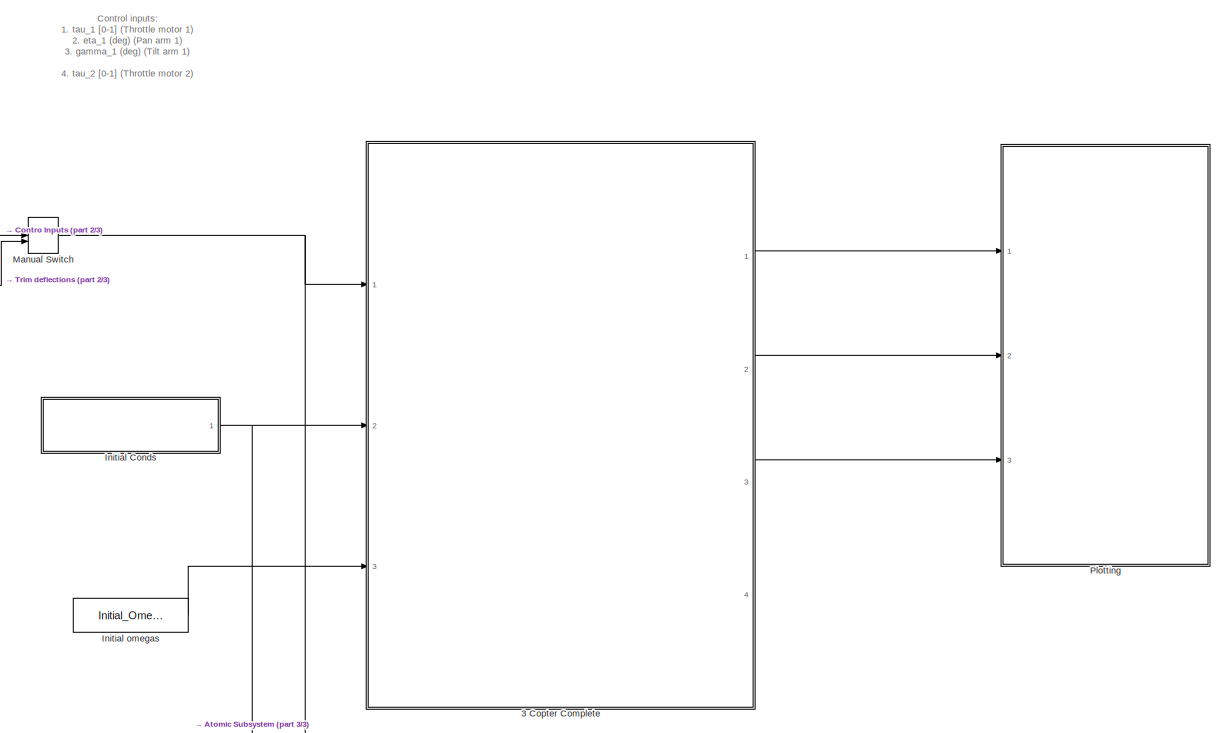
[diagram: root canvas - part 1/3, full width, top band]
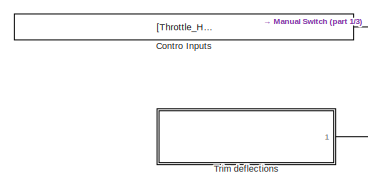
[diagram: root canvas - part 2/3, top left region]
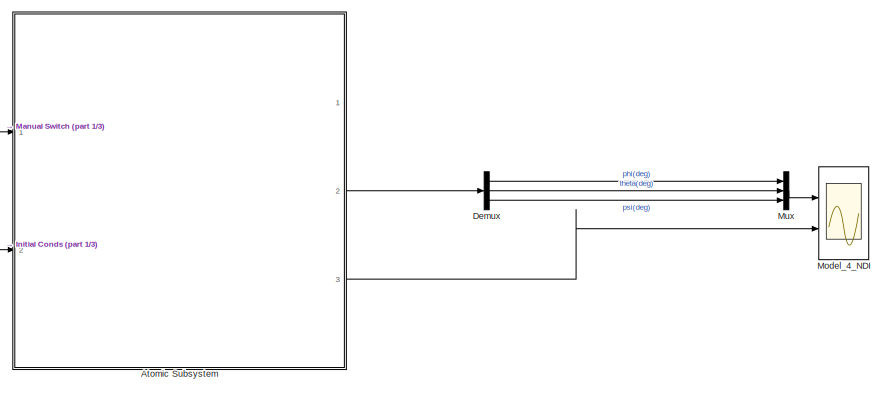
[diagram: root canvas - part 3/3, bottom right region]
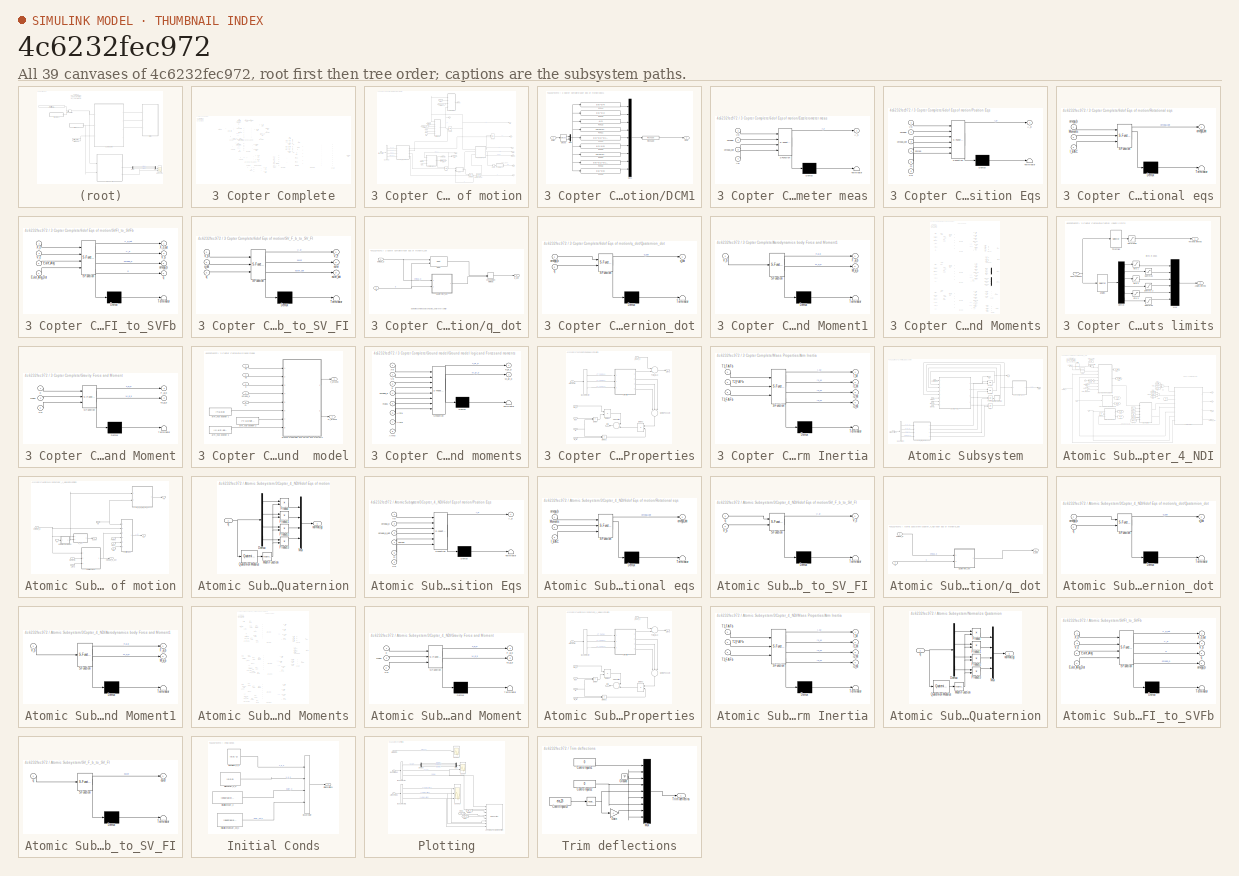
[diagram: thumbnail index - all 39 canvases of the model, root first then tree order]
MODEL slx_4c6232fec972
KIND model
CONFIG AbsTol = auto
CONFIG FixedStep = T_sim
CONFIG MaxStep = 0.01
CONFIG MinStep = auto
CONFIG RelTol = 1e-5
CONFIG SampleTimeConstraint = Unconstrained
CONFIG Solver = ode3
CONFIG SolverMode = Auto
CONFIG SolverName = ode3
CONFIG StartTime = 0.0
CONFIG StopTime = 10
BLOCK [SubSystem] 3 Copter Complete
  Ports = [3, 4]
  RequestExecContextInheritance = off
BLOCK [SubSystem] 3 Copter Complete/6dof Eqs of motion
  Ports = [6, 11]
  RequestExecContextInheritance = off
  TreatAsAtomicUnit = on
BLOCK [Outport] 3 Copter Complete/6dof Eqs of motion/Ab
  IconDisplay = Port number
  Port = 7
BLOCK [Outport] 3 Copter Complete/6dof Eqs of motion/Asensor
  IconDisplay = Port number
  Port = 11
BLOCK [BusSelector] 3 Copter Complete/6dof Eqs of motion/Bus Selector
  OutputSignals = X_e_0,V_e_0,Euler_0,Euler_dot_0
  Ports = [1, 4]
BLOCK [Inport] 3 Copter Complete/6dof Eqs of motion/CG
  IconDisplay = Port number
  Port = 5
BLOCK [Outport] 3 Copter Complete/6dof Eqs of motion/DCM
  IconDisplay = Port number
  Port = 8
BLOCK [SubSystem] 3 Copter Complete/6dof Eqs of motion/DCM1
  Ports = [1, 1]
  RequestExecContextInheritance = off
  TreatAsAtomicUnit = on
BLOCK [Outport] 3 Copter Complete/6dof Eqs of motion/DCM1/DCM
  IconDisplay = Port number
  PortDimensions = [3,3]
BLOCK [Inport] 3 Copter Complete/6dof Eqs of motion/DCM1/Euler
  IconDisplay = Port number
  PortDimensions = 3
BLOCK [Fcn] 3 Copter Complete/6dof Eqs of motion/DCM1/Fcn11
  Expr = u(5)*u(4)
BLOCK [Fcn] 3 Copter Complete/6dof Eqs of motion/DCM1/Fcn12
  Expr = u(5)*u(1)
BLOCK [Fcn] 3 Copter Complete/6dof Eqs of motion/DCM1/Fcn13
  Expr = -u(2)
BLOCK [Fcn] 3 Copter Complete/6dof Eqs of motion/DCM1/Fcn21
  Expr = u(3)*u(2)*u(4) - u(6)*u(1)
BLOCK [Fcn] 3 Copter Complete/6dof Eqs of motion/DCM1/Fcn22
  Expr = u(3)*u(2)*u(1) + u(6)*u(4)
BLOCK [Fcn] 3 Copter Complete/6dof Eqs of motion/DCM1/Fcn23
  Expr = u(3)*u(5)
BLOCK [Fcn] 3 Copter Complete/6dof Eqs of motion/DCM1/Fcn31
  Expr = u(6)*u(2)*u(4) + u(3)*u(1)
BLOCK [Fcn] 3 Copter Complete/6dof Eqs of motion/DCM1/Fcn32
  Expr = u(6)*u(2)*u(1) - u(3)*u(4)
BLOCK [Fcn] 3 Copter Complete/6dof Eqs of motion/DCM1/Fcn33
  Expr = u(6)*u(5)
BLOCK [Mux] 3 Copter Complete/6dof Eqs of motion/DCM1/Mux
  DisplayOption = bar
  Inputs = 2
  Ports = [2, 1]
BLOCK [Mux] 3 Copter Complete/6dof Eqs of motion/DCM1/Mux1
  DisplayOption = bar
  Inputs = 9
  Ports = [9, 1]
BLOCK [Reshape] 3 Copter Complete/6dof Eqs of motion/DCM1/Reshape
  OutputDimensionality = Customize
  OutputDimensions = [3,3]
  Ports = [1, 1]
BLOCK [Trigonometry] 3 Copter Complete/6dof Eqs of motion/DCM1/sincos
  Operator = sincos
  Ports = [1, 2]
BLOCK [SubSystem] 3 Copter Complete/6dof Eqs of motion/Eccelerometer meas
  ErrorFcn = Stateflow.Translate.translate
  PermitHierarchicalResolution = ExplicitOnly
  Ports = [4, 1]
  RequestExecContextInheritance = off
  SFBlockType = MATLAB Function
  TreatAsAtomicUnit = on
BLOCK [Demux] 3 Copter Complete/6dof Eqs of motion/Eccelerometer meas/ Demux 
  Outputs = 1
  Ports = [1, 1]
BLOCK [S-Function] 3 Copter Complete/6dof Eqs of motion/Eccelerometer meas/ SFunction 
  EnableBusSupport = on
  FunctionName = sf_sfun
  Parameters = r_sens
  PortCounts = [4 2]
  Ports = [4, 2]
  Tag = Stateflow S-Function TricopterModel 8
BLOCK [Terminator] 3 Copter Complete/6dof Eqs of motion/Eccelerometer meas/ Terminator 
BLOCK [Outport] 3 Copter Complete/6dof Eqs of motion/Eccelerometer meas/A_s
  IconDisplay = Port number
BLOCK [Inport] 3 Copter Complete/6dof Eqs of motion/Eccelerometer meas/Ab
  IconDisplay = Port number
  Port = 4
BLOCK [Inport] 3 Copter Complete/6dof Eqs of motion/Eccelerometer meas/Vb
  IconDisplay = Port number
BLOCK [Inport] 3 Copter Complete/6dof Eqs of motion/Eccelerometer meas/omega
  IconDisplay = Port number
  Port = 2
BLOCK [Inport] 3 Copter Complete/6dof Eqs of motion/Eccelerometer meas/omega_dot
  IconDisplay = Port number
  Port = 3
BLOCK [Inport] 3 Copter Complete/6dof Eqs of motion/Forces
  IconDisplay = Port number
BLOCK [From] 3 Copter Complete/6dof Eqs of motion/From
  GotoTag = omega
BLOCK [From] 3 Copter Complete/6dof Eqs of motion/From1
  GotoTag = omega_dot
BLOCK [From] 3 Copter Complete/6dof Eqs of motion/From2
  GotoTag = omega
BLOCK [From] 3 Copter Complete/6dof Eqs of motion/From3
  GotoTag = omega_dot
BLOCK [Goto] 3 Copter Complete/6dof Eqs of motion/Goto
  GotoTag = omega
BLOCK [Goto] 3 Copter Complete/6dof Eqs of motion/Goto1
  GotoTag = omega_dot
BLOCK [Inport] 3 Copter Complete/6dof Eqs of motion/I_BAC
  IconDisplay = Port number
  Port = 4
BLOCK [Inport] 3 Copter Complete/6dof Eqs of motion/Initial Conditions
  IconDisplay = Port number
  Port = 6
BLOCK [Inport] 3 Copter Complete/6dof Eqs of motion/Moments
  IconDisplay = Port number
  Port = 2
BLOCK [Reference] 3 Copter Complete/6dof Eqs of motion/Normalize 4D vector  REF=XXCopter/Normalize 4D vector
  Ports = [1, 1]
  SourceBlock = XXCopter/Normalize 4D vector
  SourceType = SubSystem
BLOCK [SubSystem] 3 Copter Complete/6dof Eqs of motion/Position Eqs
  ErrorFcn = Stateflow.Translate.translate
  PermitHierarchicalResolution = ExplicitOnly
  Ports = [6, 1]
  RequestExecContextInheritance = off
  SFBlockType = MATLAB Function
  TreatAsAtomicUnit = on
BLOCK [Demux] 3 Copter Complete/6dof Eqs of motion/Position Eqs/ Demux 
  Outputs = 1
  Ports = [1, 1]
BLOCK [S-Function] 3 Copter Complete/6dof Eqs of motion/Position Eqs/ SFunction 
  EnableBusSupport = on
  FunctionName = sf_sfun
  PortCounts = [6 2]
  Ports = [6, 2]
  Tag = Stateflow S-Function TricopterModel 1
BLOCK [Terminator] 3 Copter Complete/6dof Eqs of motion/Position Eqs/ Terminator 
BLOCK [Outport] 3 Copter Complete/6dof Eqs of motion/Position Eqs/A_b
  IconDisplay = Port number
BLOCK [Inport] 3 Copter Complete/6dof Eqs of motion/Position Eqs/CG
  IconDisplay = Port number
  Port = 6
BLOCK [Inport] 3 Copter Complete/6dof Eqs of motion/Position Eqs/Forces
  IconDisplay = Port number
  Port = 4
BLOCK [Inport] 3 Copter Complete/6dof Eqs of motion/Position Eqs/Vb
  IconDisplay = Port number
BLOCK [Inport] 3 Copter Complete/6dof Eqs of motion/Position Eqs/m
  IconDisplay = Port number
  Port = 5
BLOCK [Inport] 3 Copter Complete/6dof Eqs of motion/Position Eqs/omega
  IconDisplay = Port number
  Port = 2
BLOCK [Inport] 3 Copter Complete/6dof Eqs of motion/Position Eqs/omega_dot
  IconDisplay = Port number
  Port = 3
BLOCK [SubSystem] 3 Copter Complete/6dof Eqs of motion/Rotational eqs
  ErrorFcn = Stateflow.Translate.translate
  PermitHierarchicalResolution = ExplicitOnly
  Ports = [3, 1]
  RequestExecContextInheritance = off
  SFBlockType = MATLAB Function
  TreatAsAtomicUnit = on
BLOCK [Demux] 3 Copter Complete/6dof Eqs of motion/Rotational eqs/ Demux 
  Outputs = 1
  Ports = [1, 1]
BLOCK [S-Function] 3 Copter Complete/6dof Eqs of motion/Rotational eqs/ SFunction 
  EnableBusSupport = on
  FunctionName = sf_sfun
  PortCounts = [3 2]
  Ports = [3, 2]
  Tag = Stateflow S-Function TricopterModel 2
BLOCK [Terminator] 3 Copter Complete/6dof Eqs of motion/Rotational eqs/ Terminator 
BLOCK [Inport] 3 Copter Complete/6dof Eqs of motion/Rotational eqs/I_BAC
  IconDisplay = Port number
  Port = 3
BLOCK [Inport] 3 Copter Complete/6dof Eqs of motion/Rotational eqs/Moments
  IconDisplay = Port number
  Port = 2
BLOCK [Inport] 3 Copter Complete/6dof Eqs of motion/Rotational eqs/omega_b
  IconDisplay = Port number
BLOCK [Outport] 3 Copter Complete/6dof Eqs of motion/Rotational eqs/omega_dot
  IconDisplay = Port number
BLOCK [SubSystem] 3 Copter Complete/6dof Eqs of motion/SVFI_to_SVFb
  ErrorFcn = Stateflow.Translate.translate
  PermitHierarchicalResolution = ExplicitOnly
  Ports = [4, 4]
  RequestExecContextInheritance = off
  SFBlockType = MATLAB Function
  TreatAsAtomicUnit = on
BLOCK [Demux] 3 Copter Complete/6dof Eqs of motion/SVFI_to_SVFb/ Demux 
  Outputs = 1
  Ports = [1, 1]
BLOCK [S-Function] 3 Copter Complete/6dof Eqs of motion/SVFI_to_SVFb/ SFunction 
  EnableBusSupport = on
  FunctionName = sf_sfun
  PortCounts = [4 5]
  Ports = [4, 5]
  Tag = Stateflow S-Function TricopterModel 11
BLOCK [Terminator] 3 Copter Complete/6dof Eqs of motion/SVFI_to_SVFb/ Terminator 
BLOCK [Inport] 3 Copter Complete/6dof Eqs of motion/SVFI_to_SVFb/Euler_Ang
  IconDisplay = Port number
  Port = 3
BLOCK [Inport] 3 Copter Complete/6dof Eqs of motion/SVFI_to_SVFb/Euler_Ang_Dot
  IconDisplay = Port number
  Port = 4
BLOCK [Outport] 3 Copter Complete/6dof Eqs of motion/SVFI_to_SVFb/V_b
  IconDisplay = Port number
  Port = 2
BLOCK [Inport] 3 Copter Complete/6dof Eqs of motion/SVFI_to_SVFb/V_e
  IconDisplay = Port number
  Port = 2
BLOCK [Inport] 3 Copter Complete/6dof Eqs of motion/SVFI_to_SVFb/X_e
  IconDisplay = Port number
BLOCK [Outport] 3 Copter Complete/6dof Eqs of motion/SVFI_to_SVFb/X_e_out
  IconDisplay = Port number
BLOCK [Outport] 3 Copter Complete/6dof Eqs of motion/SVFI_to_SVFb/omega_b
  IconDisplay = Port number
  Port = 3
BLOCK [Outport] 3 Copter Complete/6dof Eqs of motion/SVFI_to_SVFb/q
  IconDisplay = Port number
  Port = 4
BLOCK [SubSystem] 3 Copter Complete/6dof Eqs of motion/SV_F_b_to_SV_FI
  ErrorFcn = Stateflow.Translate.translate
  PermitHierarchicalResolution = ExplicitOnly
  Ports = [3, 3]
  RequestExecContextInheritance = off
  SFBlockType = MATLAB Function
  TreatAsAtomicUnit = on
BLOCK [Demux] 3 Copter Complete/6dof Eqs of motion/SV_F_b_to_SV_FI/ Demux 
  Outputs = 1
  Ports = [1, 1]
BLOCK [S-Function] 3 Copter Complete/6dof Eqs of motion/SV_F_b_to_SV_FI/ SFunction 
  EnableBusSupport = on
  FunctionName = sf_sfun
  PortCounts = [3 4]
  Ports = [3, 4]
  Tag = Stateflow S-Function TricopterModel 12
BLOCK [Terminator] 3 Copter Complete/6dof Eqs of motion/SV_F_b_to_SV_FI/ Terminator 
BLOCK [Inport] 3 Copter Complete/6dof Eqs of motion/SV_F_b_to_SV_FI/V_b
  IconDisplay = Port number
BLOCK [Outport] 3 Copter Complete/6dof Eqs of motion/SV_F_b_to_SV_FI/V_e
  IconDisplay = Port number
BLOCK [Outport] 3 Copter Complete/6dof Eqs of motion/SV_F_b_to_SV_FI/euler
  IconDisplay = Port number
  Port = 2
BLOCK [Outport] 3 Copter Complete/6dof Eqs of motion/SV_F_b_to_SV_FI/euler_dot
  IconDisplay = Port number
  Port = 3
BLOCK [Inport] 3 Copter Complete/6dof Eqs of motion/SV_F_b_to_SV_FI/q
  IconDisplay = Port number
  Port = 3
BLOCK [Inport] 3 Copter Complete/6dof Eqs of motion/SV_F_b_to_SV_FI/q_dot
  IconDisplay = Port number
  Port = 2
BLOCK [Selector] 3 Copter Complete/6dof Eqs of motion/Selector7
  Indices = [3 2 1]
  InputPortWidth = 3
  Ports = [1, 1]
BLOCK [Outport] 3 Copter Complete/6dof Eqs of motion/Vb
  IconDisplay = Port number
  Port = 3
BLOCK [Outport] 3 Copter Complete/6dof Eqs of motion/Ve
  IconDisplay = Port number
  Port = 2
BLOCK [Outport] 3 Copter Complete/6dof Eqs of motion/Xe
  IconDisplay = Port number
BLOCK [Outport] 3 Copter Complete/6dof Eqs of motion/euler
  IconDisplay = Port number
  Port = 9
BLOCK [Outport] 3 Copter Complete/6dof Eqs of motion/euler_dot
  IconDisplay = Port number
  Port = 10
BLOCK [Inport] 3 Copter Complete/6dof Eqs of motion/mass
  IconDisplay = Port number
  Port = 3
BLOCK [Outport] 3 Copter Complete/6dof Eqs of motion/p,q,r
  IconDisplay = Port number
  Port = 4
BLOCK [Integrator] 3 Copter Complete/6dof Eqs of motion/p,q,r 
  InitialCondition = [P_0,Q_0,R_0]
  InitialConditionSource = external
  Ports = [2, 1]
BLOCK [Outport] 3 Copter Complete/6dof Eqs of motion/pdot,qdot,rdot
  IconDisplay = Port number
  Port = 6
BLOCK [Outport] 3 Copter Complete/6dof Eqs of motion/q
  IconDisplay = Port number
  Port = 5
BLOCK [SubSystem] 3 Copter Complete/6dof Eqs of motion/q_dot
  Ports = [2, 1]
  RequestExecContextInheritance = off
  TreatAsAtomicUnit = on
BLOCK [SubSystem] 3 Copter Complete/6dof Eqs of motion/q_dot/Quaternion_dot
  ErrorFcn = Stateflow.Translate.translate
  PermitHierarchicalResolution = ExplicitOnly
  Ports = [2, 1]
  RequestExecContextInheritance = off
  SFBlockType = MATLAB Function
  TreatAsAtomicUnit = on
  VariantControl = Variant
BLOCK [Demux] 3 Copter Complete/6dof Eqs of motion/q_dot/Quaternion_dot/ Demux 
  Outputs = 1
  Ports = [1, 1]
BLOCK [S-Function] 3 Copter Complete/6dof Eqs of motion/q_dot/Quaternion_dot/ SFunction 
  EnableBusSupport = on
  FunctionName = sf_sfun
  PortCounts = [2 2]
  Ports = [2, 2]
  Tag = Stateflow S-Function TricopterModel 3
BLOCK [Terminator] 3 Copter Complete/6dof Eqs of motion/q_dot/Quaternion_dot/ Terminator 
BLOCK [Inport] 3 Copter Complete/6dof Eqs of motion/q_dot/Quaternion_dot/omega_b
  IconDisplay = Port number
BLOCK [Inport] 3 Copter Complete/6dof Eqs of motion/q_dot/Quaternion_dot/q
  IconDisplay = Port number
  Port = 2
BLOCK [Outport] 3 Copter Complete/6dof Eqs of motion/q_dot/Quaternion_dot/q_dot
  IconDisplay = Port number
BLOCK [ManualSwitch] 3 Copter Complete/6dof Eqs of motion/q_dot/chose which method
  CurrentSetting = 0
BLOCK [Inport] 3 Copter Complete/6dof Eqs of motion/q_dot/omega_b
  IconDisplay = Port number
BLOCK [Inport] 3 Copter Complete/6dof Eqs of motion/q_dot/q
  IconDisplay = Port number
  Port = 2
BLOCK [Outport] 3 Copter Complete/6dof Eqs of motion/q_dot/q_dot
  IconDisplay = Port number
BLOCK [Reference] 3 Copter Complete/6dof Eqs of motion/q_dot/qdot  REF=aerolib6dofsys/DCM & Euler Angles (Quaternion)/qdot
  Commented = on
  Ports = [2, 1]
  SourceBlock = aerolib6dofsys/DCM & Euler Angles (Quaternion)/qdot
  SourceType = SubSystem
BLOCK [Integrator] 3 Copter Complete/6dof Eqs of motion/quaternion
  InitialCondition = [P_0,Q_0,R_0]
  InitialConditionSource = external
  Ports = [2, 1]
BLOCK [Integrator] 3 Copter Complete/6dof Eqs of motion/ub,vb,wb
  InitialCondition = [U_0,V_0,W_0]
  InitialConditionSource = external
  Ports = [2, 1]
BLOCK [Integrator] 3 Copter Complete/6dof Eqs of motion/xe,ye,ze
  InitialCondition = [NORTH_0,EAST_0,-DOWN_0]
  InitialConditionSource = external
  Ports = [2, 1]
BLOCK [Sum] 3 Copter Complete/Add
  InputSameDT = off
  Inputs = ++++
  OutDataTypeStr = Inherit: Inherit via internal rule
  Ports = [4, 1]
  SaturateOnIntegerOverflow = off
BLOCK [Sum] 3 Copter Complete/Add1
  InputSameDT = off
  Inputs = ++++
  OutDataTypeStr = Inherit: Inherit via internal rule
  Ports = [4, 1]
  SaturateOnIntegerOverflow = off
BLOCK [SubSystem] 3 Copter Complete/Aerodynamics body Force and Moment1
  ErrorFcn = Stateflow.Translate.translate
  PermitHierarchicalResolution = ExplicitOnly
  Ports = [1, 2]
  RequestExecContextInheritance = off
  SFBlockType = MATLAB Function
  TreatAsAtomicUnit = on
BLOCK [Demux] 3 Copter Complete/Aerodynamics body Force and Moment1/ Demux 
  Outputs = 1
  Ports = [1, 1]
BLOCK [S-Function] 3 Copter Complete/Aerodynamics body Force and Moment1/ SFunction 
  EnableBusSupport = on
  FunctionName = sf_sfun
  Parameters = A_x,A_y,A_z,C_x,C_y,C_z,rho
  PortCounts = [1 3]
  Ports = [1, 3]
  Tag = Stateflow S-Function TricopterModel 5
BLOCK [Terminator] 3 Copter Complete/Aerodynamics body Force and Moment1/ Terminator 
BLOCK [Outport] 3 Copter Complete/Aerodynamics body Force and Moment1/F_a_b
  IconDisplay = Port number
BLOCK [Outport] 3 Copter Complete/Aerodynamics body Force and Moment1/M_a_b
  IconDisplay = Port number
  Port = 2
BLOCK [Inport] 3 Copter Complete/Aerodynamics body Force and Moment1/V_b
  IconDisplay = Port number
BLOCK [Outport] 3 Copter Complete/Arms Angles (rad)
  IconDisplay = Port number
  Port = 3
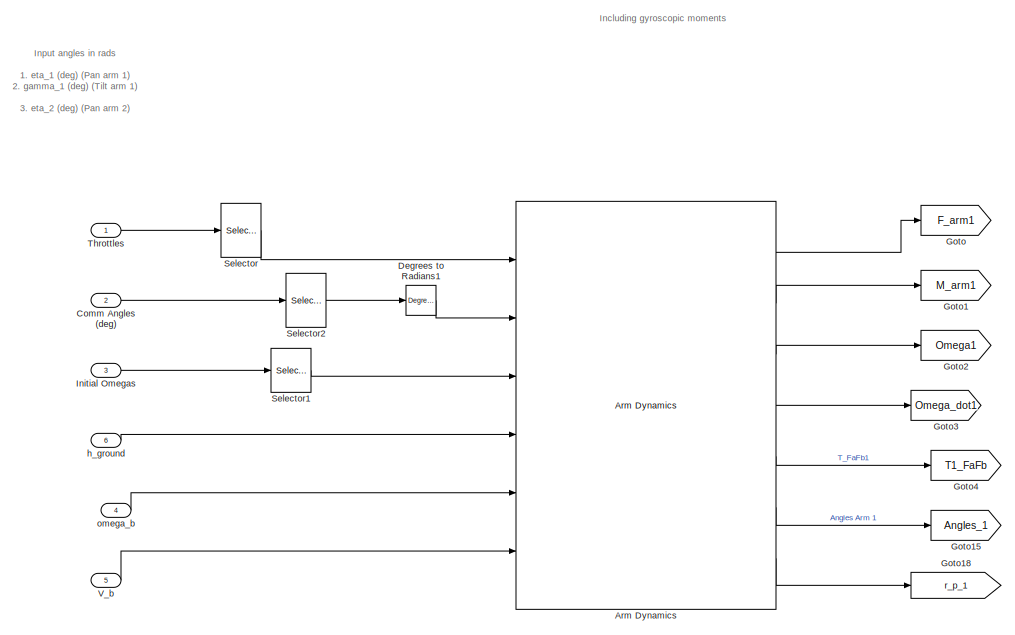
[diagram: 3 Copter Complete/Arms Dynamics: Forces and Moments - part 1/3, top center region]
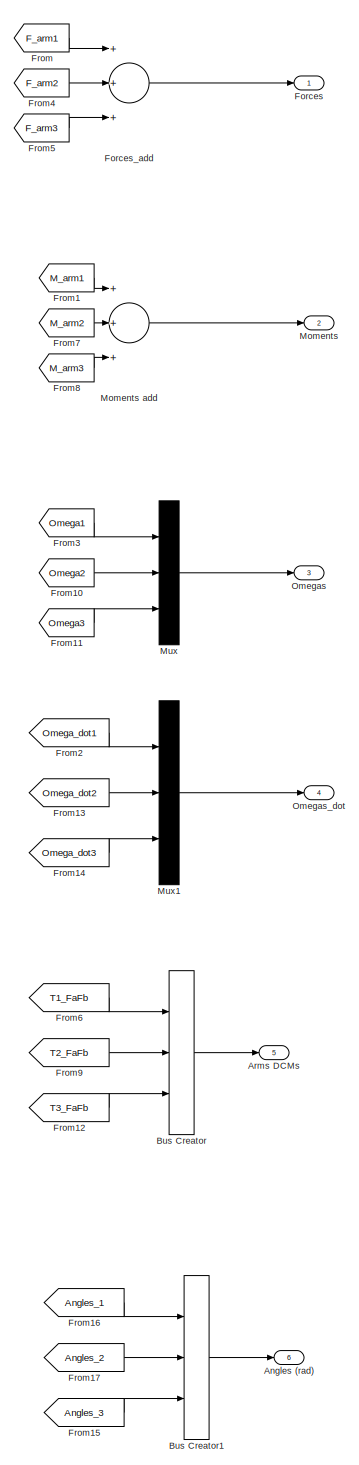
[diagram: 3 Copter Complete/Arms Dynamics: Forces and Moments - part 2/3, right side, full height]
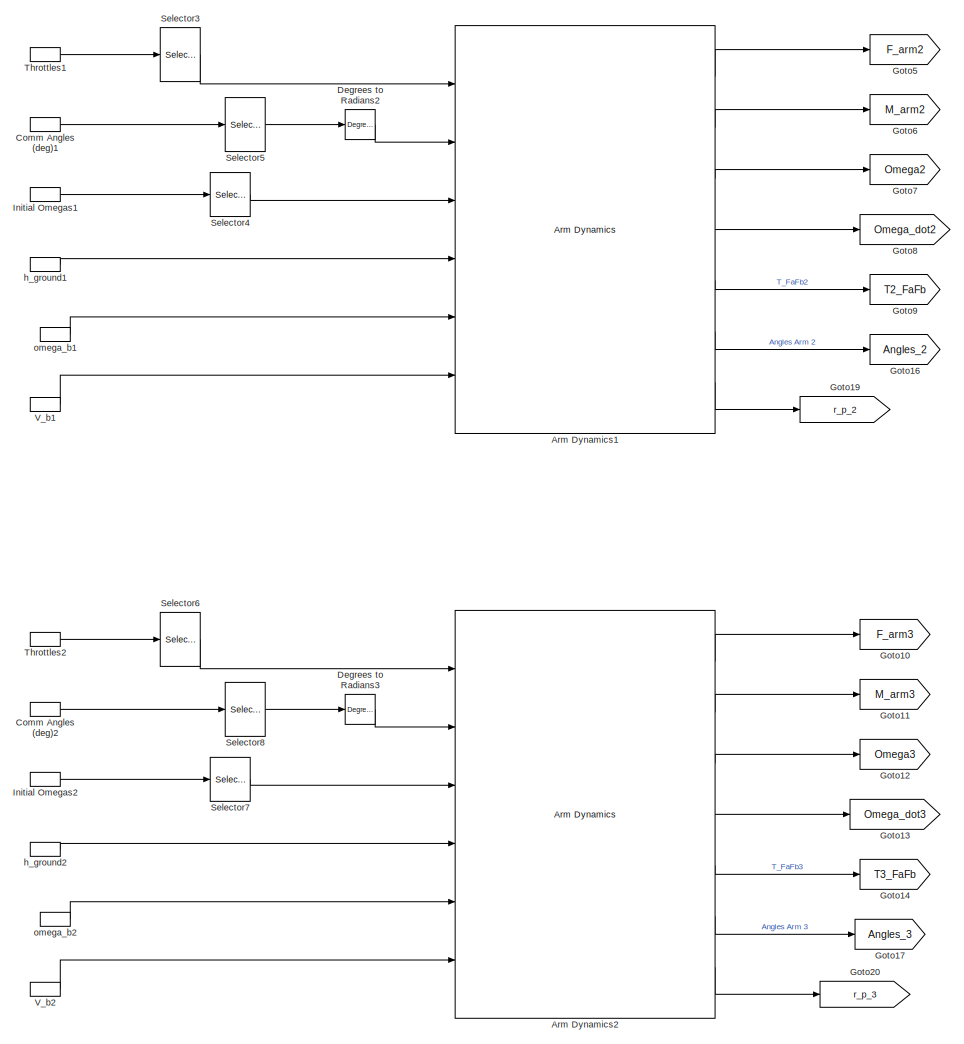
[diagram: 3 Copter Complete/Arms Dynamics: Forces and Moments - part 3/3, bottom center region]
BLOCK [SubSystem] 3 Copter Complete/Arms Dynamics: Forces and Moments
  Ports = [6, 6]
  RequestExecContextInheritance = off
BLOCK [Outport] 3 Copter Complete/Arms Dynamics: Forces and Moments/Angles (rad)
  IconDisplay = Port number
  Port = 6
BLOCK [Reference] 3 Copter Complete/Arms Dynamics: Forces and Moments/Arm Dynamics  REF=XXCopter/Arm Dynamics
  J_FA = J_FA
  J_T = J_T
  Omega_ini = Initial_Omegas(1)
  Ports = [6, 7]
  Rot_sign = Rotation_sign(1)
  SourceBlock = XXCopter/Arm Dynamics
  SourceType = Arm dynamics, kinematics, forces and moments
  Torq_ini = Initial_Torques(1)
  arm_axis = [l_arm;0;0]
  arm_hub_pos = l*[1;0;0]
  arm_num = 1
  c = 0
  eta_dir = [1;0;0]
  gamma_dir = [0;1;0]
  h = h
  init_eta = 0
  init_gamma = 0
  omega_n = 35
  tau = Tau_motors
  xi = 1.45
BLOCK [Reference] 3 Copter Complete/Arms Dynamics: Forces and Moments/Arm Dynamics1  REF=XXCopter/Arm Dynamics
  J_FA = J_FA
  J_T = J_T
  Omega_ini = Initial_Omegas(2)
  Ports = [6, 7]
  Rot_sign = Rotation_sign(2)
  SourceBlock = XXCopter/Arm Dynamics
  SourceType = Arm dynamics, kinematics, forces and moments
  Torq_ini = Initial_Torques(2)
  arm_axis = [0;l_arm;0]
  arm_hub_pos = l*[-1/2;sqrt(3)/2;0]
  arm_num = 2
  c = 0
  eta_dir = [0;1;0]
  gamma_dir = [1;0;0]
  h = h
  init_eta = 0
  init_gamma = 0
  omega_n = 35
  tau = Tau_motors
  xi = 1.45
BLOCK [Reference] 3 Copter Complete/Arms Dynamics: Forces and Moments/Arm Dynamics2  REF=XXCopter/Arm Dynamics
  J_FA = J_FA
  J_T = J_T
  Omega_ini = Initial_Omegas(3)
  Ports = [6, 7]
  Rot_sign = Rotation_sign(3)
  SourceBlock = XXCopter/Arm Dynamics
  SourceType = Arm dynamics, kinematics, forces and moments
  Torq_ini = Initial_Torques(3)
  arm_axis = [0;-l_arm;0]
  arm_hub_pos = l*[-1/2;-sqrt(3)/2;0]
  arm_num = 3
  c = 0
  eta_dir = [0;1;0]
  gamma_dir = [1;0;0]
  h = h
  init_eta = 0
  init_gamma = 0
  omega_n = 35
  tau = Tau_motors
  xi = 1.45
BLOCK [Outport] 3 Copter Complete/Arms Dynamics: Forces and Moments/Arms DCMs
  IconDisplay = Port number
  Port = 5
BLOCK [BusCreator] 3 Copter Complete/Arms Dynamics: Forces and Moments/Bus Creator
  DisplayOption = bar
  Inputs = 3
  Ports = [3, 1]
BLOCK [BusCreator] 3 Copter Complete/Arms Dynamics: Forces and Moments/Bus Creator1
  DisplayOption = bar
  Inputs = 3
  Ports = [3, 1]
BLOCK [Inport] 3 Copter Complete/Arms Dynamics: Forces and Moments/Comm Angles (deg)
  IconDisplay = Port number
  Port = 2
BLOCK [InportShadow] 3 Copter Complete/Arms Dynamics: Forces and Moments/Comm Angles (deg)1
  IconDisplay = Port number
  Port = 2
BLOCK [InportShadow] 3 Copter Complete/Arms Dynamics: Forces and Moments/Comm Angles (deg)2
  IconDisplay = Port number
  Port = 2
BLOCK [Reference] 3 Copter Complete/Arms Dynamics: Forces and Moments/Degrees to Radians1  REF=simulink_extras/Transformations/Degrees to
Radians
  Ports = [1, 1]
  SourceBlock = simulink_extras/Transformations/Degrees to\nRadians
  SourceType = DegreesToRadians
BLOCK [Reference] 3 Copter Complete/Arms Dynamics: Forces and Moments/Degrees to Radians2  REF=simulink_extras/Transformations/Degrees to
Radians
  Ports = [1, 1]
  SourceBlock = simulink_extras/Transformations/Degrees to\nRadians
  SourceType = DegreesToRadians
BLOCK [Reference] 3 Copter Complete/Arms Dynamics: Forces and Moments/Degrees to Radians3  REF=simulink_extras/Transformations/Degrees to
Radians
  Ports = [1, 1]
  SourceBlock = simulink_extras/Transformations/Degrees to\nRadians
  SourceType = DegreesToRadians
BLOCK [Outport] 3 Copter Complete/Arms Dynamics: Forces and Moments/Forces
  IconDisplay = Port number
BLOCK [Sum] 3 Copter Complete/Arms Dynamics: Forces and Moments/Forces_add
  InputSameDT = off
  Inputs = +++
  OutDataTypeStr = Inherit: Inherit via internal rule
  Ports = [3, 1]
  SaturateOnIntegerOverflow = off
BLOCK [From] 3 Copter Complete/Arms Dynamics: Forces and Moments/From
  GotoTag = F_arm1
BLOCK [From] 3 Copter Complete/Arms Dynamics: Forces and Moments/From1
  GotoTag = M_arm1
BLOCK [From] 3 Copter Complete/Arms Dynamics: Forces and Moments/From10
  GotoTag = Omega2
BLOCK [From] 3 Copter Complete/Arms Dynamics: Forces and Moments/From11
  GotoTag = Omega3
BLOCK [From] 3 Copter Complete/Arms Dynamics: Forces and Moments/From12
  GotoTag = T3_FaFb
BLOCK [From] 3 Copter Complete/Arms Dynamics: Forces and Moments/From13
  GotoTag = Omega_dot2
BLOCK [From] 3 Copter Complete/Arms Dynamics: Forces and Moments/From14
  GotoTag = Omega_dot3
BLOCK [From] 3 Copter Complete/Arms Dynamics: Forces and Moments/From15
  GotoTag = Angles_3
BLOCK [From] 3 Copter Complete/Arms Dynamics: Forces and Moments/From16
  GotoTag = Angles_1
BLOCK [From] 3 Copter Complete/Arms Dynamics: Forces and Moments/From17
  GotoTag = Angles_2
BLOCK [From] 3 Copter Complete/Arms Dynamics: Forces and Moments/From2
  GotoTag = Omega_dot1
BLOCK [From] 3 Copter Complete/Arms Dynamics: Forces and Moments/From3
  GotoTag = Omega1
BLOCK [From] 3 Copter Complete/Arms Dynamics: Forces and Moments/From4
  GotoTag = F_arm2
BLOCK [From] 3 Copter Complete/Arms Dynamics: Forces and Moments/From5
  GotoTag = F_arm3
BLOCK [From] 3 Copter Complete/Arms Dynamics: Forces and Moments/From6
  GotoTag = T1_FaFb
BLOCK [From] 3 Copter Complete/Arms Dynamics: Forces and Moments/From7
  GotoTag = M_arm2
BLOCK [From] 3 Copter Complete/Arms Dynamics: Forces and Moments/From8
  GotoTag = M_arm3
BLOCK [From] 3 Copter Complete/Arms Dynamics: Forces and Moments/From9
  GotoTag = T2_FaFb
BLOCK [Goto] 3 Copter Complete/Arms Dynamics: Forces and Moments/Goto
  GotoTag = F_arm1
BLOCK [Goto] 3 Copter Complete/Arms Dynamics: Forces and Moments/Goto1
  GotoTag = M_arm1
BLOCK [Goto] 3 Copter Complete/Arms Dynamics: Forces and Moments/Goto10
  GotoTag = F_arm3
BLOCK [Goto] 3 Copter Complete/Arms Dynamics: Forces and Moments/Goto11
  GotoTag = M_arm3
BLOCK [Goto] 3 Copter Complete/Arms Dynamics: Forces and Moments/Goto12
  GotoTag = Omega3
BLOCK [Goto] 3 Copter Complete/Arms Dynamics: Forces and Moments/Goto13
  GotoTag = Omega_dot3
BLOCK [Goto] 3 Copter Complete/Arms Dynamics: Forces and Moments/Goto14
  GotoTag = T3_FaFb
BLOCK [Goto] 3 Copter Complete/Arms Dynamics: Forces and Moments/Goto15
  GotoTag = Angles_1
BLOCK [Goto] 3 Copter Complete/Arms Dynamics: Forces and Moments/Goto16
  GotoTag = Angles_2
BLOCK [Goto] 3 Copter Complete/Arms Dynamics: Forces and Moments/Goto17
  GotoTag = Angles_3
BLOCK [Goto] 3 Copter Complete/Arms Dynamics: Forces and Moments/Goto18
  GotoTag = r_p_1
  TagVisibility = global
BLOCK [Goto] 3 Copter Complete/Arms Dynamics: Forces and Moments/Goto19
  GotoTag = r_p_2
  TagVisibility = global
BLOCK [Goto] 3 Copter Complete/Arms Dynamics: Forces and Moments/Goto2
  GotoTag = Omega1
BLOCK [Goto] 3 Copter Complete/Arms Dynamics: Forces and Moments/Goto20
  GotoTag = r_p_3
  TagVisibility = global
BLOCK [Goto] 3 Copter Complete/Arms Dynamics: Forces and Moments/Goto3
  GotoTag = Omega_dot1
BLOCK [Goto] 3 Copter Complete/Arms Dynamics: Forces and Moments/Goto4
  GotoTag = T1_FaFb
BLOCK [Goto] 3 Copter Complete/Arms Dynamics: Forces and Moments/Goto5
  GotoTag = F_arm2
BLOCK [Goto] 3 Copter Complete/Arms Dynamics: Forces and Moments/Goto6
  GotoTag = M_arm2
BLOCK [Goto] 3 Copter Complete/Arms Dynamics: Forces and Moments/Goto7
  GotoTag = Omega2
BLOCK [Goto] 3 Copter Complete/Arms Dynamics: Forces and Moments/Goto8
  GotoTag = Omega_dot2
BLOCK [Goto] 3 Copter Complete/Arms Dynamics: Forces and Moments/Goto9
  GotoTag = T2_FaFb
BLOCK [Inport] 3 Copter Complete/Arms Dynamics: Forces and Moments/Initial Omegas
  IconDisplay = Port number
  Port = 3
BLOCK [InportShadow] 3 Copter Complete/Arms Dynamics: Forces and Moments/Initial Omegas1
  IconDisplay = Port number
  Port = 3
BLOCK [InportShadow] 3 Copter Complete/Arms Dynamics: Forces and Moments/Initial Omegas2
  IconDisplay = Port number
  Port = 3
BLOCK [Outport] 3 Copter Complete/Arms Dynamics: Forces and Moments/Moments
  IconDisplay = Port number
  Port = 2
BLOCK [Sum] 3 Copter Complete/Arms Dynamics: Forces and Moments/Moments add
  InputSameDT = off
  Inputs = +++
  OutDataTypeStr = Inherit: Inherit via internal rule
  Ports = [3, 1]
  SaturateOnIntegerOverflow = off
BLOCK [Mux] 3 Copter Complete/Arms Dynamics: Forces and Moments/Mux
  DisplayOption = bar
  Inputs = 3
  Ports = [3, 1]
BLOCK [Mux] 3 Copter Complete/Arms Dynamics: Forces and Moments/Mux1
  DisplayOption = bar
  Inputs = 3
  Ports = [3, 1]
BLOCK [Outport] 3 Copter Complete/Arms Dynamics: Forces and Moments/Omegas
  IconDisplay = Port number
  Port = 3
BLOCK [Outport] 3 Copter Complete/Arms Dynamics: Forces and Moments/Omegas_dot
  IconDisplay = Port number
  Port = 4
BLOCK [Selector] 3 Copter Complete/Arms Dynamics: Forces and Moments/Selector
  Indices = [1]
  InputPortWidth = 3
  Ports = [1, 1]
BLOCK [Selector] 3 Copter Complete/Arms Dynamics: Forces and Moments/Selector1
  Indices = [1]
  InputPortWidth = 3
  Ports = [1, 1]
BLOCK [Selector] 3 Copter Complete/Arms Dynamics: Forces and Moments/Selector2
  Indices = [1,2]
  InputPortWidth = 6
  Ports = [1, 1]
BLOCK [Selector] 3 Copter Complete/Arms Dynamics: Forces and Moments/Selector3
  Indices = 2
  InputPortWidth = 3
  Ports = [1, 1]
BLOCK [Selector] 3 Copter Complete/Arms Dynamics: Forces and Moments/Selector4
  Indices = 2
  InputPortWidth = 3
  Ports = [1, 1]
BLOCK [Selector] 3 Copter Complete/Arms Dynamics: Forces and Moments/Selector5
  Indices = [3,4]
  InputPortWidth = 6
  Ports = [1, 1]
BLOCK [Selector] 3 Copter Complete/Arms Dynamics: Forces and Moments/Selector6
  Indices = 3
  InputPortWidth = 3
  Ports = [1, 1]
BLOCK [Selector] 3 Copter Complete/Arms Dynamics: Forces and Moments/Selector7
  Indices = 3
  InputPortWidth = 3
  Ports = [1, 1]
BLOCK [Selector] 3 Copter Complete/Arms Dynamics: Forces and Moments/Selector8
  Indices = [5,6]
  InputPortWidth = 6
  Ports = [1, 1]
BLOCK [Inport] 3 Copter Complete/Arms Dynamics: Forces and Moments/Throttles
  IconDisplay = Port number
BLOCK [InportShadow] 3 Copter Complete/Arms Dynamics: Forces and Moments/Throttles1
  IconDisplay = Port number
BLOCK [InportShadow] 3 Copter Complete/Arms Dynamics: Forces and Moments/Throttles2
  IconDisplay = Port number
BLOCK [Inport] 3 Copter Complete/Arms Dynamics: Forces and Moments/V_b
  IconDisplay = Port number
  Port = 5
BLOCK [InportShadow] 3 Copter Complete/Arms Dynamics: Forces and Moments/V_b1
  IconDisplay = Port number
  Port = 5
BLOCK [InportShadow] 3 Copter Complete/Arms Dynamics: Forces and Moments/V_b2
  IconDisplay = Port number
  Port = 5
BLOCK [Inport] 3 Copter Complete/Arms Dynamics: Forces and Moments/h_ground
  IconDisplay = Port number
  Port = 6
BLOCK [InportShadow] 3 Copter Complete/Arms Dynamics: Forces and Moments/h_ground1
  IconDisplay = Port number
  Port = 6
BLOCK [InportShadow] 3 Copter Complete/Arms Dynamics: Forces and Moments/h_ground2
  IconDisplay = Port number
  Port = 6
BLOCK [Inport] 3 Copter Complete/Arms Dynamics: Forces and Moments/omega_b
  IconDisplay = Port number
  Port = 4
BLOCK [InportShadow] 3 Copter Complete/Arms Dynamics: Forces and Moments/omega_b1
  IconDisplay = Port number
  Port = 4
BLOCK [InportShadow] 3 Copter Complete/Arms Dynamics: Forces and Moments/omega_b2
  IconDisplay = Port number
  Port = 4
BLOCK [Bias] 3 Copter Complete/Bias from bottom to BAC assuming euler=1
  Bias = [0;0;0.04]
  SaturateOnIntegerOverflow = off
BLOCK [Bias] 3 Copter Complete/Bias from bottom to prop assuming euler=0
  Bias = 0.04+h
  SaturateOnIntegerOverflow = off
BLOCK [BusCreator] 3 Copter Complete/Bus Creator
  DisplayOption = bar
  Inputs = 11
  Ports = [11, 1]
BLOCK [BusSelector] 3 Copter Complete/Bus Selector
  OutputSignals = q
  Ports = [1, 1]
BLOCK [BusSelector] 3 Copter Complete/Bus Selector1
  OutputSignals = V_b
  Ports = [1, 1]
BLOCK [BusSelector] 3 Copter Complete/Bus Selector2
  OutputSignals = omega_b,V_b,X_e
  Ports = [1, 3]
BLOCK [BusSelector] 3 Copter Complete/Bus Selector3
  OutputSignals = X_e,V_b,q,omega_b
  Ports = [1, 4]
BLOCK [Constant] 3 Copter Complete/CG
  Value = CG_0
BLOCK [SubSystem] 3 Copter Complete/Contorl Inputs limits
  Ports = [1, 2]
  RequestExecContextInheritance = off
  TreatAsAtomicUnit = on
BLOCK [Outport] 3 Copter Complete/Contorl Inputs limits/Angles limited
  IconDisplay = Port number
  Port = 2
BLOCK [Inport] 3 Copter Complete/Contorl Inputs limits/Control inputs
  IconDisplay = Port number
BLOCK [Demux] 3 Copter Complete/Contorl Inputs limits/Demux
  DisplayOption = bar
  Outputs = 6
  Ports = [1, 6]
BLOCK [Mux] 3 Copter Complete/Contorl Inputs limits/Mux
  DisplayOption = bar
  Inputs = 6
  Ports = [6, 1]
BLOCK [Saturate] 3 Copter Complete/Contorl Inputs limits/Saturation
  InputPortMap = u0
  LowerLimit = 0
  Ports = [1, 1]
  UpperLimit = 1
BLOCK [Outport] 3 Copter Complete/Contorl Inputs limits/Throtles limited
  IconDisplay = Port number
BLOCK [Selector] 3 Copter Complete/Contorl Inputs limits/Throttles
  Indices = [1,4,7]
  InputPortWidth = 9
  Ports = [1, 1]
BLOCK [Selector] 3 Copter Complete/Contorl Inputs limits/angles 
  Indices = [2,3,5,6,8,9]
  InputPortWidth = 9
  Ports = [1, 1]
BLOCK [Saturate] 3 Copter Complete/Contorl Inputs limits/eta 1
  InputPortMap = u0
  LowerLimit = -180
  Ports = [1, 1]
  UpperLimit = 180
BLOCK [Saturate] 3 Copter Complete/Contorl Inputs limits/eta 2
  InputPortMap = u0
  LowerLimit = -180
  Ports = [1, 1]
  UpperLimit = 180
BLOCK [Saturate] 3 Copter Complete/Contorl Inputs limits/eta 3
  InputPortMap = u0
  LowerLimit = -180
  Ports = [1, 1]
  UpperLimit = 180
BLOCK [Saturate] 3 Copter Complete/Contorl Inputs limits/gamma 2
  InputPortMap = u0
  LowerLimit = -30
  Ports = [1, 1]
  UpperLimit = 90
BLOCK [Saturate] 3 Copter Complete/Contorl Inputs limits/gamma1
  InputPortMap = u0
  LowerLimit = -90
  Ports = [1, 1]
  UpperLimit = 30
BLOCK [Saturate] 3 Copter Complete/Contorl Inputs limits/gamma3
  InputPortMap = u0
  LowerLimit = -90
  Ports = [1, 1]
  UpperLimit = 30
BLOCK [Inport] 3 Copter Complete/Control Inputs
  IconDisplay = Port number
BLOCK [Constant] 3 Copter Complete/Current batrery level (V)
  Value = 14.8
BLOCK [Product] 3 Copter Complete/Equivalent ESC signals
  InputSameDT = off
  Inputs = /*
  OutDataTypeStr = Inherit: Inherit via internal rule
  Ports = [2, 1]
  RndMeth = Floor
  SaturateOnIntegerOverflow = off
BLOCK [Product] 3 Copter Complete/Equivalent Throttle
  InputSameDT = off
  Inputs = **
  OutDataTypeStr = Inherit: Inherit via internal rule
  Ports = [2, 1]
  RndMeth = Floor
  SaturateOnIntegerOverflow = off
BLOCK [Outport] 3 Copter Complete/EquivalentESC throtle
  IconDisplay = Port number
  Port = 4
BLOCK [From] 3 Copter Complete/From1
  GotoTag = F_ground
BLOCK [From] 3 Copter Complete/From2
  GotoTag = F_arm
BLOCK [From] 3 Copter Complete/From3
  GotoTag = F_air
BLOCK [From] 3 Copter Complete/From4
  GotoTag = F_g
BLOCK [From] 3 Copter Complete/From5
  GotoTag = M_arm
BLOCK [From] 3 Copter Complete/From6
  GotoTag = M_air
BLOCK [From] 3 Copter Complete/From7
  GotoTag = M_g
BLOCK [From] 3 Copter Complete/From8
  GotoTag = M_ground
BLOCK [Gain] 3 Copter Complete/Gain
  Gain = -1
  OutDataTypeStr = Inherit: Inherit via internal rule
  ParamDataTypeStr = Inherit: Inherit via internal rule
  SaturateOnIntegerOverflow = off
BLOCK [Outport] 3 Copter Complete/General State Vector
  IconDisplay = Port number
  Port = 2
BLOCK [Goto] 3 Copter Complete/Goto
  GotoTag = Omegas
BLOCK [Goto] 3 Copter Complete/Goto1
  GotoTag = Omegas_dot
BLOCK [Goto] 3 Copter Complete/Goto2
  GotoTag = F_arm
BLOCK [Goto] 3 Copter Complete/Goto3
  GotoTag = M_arm
BLOCK [Goto] 3 Copter Complete/Goto4
  GotoTag = F_air
BLOCK [Goto] 3 Copter Complete/Goto5
  GotoTag = M_air
BLOCK [Goto] 3 Copter Complete/Goto6
  GotoTag = F_g
BLOCK [Goto] 3 Copter Complete/Goto7
  GotoTag = M_g
BLOCK [Goto] 3 Copter Complete/Goto8
  GotoTag = F_ground
BLOCK [Goto] 3 Copter Complete/Goto9
  GotoTag = M_ground
BLOCK [SubSystem] 3 Copter Complete/Gravity Force and Moment
  ErrorFcn = Stateflow.Translate.translate
  PermitHierarchicalResolution = ExplicitOnly
  Ports = [3, 2]
  RequestExecContextInheritance = off
  SFBlockType = MATLAB Function
  TreatAsAtomicUnit = on
BLOCK [Demux] 3 Copter Complete/Gravity Force and Moment/ Demux 
  Outputs = 1
  Ports = [1, 1]
BLOCK [S-Function] 3 Copter Complete/Gravity Force and Moment/ SFunction 
  EnableBusSupport = on
  FunctionName = sf_sfun
  Parameters = g
  PortCounts = [3 3]
  Ports = [3, 3]
  Tag = Stateflow S-Function TricopterModel 4
BLOCK [Terminator] 3 Copter Complete/Gravity Force and Moment/ Terminator 
BLOCK [Inport] 3 Copter Complete/Gravity Force and Moment/CG
  IconDisplay = Port number
  Port = 3
BLOCK [Outport] 3 Copter Complete/Gravity Force and Moment/F_g_b
  IconDisplay = Port number
BLOCK [Outport] 3 Copter Complete/Gravity Force and Moment/M_g_b
  IconDisplay = Port number
  Port = 2
BLOCK [Inport] 3 Copter Complete/Gravity Force and Moment/mass
  IconDisplay = Port number
  Port = 2
BLOCK [Inport] 3 Copter Complete/Gravity Force and Moment/q
  IconDisplay = Port number
BLOCK [SubSystem] 3 Copter Complete/Ground  model
  Ports = [5, 2]
  RequestExecContextInheritance = off
  TreatAsAtomicUnit = on
BLOCK [Outport] 3 Copter Complete/Ground  model/F_ground
  IconDisplay = Port number
BLOCK [SubSystem] 3 Copter Complete/Ground  model/Ground model logic and Forces and moments
  ErrorFcn = Stateflow.Translate.translate
  PermitHierarchicalResolution = ExplicitOnly
  Ports = [8, 2]
  RequestExecContextInheritance = off
  SFBlockType = MATLAB Function
  TreatAsAtomicUnit = on
BLOCK [Demux] 3 Copter Complete/Ground  model/Ground model logic and Forces and moments/ Demux 
  Outputs = 1
  Ports = [1, 1]
BLOCK [S-Function] 3 Copter Complete/Ground  model/Ground model logic and Forces and moments/ SFunction 
  EnableBusSupport = on
  FunctionName = sf_sfun
  Parameters = g
  PortCounts = [8 3]
  Ports = [8, 3]
  Tag = Stateflow S-Function TricopterModel 9
BLOCK [Terminator] 3 Copter Complete/Ground  model/Ground model logic and Forces and moments/ Terminator 
BLOCK [Inport] 3 Copter Complete/Ground  model/Ground model logic and Forces and moments/Arm1
  IconDisplay = Port number
  Port = 6
BLOCK [Inport] 3 Copter Complete/Ground  model/Ground model logic and Forces and moments/Arm2
  IconDisplay = Port number
  Port = 7
BLOCK [Inport] 3 Copter Complete/Ground  model/Ground model logic and Forces and moments/Arm3
  IconDisplay = Port number
  Port = 8
BLOCK [Outport] 3 Copter Complete/Ground  model/Ground model logic and Forces and moments/F_gr_b
  IconDisplay = Port number
BLOCK [Outport] 3 Copter Complete/Ground  model/Ground model logic and Forces and moments/M_gr_b
  IconDisplay = Port number
  Port = 2
BLOCK [Inport] 3 Copter Complete/Ground  model/Ground model logic and Forces and moments/Vb
  IconDisplay = Port number
  Port = 2
BLOCK [Inport] 3 Copter Complete/Ground  model/Ground model logic and Forces and moments/Xe
  IconDisplay = Port number
BLOCK [Inport] 3 Copter Complete/Ground  model/Ground model logic and Forces and moments/mass
  IconDisplay = Port number
  Port = 5
BLOCK [Inport] 3 Copter Complete/Ground  model/Ground model logic and Forces and moments/omega_b
  IconDisplay = Port number
  Port = 4
BLOCK [Inport] 3 Copter Complete/Ground  model/Ground model logic and Forces and moments/q
  IconDisplay = Port number
  Port = 3
BLOCK [Outport] 3 Copter Complete/Ground  model/M_ground
  IconDisplay = Port number
  Port = 2
BLOCK [Inport] 3 Copter Complete/Ground  model/Vb
  IconDisplay = Port number
  Port = 2
BLOCK [Inport] 3 Copter Complete/Ground  model/Xe
  IconDisplay = Port number
BLOCK [Constant] 3 Copter Complete/Ground  model/arm_hub position 1
  Value = l*[1;0;0]
BLOCK [Constant] 3 Copter Complete/Ground  model/arm_hub position 2
  Value = l*[-1/2;sqrt(3)/2;0]
BLOCK [Constant] 3 Copter Complete/Ground  model/arm_hub position 3
  Value = l*[-1/2;-sqrt(3)/2;0]
BLOCK [Inport] 3 Copter Complete/Ground  model/m
  IconDisplay = Port number
  Port = 5
BLOCK [Inport] 3 Copter Complete/Ground  model/omega_b
  IconDisplay = Port number
  Port = 4
BLOCK [Inport] 3 Copter Complete/Ground  model/q
  IconDisplay = Port number
  Port = 3
BLOCK [Constant] 3 Copter Complete/I_BAC_0
  Value = I_BAC_0
BLOCK [Inport] 3 Copter Complete/Initial Conditions
  IconDisplay = Port number
  Port = 2
BLOCK [Inport] 3 Copter Complete/Initial Omegas
  IconDisplay = Port number
  Port = 3
BLOCK [Constant] 3 Copter Complete/Mass
  Value = m
BLOCK [SubSystem] 3 Copter Complete/Mass Properties
  Ports = [6, 2]
  RequestExecContextInheritance = off
  TreatAsAtomicUnit = on
BLOCK [SubSystem] 3 Copter Complete/Mass Properties/Arm Inertia
  ErrorFcn = Stateflow.Translate.translate
  PermitHierarchicalResolution = ExplicitOnly
  Ports = [3, 4]
  RequestExecContextInheritance = off
  SFBlockType = MATLAB Function
  TreatAsAtomicUnit = on
BLOCK [Demux] 3 Copter Complete/Mass Properties/Arm Inertia/ Demux 
  Outputs = 1
  Ports = [1, 1]
BLOCK [S-Function] 3 Copter Complete/Mass Properties/Arm Inertia/ SFunction 
  EnableBusSupport = on
  FunctionName = sf_sfun
  Parameters = h_M,l,m_M
  PortCounts = [3 5]
  Ports = [3, 5]
  Tag = Stateflow S-Function TricopterModel 13
BLOCK [Terminator] 3 Copter Complete/Mass Properties/Arm Inertia/ Terminator 
BLOCK [Outport] 3 Copter Complete/Mass Properties/Arm Inertia/I_M
  IconDisplay = Port number
BLOCK [Inport] 3 Copter Complete/Mass Properties/Arm Inertia/T1_FAFb
  IconDisplay = Port number
BLOCK [Inport] 3 Copter Complete/Mass Properties/Arm Inertia/T2_FAFb
  IconDisplay = Port number
  Port = 2
BLOCK [Inport] 3 Copter Complete/Mass Properties/Arm Inertia/T3_FAFb
  IconDisplay = Port number
  Port = 3
BLOCK [Outport] 3 Copter Complete/Mass Properties/Arm Inertia/r1_M
  IconDisplay = Port number
  Port = 2
BLOCK [Outport] 3 Copter Complete/Mass Properties/Arm Inertia/r2_M
  IconDisplay = Port number
  Port = 3
BLOCK [Outport] 3 Copter Complete/Mass Properties/Arm Inertia/r3_M
  IconDisplay = Port number
  Port = 4
BLOCK [Inport] 3 Copter Complete/Mass Properties/Arms DCMs
  IconDisplay = Port number
BLOCK [BusSelector] 3 Copter Complete/Mass Properties/Bus Selector
  OutputSignals = T_FaFb1,T_FaFb2,T_FaFb3
  Ports = [1, 3]
BLOCK [Outport] 3 Copter Complete/Mass Properties/CG
  IconDisplay = Port number
  Port = 2
BLOCK [Sum] 3 Copter Complete/Mass Properties/CG position
  InputSameDT = off
  OutDataTypeStr = Inherit: Inherit via internal rule
  Ports = [2, 1]
  SaturateOnIntegerOverflow = off
BLOCK [Inport] 3 Copter Complete/Mass Properties/CG_0
  IconDisplay = Port number
  Port = 2
BLOCK [Product] 3 Copter Complete/Mass Properties/Divide
  InputSameDT = off
  Inputs = */
  OutDataTypeStr = Inherit: Inherit via internal rule
  Ports = [2, 1]
  RndMeth = Floor
  SaturateOnIntegerOverflow = off
BLOCK [Product] 3 Copter Complete/Mass Properties/Divide1
  InputSameDT = off
  Inputs = **
  OutDataTypeStr = Inherit: Inherit via internal rule
  Ports = [2, 1]
  RndMeth = Floor
  SaturateOnIntegerOverflow = off
BLOCK [Product] 3 Copter Complete/Mass Properties/Divide2
  InputSameDT = off
  Inputs = /*
  OutDataTypeStr = Inherit: Inherit via internal rule
  Ports = [2, 1]
  RndMeth = Floor
  SaturateOnIntegerOverflow = off
BLOCK [Product] 3 Copter Complete/Mass Properties/Divide3
  InputSameDT = off
  Inputs = **
  OutDataTypeStr = Inherit: Inherit via internal rule
  Ports = [2, 1]
  RndMeth = Floor
  SaturateOnIntegerOverflow = off
BLOCK [Outport] 3 Copter Complete/Mass Properties/I_BAC
  IconDisplay = Port number
BLOCK [Inport] 3 Copter Complete/Mass Properties/I_BAC_0
  IconDisplay = Port number
  Port = 6
BLOCK [Sum] 3 Copter Complete/Mass Properties/Motors Pos sum
  InputSameDT = off
  Inputs = +++
  OutDataTypeStr = Inherit: Inherit via internal rule
  Ports = [3, 1]
  SaturateOnIntegerOverflow = off
BLOCK [Sum] 3 Copter Complete/Mass Properties/Total I_BAC
  InputSameDT = off
  OutDataTypeStr = Inherit: Inherit via internal rule
  Ports = [2, 1]
  SaturateOnIntegerOverflow = off
BLOCK [Inport] 3 Copter Complete/Mass Properties/m
  IconDisplay = Port number
  Port = 4
BLOCK [Inport] 3 Copter Complete/Mass Properties/m_0
  IconDisplay = Port number
  Port = 3
BLOCK [Inport] 3 Copter Complete/Mass Properties/m_M
  IconDisplay = Port number
  Port = 5
BLOCK [Constant] 3 Copter Complete/Mass1
  Value = m
BLOCK [Constant] 3 Copter Complete/Mass2
  Value = m
BLOCK [Memory] 3 Copter Complete/Memory
  X0 = [0,0,0]
BLOCK [Memory] 3 Copter Complete/Memory1
  X0 = [0,0,0]
BLOCK [Memory] 3 Copter Complete/Memory2
  X0 = CG_0
BLOCK [Memory] 3 Copter Complete/Memory3
  X0 = I_BAC_0
BLOCK [Constant] 3 Copter Complete/Motor Mass
  Value = m_M
BLOCK [Outport] 3 Copter Complete/Omegas (rad//s)
  IconDisplay = Port number
BLOCK [Constant] 3 Copter Complete/Reference batrery level (V)
  Value = 16
BLOCK [Selector] 3 Copter Complete/Selector
  Indices = 3
  InputPortWidth = 3
  Ports = [1, 1]
BLOCK [Constant] 3 Copter Complete/m_0
  Value = m_0
BLOCK [Constant] 3 Copter Complete/mass
  Value = m
BLOCK [SubSystem] Atomic Subsystem
  Commented = on
  Ports = [2, 3]
  RequestExecContextInheritance = off
BLOCK [SubSystem] Atomic Subsystem/3Copter_4_NDI
  Ports = [8, 4]
  RequestExecContextInheritance = off
BLOCK [SubSystem] Atomic Subsystem/3Copter_4_NDI/6dof Eqs of motion
  Ports = [8, 4]
  RequestExecContextInheritance = off
  TreatAsAtomicUnit = on
BLOCK [Outport] Atomic Subsystem/3Copter_4_NDI/6dof Eqs of motion/Ab
  IconDisplay = Port number
  Port = 2
BLOCK [Inport] Atomic Subsystem/3Copter_4_NDI/6dof Eqs of motion/CG
  IconDisplay = Port number
  Port = 5
BLOCK [Inport] Atomic Subsystem/3Copter_4_NDI/6dof Eqs of motion/Forces
  IconDisplay = Port number
BLOCK [Inport] Atomic Subsystem/3Copter_4_NDI/6dof Eqs of motion/I_BAC
  IconDisplay = Port number
  Port = 4
BLOCK [Inport] Atomic Subsystem/3Copter_4_NDI/6dof Eqs of motion/Moments
  IconDisplay = Port number
  Port = 2
BLOCK [SubSystem] Atomic Subsystem/3Copter_4_NDI/6dof Eqs of motion/Normalize Quaternion
  Ports = [1, 1]
  RequestExecContextInheritance = off
  TreatAsAtomicUnit = on
BLOCK [Demux] Atomic Subsystem/3Copter_4_NDI/6dof Eqs of motion/Normalize Quaternion/Demux
  DisplayOption = bar
  Ports = [1, 4]
BLOCK [Math] Atomic Subsystem/3Copter_4_NDI/6dof Eqs of motion/Normalize Quaternion/Math Function
  Operator = reciprocal
  Ports = [1, 1]
BLOCK [Mux] Atomic Subsystem/3Copter_4_NDI/6dof Eqs of motion/Normalize Quaternion/Mux
  DisplayOption = bar
  Ports = [4, 1]
BLOCK [Product] Atomic Subsystem/3Copter_4_NDI/6dof Eqs of motion/Normalize Quaternion/Product
  InputSameDT = off
  Inputs = **
  OutDataTypeStr = Inherit: Inherit via internal rule
  Ports = [2, 1]
  RndMeth = Floor
  SaturateOnIntegerOverflow = off
BLOCK [Product] Atomic Subsystem/3Copter_4_NDI/6dof Eqs of motion/Normalize Quaternion/Product1
  InputSameDT = off
  Inputs = **
  OutDataTypeStr = Inherit: Inherit via internal rule
  Ports = [2, 1]
  RndMeth = Floor
  SaturateOnIntegerOverflow = off
BLOCK [Product] Atomic Subsystem/3Copter_4_NDI/6dof Eqs of motion/Normalize Quaternion/Product2
  InputSameDT = off
  Inputs = **
  OutDataTypeStr = Inherit: Inherit via internal rule
  Ports = [2, 1]
  RndMeth = Floor
  SaturateOnIntegerOverflow = off
BLOCK [Product] Atomic Subsystem/3Copter_4_NDI/6dof Eqs of motion/Normalize Quaternion/Product3
  InputSameDT = off
  Inputs = **
  OutDataTypeStr = Inherit: Inherit via internal rule
  Ports = [2, 1]
  RndMeth = Floor
  SaturateOnIntegerOverflow = off
BLOCK [Reference] Atomic Subsystem/3Copter_4_NDI/6dof Eqs of motion/Normalize Quaternion/Quaternion Modulus  REF=aerolibutil/Quaternion
Modulus
  Ports = [1, 1]
  SourceBlock = aerolibutil/Quaternion\nModulus
  SourceType = Quaternion Modulus
BLOCK [Outport] Atomic Subsystem/3Copter_4_NDI/6dof Eqs of motion/Normalize Quaternion/normal(q)
  IconDisplay = Port number
BLOCK [Inport] Atomic Subsystem/3Copter_4_NDI/6dof Eqs of motion/Normalize Quaternion/q
  IconDisplay = Port number
BLOCK [SubSystem] Atomic Subsystem/3Copter_4_NDI/6dof Eqs of motion/Position Eqs
  ErrorFcn = Stateflow.Translate.translate
  PermitHierarchicalResolution = ExplicitOnly
  Ports = [6, 1]
  RequestExecContextInheritance = off
  SFBlockType = MATLAB Function
  TreatAsAtomicUnit = on
BLOCK [Demux] Atomic Subsystem/3Copter_4_NDI/6dof Eqs of motion/Position Eqs/ Demux 
  Outputs = 1
  Ports = [1, 1]
BLOCK [S-Function] Atomic Subsystem/3Copter_4_NDI/6dof Eqs of motion/Position Eqs/ SFunction 
  EnableBusSupport = on
  FunctionName = sf_sfun
  PortCounts = [6 2]
  Ports = [6, 2]
  Tag = Stateflow S-Function TricopterModel 17
BLOCK [Terminator] Atomic Subsystem/3Copter_4_NDI/6dof Eqs of motion/Position Eqs/ Terminator 
BLOCK [Outport] Atomic Subsystem/3Copter_4_NDI/6dof Eqs of motion/Position Eqs/A_b
  IconDisplay = Port number
BLOCK [Inport] Atomic Subsystem/3Copter_4_NDI/6dof Eqs of motion/Position Eqs/CG
  IconDisplay = Port number
  Port = 6
BLOCK [Inport] Atomic Subsystem/3Copter_4_NDI/6dof Eqs of motion/Position Eqs/Forces
  IconDisplay = Port number
  Port = 4
BLOCK [Inport] Atomic Subsystem/3Copter_4_NDI/6dof Eqs of motion/Position Eqs/Vb
  IconDisplay = Port number
BLOCK [Inport] Atomic Subsystem/3Copter_4_NDI/6dof Eqs of motion/Position Eqs/m
  IconDisplay = Port number
  Port = 5
BLOCK [Inport] Atomic Subsystem/3Copter_4_NDI/6dof Eqs of motion/Position Eqs/omega_b
  IconDisplay = Port number
  Port = 2
BLOCK [Inport] Atomic Subsystem/3Copter_4_NDI/6dof Eqs of motion/Position Eqs/omega_b_dot
  IconDisplay = Port number
  Port = 3
BLOCK [SubSystem] Atomic Subsystem/3Copter_4_NDI/6dof Eqs of motion/Rotational eqs
  ErrorFcn = Stateflow.Translate.translate
  PermitHierarchicalResolution = ExplicitOnly
  Ports = [3, 1]
  RequestExecContextInheritance = off
  SFBlockType = MATLAB Function
  TreatAsAtomicUnit = on
BLOCK [Demux] Atomic Subsystem/3Copter_4_NDI/6dof Eqs of motion/Rotational eqs/ Demux 
  Outputs = 1
  Ports = [1, 1]
BLOCK [S-Function] Atomic Subsystem/3Copter_4_NDI/6dof Eqs of motion/Rotational eqs/ SFunction 
  EnableBusSupport = on
  FunctionName = sf_sfun
  PortCounts = [3 2]
  Ports = [3, 2]
  Tag = Stateflow S-Function TricopterModel 18
BLOCK [Terminator] Atomic Subsystem/3Copter_4_NDI/6dof Eqs of motion/Rotational eqs/ Terminator 
BLOCK [Inport] Atomic Subsystem/3Copter_4_NDI/6dof Eqs of motion/Rotational eqs/I_BAC
  IconDisplay = Port number
  Port = 3
BLOCK [Inport] Atomic Subsystem/3Copter_4_NDI/6dof Eqs of motion/Rotational eqs/Moments
  IconDisplay = Port number
  Port = 2
BLOCK [Inport] Atomic Subsystem/3Copter_4_NDI/6dof Eqs of motion/Rotational eqs/omega_b
  IconDisplay = Port number
BLOCK [Outport] Atomic Subsystem/3Copter_4_NDI/6dof Eqs of motion/Rotational eqs/omega_dot
  IconDisplay = Port number
BLOCK [SubSystem] Atomic Subsystem/3Copter_4_NDI/6dof Eqs of motion/SV_F_b_to_SV_FI
  ErrorFcn = Stateflow.Translate.translate
  PermitHierarchicalResolution = ExplicitOnly
  Ports = [2, 1]
  RequestExecContextInheritance = off
  SFBlockType = MATLAB Function
  TreatAsAtomicUnit = on
BLOCK [Demux] Atomic Subsystem/3Copter_4_NDI/6dof Eqs of motion/SV_F_b_to_SV_FI/ Demux 
  Outputs = 1
  Ports = [1, 1]
BLOCK [S-Function] Atomic Subsystem/3Copter_4_NDI/6dof Eqs of motion/SV_F_b_to_SV_FI/ SFunction 
  EnableBusSupport = on
  FunctionName = sf_sfun
  PortCounts = [2 2]
  Ports = [2, 2]
  Tag = Stateflow S-Function TricopterModel 19
BLOCK [Terminator] Atomic Subsystem/3Copter_4_NDI/6dof Eqs of motion/SV_F_b_to_SV_FI/ Terminator 
BLOCK [Inport] Atomic Subsystem/3Copter_4_NDI/6dof Eqs of motion/SV_F_b_to_SV_FI/V_b
  IconDisplay = Port number
  Port = 2
BLOCK [Outport] Atomic Subsystem/3Copter_4_NDI/6dof Eqs of motion/SV_F_b_to_SV_FI/V_e
  IconDisplay = Port number
BLOCK [Inport] Atomic Subsystem/3Copter_4_NDI/6dof Eqs of motion/SV_F_b_to_SV_FI/q
  IconDisplay = Port number
BLOCK [Inport] Atomic Subsystem/3Copter_4_NDI/6dof Eqs of motion/Vb
  IconDisplay = Port number
  Port = 6
BLOCK [Outport] Atomic Subsystem/3Copter_4_NDI/6dof Eqs of motion/Ve
  IconDisplay = Port number
BLOCK [Inport] Atomic Subsystem/3Copter_4_NDI/6dof Eqs of motion/mass
  IconDisplay = Port number
  Port = 3
BLOCK [Inport] Atomic Subsystem/3Copter_4_NDI/6dof Eqs of motion/omega_b
  IconDisplay = Port number
  Port = 8
BLOCK [Outport] Atomic Subsystem/3Copter_4_NDI/6dof Eqs of motion/omega_b_dot
  IconDisplay = Port number
  Port = 4
BLOCK [Inport] Atomic Subsystem/3Copter_4_NDI/6dof Eqs of motion/q
  IconDisplay = Port number
  Port = 7
BLOCK [SubSystem] Atomic Subsystem/3Copter_4_NDI/6dof Eqs of motion/q_dot
  Ports = [2, 1]
  RequestExecContextInheritance = off
  TreatAsAtomicUnit = on
BLOCK [Outport] Atomic Subsystem/3Copter_4_NDI/6dof Eqs of motion/q_dot 
  IconDisplay = Port number
  Port = 3
BLOCK [SubSystem] Atomic Subsystem/3Copter_4_NDI/6dof Eqs of motion/q_dot/Quaternion_dot
  ErrorFcn = Stateflow.Translate.translate
  PermitHierarchicalResolution = ExplicitOnly
  Ports = [2, 1]
  RequestExecContextInheritance = off
  SFBlockType = MATLAB Function
  TreatAsAtomicUnit = on
  VariantControl = Variant
BLOCK [Demux] Atomic Subsystem/3Copter_4_NDI/6dof Eqs of motion/q_dot/Quaternion_dot/ Demux 
  Outputs = 1
  Ports = [1, 1]
BLOCK [S-Function] Atomic Subsystem/3Copter_4_NDI/6dof Eqs of motion/q_dot/Quaternion_dot/ SFunction 
  EnableBusSupport = on
  FunctionName = sf_sfun
  PortCounts = [2 2]
  Ports = [2, 2]
  Tag = Stateflow S-Function TricopterModel 20
BLOCK [Terminator] Atomic Subsystem/3Copter_4_NDI/6dof Eqs of motion/q_dot/Quaternion_dot/ Terminator 
BLOCK [Inport] Atomic Subsystem/3Copter_4_NDI/6dof Eqs of motion/q_dot/Quaternion_dot/omega_b
  IconDisplay = Port number
BLOCK [Inport] Atomic Subsystem/3Copter_4_NDI/6dof Eqs of motion/q_dot/Quaternion_dot/q
  IconDisplay = Port number
  Port = 2
BLOCK [Outport] Atomic Subsystem/3Copter_4_NDI/6dof Eqs of motion/q_dot/Quaternion_dot/q_dot
  IconDisplay = Port number
BLOCK [Inport] Atomic Subsystem/3Copter_4_NDI/6dof Eqs of motion/q_dot/omega_b
  IconDisplay = Port number
BLOCK [Inport] Atomic Subsystem/3Copter_4_NDI/6dof Eqs of motion/q_dot/q
  IconDisplay = Port number
  Port = 2
BLOCK [Outport] Atomic Subsystem/3Copter_4_NDI/6dof Eqs of motion/q_dot/q_dot
  IconDisplay = Port number
BLOCK [Outport] Atomic Subsystem/3Copter_4_NDI/Ab
  IconDisplay = Port number
  Port = 2
BLOCK [Sum] Atomic Subsystem/3Copter_4_NDI/Add
  InputSameDT = off
  Inputs = +++
  OutDataTypeStr = Inherit: Inherit via internal rule
  Ports = [3, 1]
  SaturateOnIntegerOverflow = off
BLOCK [Sum] Atomic Subsystem/3Copter_4_NDI/Add1
  InputSameDT = off
  Inputs = +++
  OutDataTypeStr = Inherit: Inherit via internal rule
  Ports = [3, 1]
  SaturateOnIntegerOverflow = off
BLOCK [SubSystem] Atomic Subsystem/3Copter_4_NDI/Aerodynamics body Force and Moment1
  ErrorFcn = Stateflow.Translate.translate
  PermitHierarchicalResolution = ExplicitOnly
  Ports = [1, 2]
  RequestExecContextInheritance = off
  SFBlockType = MATLAB Function
  TreatAsAtomicUnit = on
BLOCK [Demux] Atomic Subsystem/3Copter_4_NDI/Aerodynamics body Force and Moment1/ Demux 
  Outputs = 1
  Ports = [1, 1]
BLOCK [S-Function] Atomic Subsystem/3Copter_4_NDI/Aerodynamics body Force and Moment1/ SFunction 
  EnableBusSupport = on
  FunctionName = sf_sfun
  Parameters = A_x,A_y,A_z,C_x,C_y,C_z,rho
  PortCounts = [1 3]
  Ports = [1, 3]
  Tag = Stateflow S-Function TricopterModel 21
BLOCK [Terminator] Atomic Subsystem/3Copter_4_NDI/Aerodynamics body Force and Moment1/ Terminator 
BLOCK [Outport] Atomic Subsystem/3Copter_4_NDI/Aerodynamics body Force and Moment1/F_a_b
  IconDisplay = Port number
BLOCK [Outport] Atomic Subsystem/3Copter_4_NDI/Aerodynamics body Force and Moment1/M_a_b
  IconDisplay = Port number
  Port = 2
BLOCK [Inport] Atomic Subsystem/3Copter_4_NDI/Aerodynamics body Force and Moment1/V_b
  IconDisplay = Port number
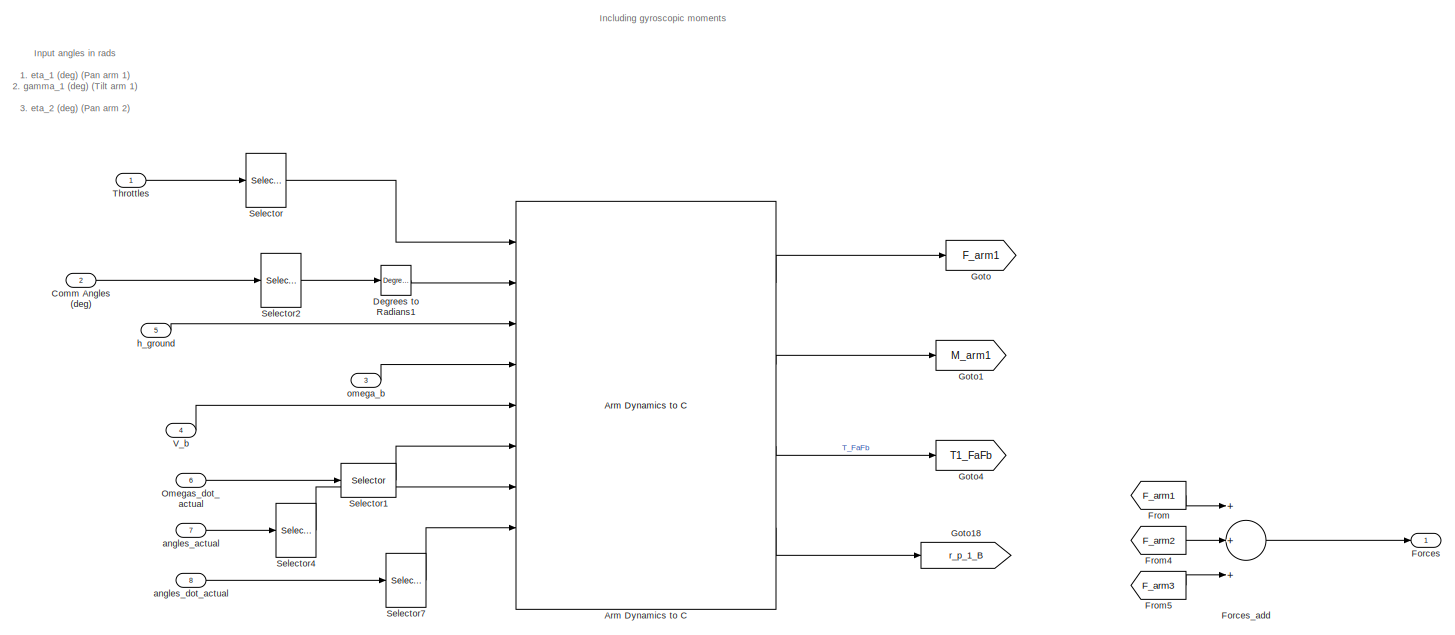
[diagram: Atomic Subsystem/3Copter_4_NDI/Arms Dynamics: Forces and Moments - part 1/3, full width, top band]
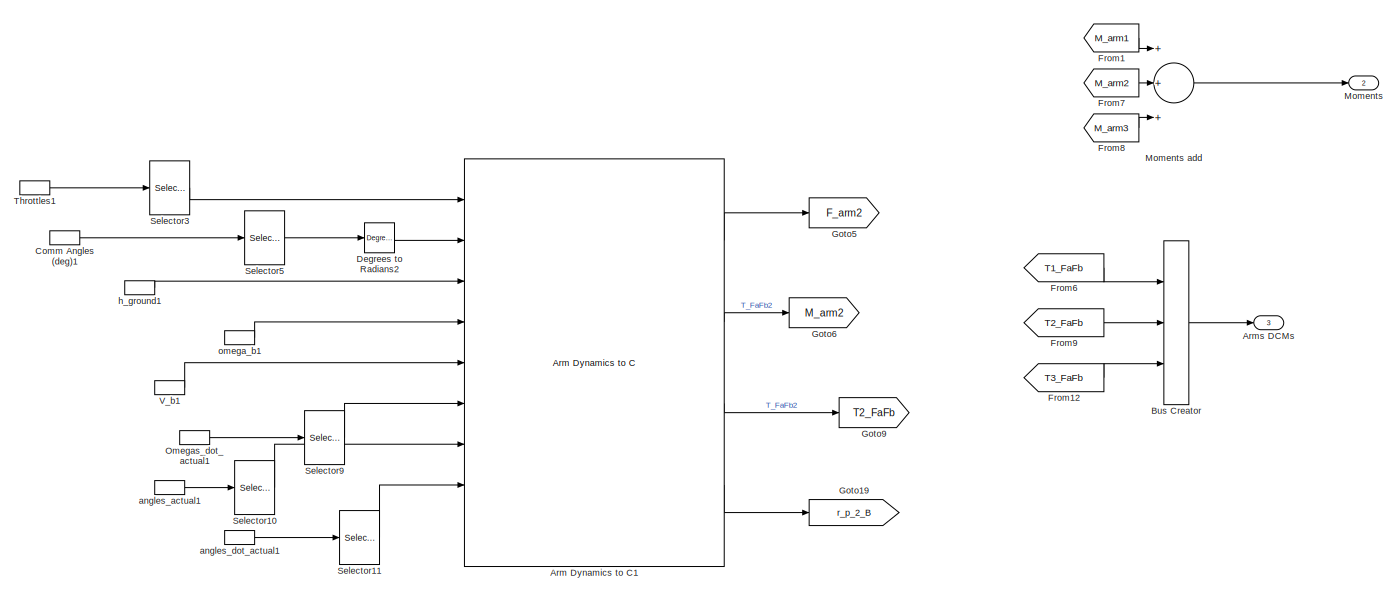
[diagram: Atomic Subsystem/3Copter_4_NDI/Arms Dynamics: Forces and Moments - part 2/3, full width, middle band]
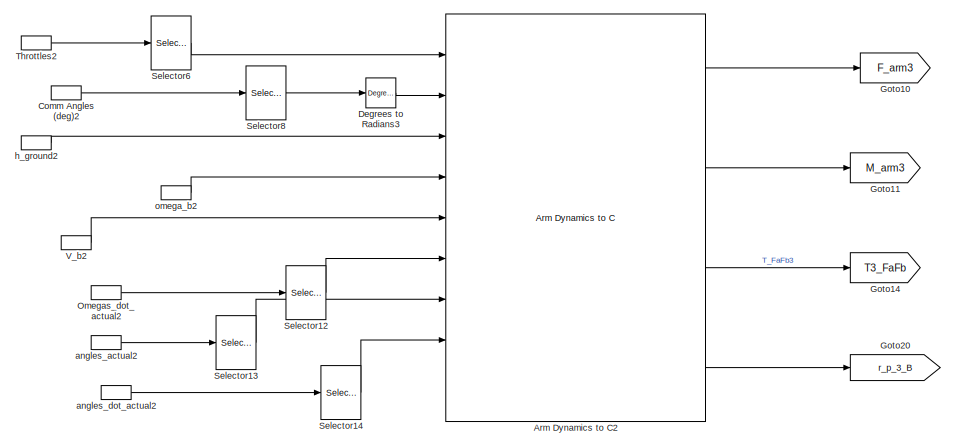
[diagram: Atomic Subsystem/3Copter_4_NDI/Arms Dynamics: Forces and Moments - part 3/3, bottom center region]
BLOCK [SubSystem] Atomic Subsystem/3Copter_4_NDI/Arms Dynamics: Forces and Moments
  Ports = [8, 3]
  RequestExecContextInheritance = off
BLOCK [Reference] Atomic Subsystem/3Copter_4_NDI/Arms Dynamics: Forces and Moments/Arm Dynamics  to C  REF=XXCopter_C/Arm Dynamics  to C
  Arm_axis = [l_arm;0;0]
  J_FA = J_FA
  J_T = J_T
  Ports = [9, 4]
  Rot_sign = Rotation_sign(1)
  SourceBlock = XXCopter_C/Arm Dynamics  to C
  SourceType = Arm dynamics, kinematics, forces and moments
  arm_hub_pos = l*[1;0;0]
  arm_num = 1
  eta_dir = [1;0;0]
  eta_inf_lim = deg2rad(-180)
  eta_sup_lim = deg2rad(180)
  gamma_dir = [0;1;0]
  gamma_inf_lim = deg2rad(-90)
  gamma_sup_lim = deg2rad(30)
  h = h
  omega_n = 35
  switch_val = direct_feedforward
  xi = 1.45
BLOCK [Reference] Atomic Subsystem/3Copter_4_NDI/Arms Dynamics: Forces and Moments/Arm Dynamics  to C1  REF=XXCopter_C/Arm Dynamics  to C
  Arm_axis = [l_arm;0;0]
  J_FA = J_FA
  J_T = J_T
  Ports = [9, 4]
  Rot_sign = Rotation_sign(2)
  SourceBlock = XXCopter_C/Arm Dynamics  to C
  SourceType = Arm dynamics, kinematics, forces and moments
  arm_hub_pos = l*[-1/2;sqrt(3)/2;0]
  arm_num = 2
  eta_dir = [0;1;0]
  eta_inf_lim = deg2rad(-180)
  eta_sup_lim = deg2rad(180)
  gamma_dir = [1;0;0]
  gamma_inf_lim = deg2rad(-90)
  gamma_sup_lim = deg2rad(30)
  h = h
  omega_n = 35
  switch_val = direct_feedforward
  xi = 1.45
BLOCK [Reference] Atomic Subsystem/3Copter_4_NDI/Arms Dynamics: Forces and Moments/Arm Dynamics  to C2  REF=XXCopter_C/Arm Dynamics  to C
  Arm_axis = [l_arm;0;0]
  J_FA = J_FA
  J_T = J_T
  Ports = [9, 4]
  Rot_sign = Rotation_sign(3)
  SourceBlock = XXCopter_C/Arm Dynamics  to C
  SourceType = Arm dynamics, kinematics, forces and moments
  arm_hub_pos = l*[-1/2;-sqrt(3)/2;0]
  arm_num = 3
  eta_dir = [0;1;0]
  eta_inf_lim = deg2rad(-180)
  eta_sup_lim = deg2rad(180)
  gamma_dir = [1;0;0]
  gamma_inf_lim = deg2rad(-90)
  gamma_sup_lim = deg2rad(30)
  h = h
  omega_n = 35
  switch_val = direct_feedforward
  xi = 1.45
BLOCK [Outport] Atomic Subsystem/3Copter_4_NDI/Arms Dynamics: Forces and Moments/Arms DCMs
  IconDisplay = Port number
  Port = 3
BLOCK [BusCreator] Atomic Subsystem/3Copter_4_NDI/Arms Dynamics: Forces and Moments/Bus Creator
  DisplayOption = bar
  Inputs = 3
  Ports = [3, 1]
BLOCK [Inport] Atomic Subsystem/3Copter_4_NDI/Arms Dynamics: Forces and Moments/Comm Angles (deg)
  IconDisplay = Port number
  Port = 2
BLOCK [InportShadow] Atomic Subsystem/3Copter_4_NDI/Arms Dynamics: Forces and Moments/Comm Angles (deg)1
  IconDisplay = Port number
  Port = 2
BLOCK [InportShadow] Atomic Subsystem/3Copter_4_NDI/Arms Dynamics: Forces and Moments/Comm Angles (deg)2
  IconDisplay = Port number
  Port = 2
BLOCK [Reference] Atomic Subsystem/3Copter_4_NDI/Arms Dynamics: Forces and Moments/Degrees to Radians1  REF=simulink_extras/Transformations/Degrees to
Radians
  Ports = [1, 1]
  SourceBlock = simulink_extras/Transformations/Degrees to\nRadians
  SourceType = DegreesToRadians
BLOCK [Reference] Atomic Subsystem/3Copter_4_NDI/Arms Dynamics: Forces and Moments/Degrees to Radians2  REF=simulink_extras/Transformations/Degrees to
Radians
  Ports = [1, 1]
  SourceBlock = simulink_extras/Transformations/Degrees to\nRadians
  SourceType = DegreesToRadians
BLOCK [Reference] Atomic Subsystem/3Copter_4_NDI/Arms Dynamics: Forces and Moments/Degrees to Radians3  REF=simulink_extras/Transformations/Degrees to
Radians
  Ports = [1, 1]
  SourceBlock = simulink_extras/Transformations/Degrees to\nRadians
  SourceType = DegreesToRadians
BLOCK [Outport] Atomic Subsystem/3Copter_4_NDI/Arms Dynamics: Forces and Moments/Forces
  IconDisplay = Port number
BLOCK [Sum] Atomic Subsystem/3Copter_4_NDI/Arms Dynamics: Forces and Moments/Forces_add
  InputSameDT = off
  Inputs = +++
  OutDataTypeStr = Inherit: Inherit via internal rule
  Ports = [3, 1]
  SaturateOnIntegerOverflow = off
BLOCK [From] Atomic Subsystem/3Copter_4_NDI/Arms Dynamics: Forces and Moments/From
  GotoTag = F_arm1
BLOCK [From] Atomic Subsystem/3Copter_4_NDI/Arms Dynamics: Forces and Moments/From1
  GotoTag = M_arm1
BLOCK [From] Atomic Subsystem/3Copter_4_NDI/Arms Dynamics: Forces and Moments/From12
  GotoTag = T3_FaFb
BLOCK [From] Atomic Subsystem/3Copter_4_NDI/Arms Dynamics: Forces and Moments/From4
  GotoTag = F_arm2
BLOCK [From] Atomic Subsystem/3Copter_4_NDI/Arms Dynamics: Forces and Moments/From5
  GotoTag = F_arm3
BLOCK [From] Atomic Subsystem/3Copter_4_NDI/Arms Dynamics: Forces and Moments/From6
  GotoTag = T1_FaFb
BLOCK [From] Atomic Subsystem/3Copter_4_NDI/Arms Dynamics: Forces and Moments/From7
  GotoTag = M_arm2
BLOCK [From] Atomic Subsystem/3Copter_4_NDI/Arms Dynamics: Forces and Moments/From8
  GotoTag = M_arm3
BLOCK [From] Atomic Subsystem/3Copter_4_NDI/Arms Dynamics: Forces and Moments/From9
  GotoTag = T2_FaFb
BLOCK [Goto] Atomic Subsystem/3Copter_4_NDI/Arms Dynamics: Forces and Moments/Goto
  GotoTag = F_arm1
BLOCK [Goto] Atomic Subsystem/3Copter_4_NDI/Arms Dynamics: Forces and Moments/Goto1
  GotoTag = M_arm1
BLOCK [Goto] Atomic Subsystem/3Copter_4_NDI/Arms Dynamics: Forces and Moments/Goto10
  GotoTag = F_arm3
BLOCK [Goto] Atomic Subsystem/3Copter_4_NDI/Arms Dynamics: Forces and Moments/Goto11
  GotoTag = M_arm3
BLOCK [Goto] Atomic Subsystem/3Copter_4_NDI/Arms Dynamics: Forces and Moments/Goto14
  GotoTag = T3_FaFb
BLOCK [Goto] Atomic Subsystem/3Copter_4_NDI/Arms Dynamics: Forces and Moments/Goto18
  GotoTag = r_p_1_B
  TagVisibility = global
BLOCK [Goto] Atomic Subsystem/3Copter_4_NDI/Arms Dynamics: Forces and Moments/Goto19
  GotoTag = r_p_2_B
  TagVisibility = global
BLOCK [Goto] Atomic Subsystem/3Copter_4_NDI/Arms Dynamics: Forces and Moments/Goto20
  GotoTag = r_p_3_B
  TagVisibility = global
BLOCK [Goto] Atomic Subsystem/3Copter_4_NDI/Arms Dynamics: Forces and Moments/Goto4
  GotoTag = T1_FaFb
BLOCK [Goto] Atomic Subsystem/3Copter_4_NDI/Arms Dynamics: Forces and Moments/Goto5
  GotoTag = F_arm2
BLOCK [Goto] Atomic Subsystem/3Copter_4_NDI/Arms Dynamics: Forces and Moments/Goto6
  GotoTag = M_arm2
BLOCK [Goto] Atomic Subsystem/3Copter_4_NDI/Arms Dynamics: Forces and Moments/Goto9
  GotoTag = T2_FaFb
BLOCK [Outport] Atomic Subsystem/3Copter_4_NDI/Arms Dynamics: Forces and Moments/Moments
  IconDisplay = Port number
  Port = 2
BLOCK [Sum] Atomic Subsystem/3Copter_4_NDI/Arms Dynamics: Forces and Moments/Moments add
  InputSameDT = off
  Inputs = +++
  OutDataTypeStr = Inherit: Inherit via internal rule
  Ports = [3, 1]
  SaturateOnIntegerOverflow = off
BLOCK [Inport] Atomic Subsystem/3Copter_4_NDI/Arms Dynamics: Forces and Moments/Omegas_dot_actual
  IconDisplay = Port number
  Port = 6
BLOCK [InportShadow] Atomic Subsystem/3Copter_4_NDI/Arms Dynamics: Forces and Moments/Omegas_dot_actual1
  IconDisplay = Port number
  Port = 6
BLOCK [InportShadow] Atomic Subsystem/3Copter_4_NDI/Arms Dynamics: Forces and Moments/Omegas_dot_actual2
  IconDisplay = Port number
  Port = 6
BLOCK [Selector] Atomic Subsystem/3Copter_4_NDI/Arms Dynamics: Forces and Moments/Selector
  IndexMode = Zero-based
  Indices = 0
  InputPortWidth = 3
  Ports = [1, 1]
BLOCK [Selector] Atomic Subsystem/3Copter_4_NDI/Arms Dynamics: Forces and Moments/Selector1
  IndexMode = Zero-based
  Indices = 0
  InputPortWidth = 3
  Ports = [1, 1]
BLOCK [Selector] Atomic Subsystem/3Copter_4_NDI/Arms Dynamics: Forces and Moments/Selector10
  IndexMode = Zero-based
  Indices = [2,3]
  InputPortWidth = 6
  Ports = [1, 1]
BLOCK [Selector] Atomic Subsystem/3Copter_4_NDI/Arms Dynamics: Forces and Moments/Selector11
  IndexMode = Zero-based
  Indices = [2,3]
  InputPortWidth = 6
  Ports = [1, 1]
BLOCK [Selector] Atomic Subsystem/3Copter_4_NDI/Arms Dynamics: Forces and Moments/Selector12
  IndexMode = Zero-based
  Indices = 2
  InputPortWidth = 3
  Ports = [1, 1]
BLOCK [Selector] Atomic Subsystem/3Copter_4_NDI/Arms Dynamics: Forces and Moments/Selector13
  IndexMode = Zero-based
  Indices = [4,5]
  InputPortWidth = 6
  Ports = [1, 1]
BLOCK [Selector] Atomic Subsystem/3Copter_4_NDI/Arms Dynamics: Forces and Moments/Selector14
  IndexMode = Zero-based
  Indices = [4,5]
  InputPortWidth = 6
  Ports = [1, 1]
BLOCK [Selector] Atomic Subsystem/3Copter_4_NDI/Arms Dynamics: Forces and Moments/Selector2
  IndexMode = Zero-based
  Indices = [0,1]
  InputPortWidth = 6
  Ports = [1, 1]
BLOCK [Selector] Atomic Subsystem/3Copter_4_NDI/Arms Dynamics: Forces and Moments/Selector3
  IndexMode = Zero-based
  InputPortWidth = 3
  Ports = [1, 1]
BLOCK [Selector] Atomic Subsystem/3Copter_4_NDI/Arms Dynamics: Forces and Moments/Selector4
  IndexMode = Zero-based
  Indices = [0,1]
  InputPortWidth = 6
  Ports = [1, 1]
BLOCK [Selector] Atomic Subsystem/3Copter_4_NDI/Arms Dynamics: Forces and Moments/Selector5
  IndexMode = Zero-based
  Indices = [2,3]
  InputPortWidth = 6
  Ports = [1, 1]
BLOCK [Selector] Atomic Subsystem/3Copter_4_NDI/Arms Dynamics: Forces and Moments/Selector6
  IndexMode = Zero-based
  Indices = 2
  InputPortWidth = 3
  Ports = [1, 1]
BLOCK [Selector] Atomic Subsystem/3Copter_4_NDI/Arms Dynamics: Forces and Moments/Selector7
  IndexMode = Zero-based
  Indices = [0,1]
  InputPortWidth = 6
  Ports = [1, 1]
BLOCK [Selector] Atomic Subsystem/3Copter_4_NDI/Arms Dynamics: Forces and Moments/Selector8
  IndexMode = Zero-based
  Indices = [4,5]
  InputPortWidth = 6
  Ports = [1, 1]
BLOCK [Selector] Atomic Subsystem/3Copter_4_NDI/Arms Dynamics: Forces and Moments/Selector9
  IndexMode = Zero-based
  InputPortWidth = 3
  Ports = [1, 1]
BLOCK [Inport] Atomic Subsystem/3Copter_4_NDI/Arms Dynamics: Forces and Moments/Throttles
  IconDisplay = Port number
BLOCK [InportShadow] Atomic Subsystem/3Copter_4_NDI/Arms Dynamics: Forces and Moments/Throttles1
  IconDisplay = Port number
BLOCK [InportShadow] Atomic Subsystem/3Copter_4_NDI/Arms Dynamics: Forces and Moments/Throttles2
  IconDisplay = Port number
BLOCK [Inport] Atomic Subsystem/3Copter_4_NDI/Arms Dynamics: Forces and Moments/V_b
  IconDisplay = Port number
  Port = 4
BLOCK [InportShadow] Atomic Subsystem/3Copter_4_NDI/Arms Dynamics: Forces and Moments/V_b1
  IconDisplay = Port number
  Port = 4
BLOCK [InportShadow] Atomic Subsystem/3Copter_4_NDI/Arms Dynamics: Forces and Moments/V_b2
  IconDisplay = Port number
  Port = 4
BLOCK [Inport] Atomic Subsystem/3Copter_4_NDI/Arms Dynamics: Forces and Moments/angles_actual
  IconDisplay = Port number
  Port = 7
BLOCK [InportShadow] Atomic Subsystem/3Copter_4_NDI/Arms Dynamics: Forces and Moments/angles_actual1
  IconDisplay = Port number
  Port = 7
BLOCK [InportShadow] Atomic Subsystem/3Copter_4_NDI/Arms Dynamics: Forces and Moments/angles_actual2
  IconDisplay = Port number
  Port = 7
BLOCK [Inport] Atomic Subsystem/3Copter_4_NDI/Arms Dynamics: Forces and Moments/angles_dot_actual
  IconDisplay = Port number
  Port = 8
BLOCK [InportShadow] Atomic Subsystem/3Copter_4_NDI/Arms Dynamics: Forces and Moments/angles_dot_actual1
  IconDisplay = Port number
  Port = 8
BLOCK [InportShadow] Atomic Subsystem/3Copter_4_NDI/Arms Dynamics: Forces and Moments/angles_dot_actual2
  IconDisplay = Port number
  Port = 8
BLOCK [Inport] Atomic Subsystem/3Copter_4_NDI/Arms Dynamics: Forces and Moments/h_ground
  IconDisplay = Port number
  Port = 5
BLOCK [InportShadow] Atomic Subsystem/3Copter_4_NDI/Arms Dynamics: Forces and Moments/h_ground1
  IconDisplay = Port number
  Port = 5
BLOCK [InportShadow] Atomic Subsystem/3Copter_4_NDI/Arms Dynamics: Forces and Moments/h_ground2
  IconDisplay = Port number
  Port = 5
BLOCK [Inport] Atomic Subsystem/3Copter_4_NDI/Arms Dynamics: Forces and Moments/omega_b
  IconDisplay = Port number
  Port = 3
BLOCK [InportShadow] Atomic Subsystem/3Copter_4_NDI/Arms Dynamics: Forces and Moments/omega_b1
  IconDisplay = Port number
  Port = 3
BLOCK [InportShadow] Atomic Subsystem/3Copter_4_NDI/Arms Dynamics: Forces and Moments/omega_b2
  IconDisplay = Port number
  Port = 3
BLOCK [Constant] Atomic Subsystem/3Copter_4_NDI/CG
  Value = CG_0
BLOCK [Inport] Atomic Subsystem/3Copter_4_NDI/Control Inputs
  IconDisplay = Port number
BLOCK [Product] Atomic Subsystem/3Copter_4_NDI/Equivalent Throttle
  InputSameDT = off
  Inputs = **
  OutDataTypeStr = Inherit: Inherit via internal rule
  Ports = [2, 1]
  RndMeth = Floor
  SaturateOnIntegerOverflow = off
BLOCK [From] Atomic Subsystem/3Copter_4_NDI/From2
  GotoTag = F_arm
BLOCK [From] Atomic Subsystem/3Copter_4_NDI/From3
  GotoTag = F_air
BLOCK [From] Atomic Subsystem/3Copter_4_NDI/From4
  GotoTag = F_g
BLOCK [From] Atomic Subsystem/3Copter_4_NDI/From5
  GotoTag = M_arm
BLOCK [From] Atomic Subsystem/3Copter_4_NDI/From6
  GotoTag = M_air
BLOCK [From] Atomic Subsystem/3Copter_4_NDI/From7
  GotoTag = M_g
BLOCK [Gain] Atomic Subsystem/3Copter_4_NDI/Gain
  Gain = -1
  OutDataTypeStr = Inherit: Inherit via internal rule
  ParamDataTypeStr = Inherit: Inherit via internal rule
  SaturateOnIntegerOverflow = off
BLOCK [Goto] Atomic Subsystem/3Copter_4_NDI/Goto2
  GotoTag = F_arm
BLOCK [Goto] Atomic Subsystem/3Copter_4_NDI/Goto3
  GotoTag = M_arm
BLOCK [Goto] Atomic Subsystem/3Copter_4_NDI/Goto4
  GotoTag = F_air
BLOCK [Goto] Atomic Subsystem/3Copter_4_NDI/Goto5
  GotoTag = M_air
BLOCK [Goto] Atomic Subsystem/3Copter_4_NDI/Goto6
  GotoTag = F_g
BLOCK [Goto] Atomic Subsystem/3Copter_4_NDI/Goto7
  GotoTag = M_g
BLOCK [SubSystem] Atomic Subsystem/3Copter_4_NDI/Gravity Force and Moment
  ErrorFcn = Stateflow.Translate.translate
  PermitHierarchicalResolution = ExplicitOnly
  Ports = [3, 2]
  RequestExecContextInheritance = off
  SFBlockType = MATLAB Function
  TreatAsAtomicUnit = on
BLOCK [Demux] Atomic Subsystem/3Copter_4_NDI/Gravity Force and Moment/ Demux 
  Outputs = 1
  Ports = [1, 1]
BLOCK [S-Function] Atomic Subsystem/3Copter_4_NDI/Gravity Force and Moment/ SFunction 
  EnableBusSupport = on
  FunctionName = sf_sfun
  Parameters = g
  PortCounts = [3 3]
  Ports = [3, 3]
  Tag = Stateflow S-Function TricopterModel 22
BLOCK [Terminator] Atomic Subsystem/3Copter_4_NDI/Gravity Force and Moment/ Terminator 
BLOCK [Inport] Atomic Subsystem/3Copter_4_NDI/Gravity Force and Moment/CG
  IconDisplay = Port number
  Port = 3
BLOCK [Outport] Atomic Subsystem/3Copter_4_NDI/Gravity Force and Moment/F_g_b
  IconDisplay = Port number
BLOCK [Outport] Atomic Subsystem/3Copter_4_NDI/Gravity Force and Moment/M_g_b
  IconDisplay = Port number
  Port = 2
BLOCK [Inport] Atomic Subsystem/3Copter_4_NDI/Gravity Force and Moment/mass
  IconDisplay = Port number
  Port = 2
BLOCK [Inport] Atomic Subsystem/3Copter_4_NDI/Gravity Force and Moment/q
  IconDisplay = Port number
BLOCK [Constant] Atomic Subsystem/3Copter_4_NDI/I_BAC_0
  Value = I_BAC_0
BLOCK [Constant] Atomic Subsystem/3Copter_4_NDI/Mass
  Value = m
BLOCK [SubSystem] Atomic Subsystem/3Copter_4_NDI/Mass Properties
  Ports = [6, 2]
  RequestExecContextInheritance = off
  TreatAsAtomicUnit = on
BLOCK [SubSystem] Atomic Subsystem/3Copter_4_NDI/Mass Properties/Arm Inertia
  ErrorFcn = Stateflow.Translate.translate
  PermitHierarchicalResolution = ExplicitOnly
  Ports = [3, 4]
  RequestExecContextInheritance = off
  SFBlockType = MATLAB Function
  TreatAsAtomicUnit = on
BLOCK [Demux] Atomic Subsystem/3Copter_4_NDI/Mass Properties/Arm Inertia/ Demux 
  Outputs = 1
  Ports = [1, 1]
BLOCK [S-Function] Atomic Subsystem/3Copter_4_NDI/Mass Properties/Arm Inertia/ SFunction 
  EnableBusSupport = on
  FunctionName = sf_sfun
  Parameters = h_M,l,m_M
  PortCounts = [3 5]
  Ports = [3, 5]
  Tag = Stateflow S-Function TricopterModel 23
BLOCK [Terminator] Atomic Subsystem/3Copter_4_NDI/Mass Properties/Arm Inertia/ Terminator 
BLOCK [Outport] Atomic Subsystem/3Copter_4_NDI/Mass Properties/Arm Inertia/I_M
  IconDisplay = Port number
BLOCK [Inport] Atomic Subsystem/3Copter_4_NDI/Mass Properties/Arm Inertia/T1_FAFb
  IconDisplay = Port number
BLOCK [Inport] Atomic Subsystem/3Copter_4_NDI/Mass Properties/Arm Inertia/T2_FAFb
  IconDisplay = Port number
  Port = 2
BLOCK [Inport] Atomic Subsystem/3Copter_4_NDI/Mass Properties/Arm Inertia/T3_FAFb
  IconDisplay = Port number
  Port = 3
BLOCK [Outport] Atomic Subsystem/3Copter_4_NDI/Mass Properties/Arm Inertia/r1_M
  IconDisplay = Port number
  Port = 2
BLOCK [Outport] Atomic Subsystem/3Copter_4_NDI/Mass Properties/Arm Inertia/r2_M
  IconDisplay = Port number
  Port = 3
BLOCK [Outport] Atomic Subsystem/3Copter_4_NDI/Mass Properties/Arm Inertia/r3_M
  IconDisplay = Port number
  Port = 4
BLOCK [Inport] Atomic Subsystem/3Copter_4_NDI/Mass Properties/Arms DCMs
  IconDisplay = Port number
BLOCK [BusSelector] Atomic Subsystem/3Copter_4_NDI/Mass Properties/Bus Selector
  OutputSignals = T_FaFb,T_FaFb2,T_FaFb3
  Ports = [1, 3]
BLOCK [Outport] Atomic Subsystem/3Copter_4_NDI/Mass Properties/CG
  IconDisplay = Port number
  Port = 2
BLOCK [Sum] Atomic Subsystem/3Copter_4_NDI/Mass Properties/CG position
  InputSameDT = off
  OutDataTypeStr = Inherit: Inherit via internal rule
  Ports = [2, 1]
  SaturateOnIntegerOverflow = off
BLOCK [Inport] Atomic Subsystem/3Copter_4_NDI/Mass Properties/CG_0
  IconDisplay = Port number
  Port = 2
BLOCK [Product] Atomic Subsystem/3Copter_4_NDI/Mass Properties/Divide
  InputSameDT = off
  Inputs = */
  OutDataTypeStr = Inherit: Inherit via internal rule
  Ports = [2, 1]
  RndMeth = Floor
  SaturateOnIntegerOverflow = off
BLOCK [Product] Atomic Subsystem/3Copter_4_NDI/Mass Properties/Divide1
  InputSameDT = off
  Inputs = **
  OutDataTypeStr = Inherit: Inherit via internal rule
  Ports = [2, 1]
  RndMeth = Floor
  SaturateOnIntegerOverflow = off
BLOCK [Product] Atomic Subsystem/3Copter_4_NDI/Mass Properties/Divide2
  InputSameDT = off
  Inputs = /*
  OutDataTypeStr = Inherit: Inherit via internal rule
  Ports = [2, 1]
  RndMeth = Floor
  SaturateOnIntegerOverflow = off
BLOCK [Product] Atomic Subsystem/3Copter_4_NDI/Mass Properties/Divide3
  InputSameDT = off
  Inputs = **
  OutDataTypeStr = Inherit: Inherit via internal rule
  Ports = [2, 1]
  RndMeth = Floor
  SaturateOnIntegerOverflow = off
BLOCK [Outport] Atomic Subsystem/3Copter_4_NDI/Mass Properties/I_BAC
  IconDisplay = Port number
BLOCK [Inport] Atomic Subsystem/3Copter_4_NDI/Mass Properties/I_BAC_0
  IconDisplay = Port number
  Port = 6
BLOCK [Sum] Atomic Subsystem/3Copter_4_NDI/Mass Properties/Motors Pos sum
  InputSameDT = off
  Inputs = +++
  OutDataTypeStr = Inherit: Inherit via internal rule
  Ports = [3, 1]
  SaturateOnIntegerOverflow = off
BLOCK [Sum] Atomic Subsystem/3Copter_4_NDI/Mass Properties/Total I_BAC
  InputSameDT = off
  OutDataTypeStr = Inherit: Inherit via internal rule
  Ports = [2, 1]
  SaturateOnIntegerOverflow = off
BLOCK [Inport] Atomic Subsystem/3Copter_4_NDI/Mass Properties/m
  IconDisplay = Port number
  Port = 4
BLOCK [Inport] Atomic Subsystem/3Copter_4_NDI/Mass Properties/m_0
  IconDisplay = Port number
  Port = 3
BLOCK [Inport] Atomic Subsystem/3Copter_4_NDI/Mass Properties/m_M
  IconDisplay = Port number
  Port = 5
BLOCK [Constant] Atomic Subsystem/3Copter_4_NDI/Mass1
  Value = m
BLOCK [Constant] Atomic Subsystem/3Copter_4_NDI/Motor Mass
  Value = m_M
BLOCK [Inport] Atomic Subsystem/3Copter_4_NDI/Omegas_dot_actual
  IconDisplay = Port number
  Port = 6
BLOCK [Constant] Atomic Subsystem/3Copter_4_NDI/Reference batrery level (V)
  Value = 16
BLOCK [Selector] Atomic Subsystem/3Copter_4_NDI/Selector
  IndexMode = Zero-based
  Indices = 2
  InputPortWidth = 3
  Ports = [1, 1]
BLOCK [Selector] Atomic Subsystem/3Copter_4_NDI/Throttles
  IndexMode = Zero-based
  Indices = [0,3,6]
  InputPortWidth = 9
  Ports = [1, 1]
BLOCK [Inport] Atomic Subsystem/3Copter_4_NDI/Vb
  IconDisplay = Port number
  Port = 3
BLOCK [Outport] Atomic Subsystem/3Copter_4_NDI/Ve
  IconDisplay = Port number
BLOCK [Inport] Atomic Subsystem/3Copter_4_NDI/X_e
  IconDisplay = Port number
  Port = 2
BLOCK [Selector] Atomic Subsystem/3Copter_4_NDI/angles 
  IndexMode = Zero-based
  Indices = [1,2,4,5,7,8]
  InputPortWidth = 9
  Ports = [1, 1]
BLOCK [Inport] Atomic Subsystem/3Copter_4_NDI/angles_actual
  IconDisplay = Port number
  Port = 7
BLOCK [Inport] Atomic Subsystem/3Copter_4_NDI/angles_dot_actual
  IconDisplay = Port number
  Port = 8
BLOCK [Constant] Atomic Subsystem/3Copter_4_NDI/m_0
  Value = m_0
BLOCK [Constant] Atomic Subsystem/3Copter_4_NDI/mass
  Value = m
BLOCK [Inport] Atomic Subsystem/3Copter_4_NDI/omega_b
  IconDisplay = Port number
  Port = 5
BLOCK [Outport] Atomic Subsystem/3Copter_4_NDI/omega_b_dot
  IconDisplay = Port number
  Port = 4
BLOCK [Inport] Atomic Subsystem/3Copter_4_NDI/q
  IconDisplay = Port number
  Port = 4
BLOCK [Outport] Atomic Subsystem/3Copter_4_NDI/q_dot
  IconDisplay = Port number
  Port = 3
BLOCK [BusSelector] Atomic Subsystem/Bus Selector
  OutputSignals = X_e_0,V_e_0,Euler_0,Euler_dot_0
  Ports = [1, 4]
BLOCK [Inport] Atomic Subsystem/Control inputs
  IconDisplay = Port number
BLOCK [Ground] Atomic Subsystem/Ground
BLOCK [Ground] Atomic Subsystem/Ground1
BLOCK [Ground] Atomic Subsystem/Ground2
BLOCK [Inport] Atomic Subsystem/Initial Conditions
  IconDisplay = Port number
  Port = 2
BLOCK [SubSystem] Atomic Subsystem/Normalize Quaternion
  Ports = [1, 1]
  RequestExecContextInheritance = off
  TreatAsAtomicUnit = on
BLOCK [Demux] Atomic Subsystem/Normalize Quaternion/Demux
  DisplayOption = bar
  Ports = [1, 4]
BLOCK [Math] Atomic Subsystem/Normalize Quaternion/Math Function
  Operator = reciprocal
  Ports = [1, 1]
BLOCK [Mux] Atomic Subsystem/Normalize Quaternion/Mux
  DisplayOption = bar
  Ports = [4, 1]
BLOCK [Product] Atomic Subsystem/Normalize Quaternion/Product
  InputSameDT = off
  Inputs = **
  OutDataTypeStr = Inherit: Inherit via internal rule
  Ports = [2, 1]
  RndMeth = Floor
  SaturateOnIntegerOverflow = off
BLOCK [Product] Atomic Subsystem/Normalize Quaternion/Product1
  InputSameDT = off
  Inputs = **
  OutDataTypeStr = Inherit: Inherit via internal rule
  Ports = [2, 1]
  RndMeth = Floor
  SaturateOnIntegerOverflow = off
BLOCK [Product] Atomic Subsystem/Normalize Quaternion/Product2
  InputSameDT = off
  Inputs = **
  OutDataTypeStr = Inherit: Inherit via internal rule
  Ports = [2, 1]
  RndMeth = Floor
  SaturateOnIntegerOverflow = off
BLOCK [Product] Atomic Subsystem/Normalize Quaternion/Product3
  InputSameDT = off
  Inputs = **
  OutDataTypeStr = Inherit: Inherit via internal rule
  Ports = [2, 1]
  RndMeth = Floor
  SaturateOnIntegerOverflow = off
BLOCK [Reference] Atomic Subsystem/Normalize Quaternion/Quaternion Modulus  REF=aerolibutil/Quaternion
Modulus
  Ports = [1, 1]
  SourceBlock = aerolibutil/Quaternion\nModulus
  SourceType = Quaternion Modulus
BLOCK [Outport] Atomic Subsystem/Normalize Quaternion/normal(q)
  IconDisplay = Port number
BLOCK [Inport] Atomic Subsystem/Normalize Quaternion/q
  IconDisplay = Port number
BLOCK [SubSystem] Atomic Subsystem/SVFI_to_SVFb
  ErrorFcn = Stateflow.Translate.translate
  PermitHierarchicalResolution = ExplicitOnly
  Ports = [4, 4]
  RequestExecContextInheritance = off
  SFBlockType = MATLAB Function
  TreatAsAtomicUnit = on
BLOCK [Demux] Atomic Subsystem/SVFI_to_SVFb/ Demux 
  Outputs = 1
  Ports = [1, 1]
BLOCK [S-Function] Atomic Subsystem/SVFI_to_SVFb/ SFunction 
  EnableBusSupport = on
  FunctionName = sf_sfun
  PortCounts = [4 5]
  Ports = [4, 5]
  Tag = Stateflow S-Function TricopterModel 6
BLOCK [Terminator] Atomic Subsystem/SVFI_to_SVFb/ Terminator 
BLOCK [Inport] Atomic Subsystem/SVFI_to_SVFb/Euler_Ang
  IconDisplay = Port number
  Port = 3
BLOCK [Inport] Atomic Subsystem/SVFI_to_SVFb/Euler_Ang_Dot
  IconDisplay = Port number
  Port = 4
BLOCK [Outport] Atomic Subsystem/SVFI_to_SVFb/V_b
  IconDisplay = Port number
  Port = 2
BLOCK [Inport] Atomic Subsystem/SVFI_to_SVFb/V_e
  IconDisplay = Port number
  Port = 2
BLOCK [Inport] Atomic Subsystem/SVFI_to_SVFb/X_e
  IconDisplay = Port number
BLOCK [Outport] Atomic Subsystem/SVFI_to_SVFb/X_e_out
  IconDisplay = Port number
BLOCK [Outport] Atomic Subsystem/SVFI_to_SVFb/omega_b
  IconDisplay = Port number
  Port = 4
BLOCK [Outport] Atomic Subsystem/SVFI_to_SVFb/q
  IconDisplay = Port number
  Port = 3
BLOCK [SubSystem] Atomic Subsystem/SV_F_b_to_SV_FI
  ErrorFcn = Stateflow.Translate.translate
  PermitHierarchicalResolution = ExplicitOnly
  Ports = [1, 1]
  RequestExecContextInheritance = off
  SFBlockType = MATLAB Function
  TreatAsAtomicUnit = on
BLOCK [Demux] Atomic Subsystem/SV_F_b_to_SV_FI/ Demux 
  Outputs = 1
  Ports = [1, 1]
BLOCK [S-Function] Atomic Subsystem/SV_F_b_to_SV_FI/ SFunction 
  EnableBusSupport = on
  FunctionName = sf_sfun
  PortCounts = [1 2]
  Ports = [1, 2]
  Tag = Stateflow S-Function TricopterModel 7
BLOCK [Terminator] Atomic Subsystem/SV_F_b_to_SV_FI/ Terminator 
BLOCK [Outport] Atomic Subsystem/SV_F_b_to_SV_FI/euler
  IconDisplay = Port number
BLOCK [Inport] Atomic Subsystem/SV_F_b_to_SV_FI/q
  IconDisplay = Port number
BLOCK [Outport] Atomic Subsystem/Ve
  IconDisplay = Port number
BLOCK [Outport] Atomic Subsystem/X_e
  IconDisplay = Port number
  Port = 3
BLOCK [Outport] Atomic Subsystem/euler
  IconDisplay = Port number
  Port = 2
BLOCK [Integrator] Atomic Subsystem/p,q,r 
  InitialCondition = [P_0,Q_0,R_0]
  InitialConditionSource = external
  Ports = [2, 1]
BLOCK [Integrator] Atomic Subsystem/quaternion
  InitialCondition = [P_0,Q_0,R_0]
  InitialConditionSource = external
  Ports = [2, 1]
BLOCK [Integrator] Atomic Subsystem/ub,vb,wb
  InitialCondition = [U_0,V_0,W_0]
  InitialConditionSource = external
  Ports = [2, 1]
BLOCK [Integrator] Atomic Subsystem/xe,ye,ze
  InitialCondition = [NORTH_0,EAST_0,-DOWN_0]
  InitialConditionSource = external
  Ports = [2, 1]
BLOCK [Constant] Contro Inputs
  Value = [Throttle_Hover, 0,0,Throttle_Hover,0,0,Throttle_Hover,0,0]
BLOCK [Demux] Demux
  Commented = on
  DisplayOption = bar
  Outputs = 3
  Ports = [1, 3]
BLOCK [SubSystem] Initial Conds
  Ports = [0, 1]
  RequestExecContextInheritance = off
  TreatAsAtomicUnit = on
BLOCK [BusCreator] Initial Conds/Bus Creator
  DisplayOption = bar
  Ports = [4, 1]
BLOCK [Constant] Initial Conds/Ini Position X_e_0
  Value = [0;0;-1]
BLOCK [Constant] Initial Conds/Initial Attitude Euler_0
  Value = [deg2rad(0);deg2rad(0);deg2rad(0)]
BLOCK [Constant] Initial Conds/Initial Attitude Rate  Euler_dot_0
  Value = [deg2rad(0);deg2rad(0);deg2rad(0)]
BLOCK [Outport] Initial Conds/Initial Conditions
  IconDisplay = Port number
BLOCK [Constant] Initial Conds/Initial Velocity V_e_0
  Value = [0;0;0]
BLOCK [Constant] Initial omegas
  Value = Initial_Omegas*0
BLOCK [ManualSwitch] Manual Switch
  CurrentSetting = 0
BLOCK [Scope] Model_4_NDI
  Commented = on
  DataFormat = StructureWithTime
  Floating = off
  LegendLocations = 0.79585     0.86601     0.15892    0.077929\n 0.7089     0.40146     0.24588    0.077929
  LimitDataPoints = off
  NumInputPorts = 2
  Ports = [2]
  SampleTime = 0
  SaveName = ScopeData3
  ShowLegends = on
  YMax = 0.00045~1
  YMin = -5e-05~-21
BLOCK [Mux] Mux
  Commented = on
  DisplayOption = bar
  Inputs = 3
  Ports = [3, 1]
BLOCK [SubSystem] Plotting
  Ports = [3]
  RequestExecContextInheritance = off
BLOCK [Inport] Plotting/Arms Angles
  IconDisplay = Port number
  Port = 3
BLOCK [BusSelector] Plotting/Bus Selector
  OutputSignals = euler,X_e,DCM
  Ports = [1, 3]
BLOCK [BusSelector] Plotting/Bus Selector1
  OutputSignals = Angles Arm 1,Angles Arm 2,Angles Arm 3
  Ports = [1, 3]
BLOCK [Demux] Plotting/Demux
  DisplayOption = bar
  Outputs = 3
  Ports = [1, 3]
BLOCK [From] Plotting/From
  GotoTag = r_p_3
  TagVisibility = global
BLOCK [From] Plotting/From1
  GotoTag = r_p_2
  TagVisibility = global
BLOCK [From] Plotting/From2
  GotoTag = r_p_1
  TagVisibility = global
BLOCK [Inport] Plotting/General bus
  IconDisplay = Port number
  Port = 2
BLOCK [M-S-Function] Plotting/Level-2 MATLAB S-Function
  FunctionName = Simulation_3_copter
  Ports = [8]
BLOCK [Mux] Plotting/Mux
  DisplayOption = bar
  Inputs = 3
  Ports = [3, 1]
BLOCK [Inport] Plotting/Omegas
  IconDisplay = Port number
BLOCK [Scope] Plotting/Scope
  DataFormat = StructureWithTime
  Floating = off
  LegendLocations = 0.78339     0.86198     0.15914    0.072661\n0.79621     0.39742     0.14632    0.072661
  LimitDataPoints = off
  NumInputPorts = 2
  Ports = [2]
  SampleTime = 0
  ShowLegends = on
  YMax = 0.00045~1
  YMin = -5e-05~-21
BLOCK [Scope] Plotting/Scope1
  DataFormat = StructureWithTime
  Floating = off
  NumInputPorts = 1
  Ports = [1]
  SampleTime = 0
  SaveName = ScopeData1
  ShowLegends = off
  TimeRange = 5
  YMax = 570
  YMin = 564.75
BLOCK [Scope] Plotting/Scope2
  DataFormat = StructureWithTime
  Floating = off
  NumInputPorts = 3
  Ports = [3]
  SampleTime = 0
  SaveName = ScopeData2
  ShowLegends = on
  YMax = 5~5~5
  YMin = -5~-5~-5
BLOCK [SubSystem] Trim deflections
  Ports = [0, 1]
  RequestExecContextInheritance = off
  TreatAsAtomicUnit = on
BLOCK [Reference] Trim deflections/   REF=simulink_extras/Transformations/Radians
to Degrees
  Ports = [1, 1]
  SourceBlock = simulink_extras/Transformations/Radians\nto Degrees
  SourceType = RadiansToDegrees
BLOCK [Constant] Trim deflections/Contro Inputs1
  Value = 0
BLOCK [Constant] Trim deflections/Contro Inputs2
  Value = 0
BLOCK [Constant] Trim deflections/Contro Inputs3
  Value = eta_23
BLOCK [Gain] Trim deflections/Gain
  Gain = -1
  OutDataTypeStr = Inherit: Inherit via internal rule
  ParamDataTypeStr = Inherit: Inherit via internal rule
  SaturateOnIntegerOverflow = off
BLOCK [Ground] Trim deflections/Ground
BLOCK [Mux] Trim deflections/Mux
  DisplayOption = bar
  Inputs = 9
  Ports = [9, 1]
BLOCK [Outport] Trim deflections/Trim deflectins
  IconDisplay = Port number
ANNOTATION (root): Control inputs: 1. tau_1 [0-1] (Throttle motor 1) 2. eta_1 (deg) (Pan arm 1) 3. gamma_1 (deg) (Tilt arm 1) 4. tau_2 [0-1] (Throttle motor 2) 5. eta_2 (deg) (Pan arm 2) 6. gamma_2 (deg) (Tilt arm 2) 7. tau_3 [0-1] (Throttle motor 3) 8. eta_3 (deg) (Pan arm 3) 9. gamma_3 (deg) (Tilt arm 3)
ANNOTATION 3 Copter Complete: Control inputs: 1. tau_1 [0-1] (Thr ottle motor 1) 2. eta_1 (deg) (Pan arm 1) 3. gamma_1 (deg) (Tilt arm 1) 4. tau_2 [0-1] (Throttle motor 2) 5. eta_2 (deg) (Pan arm 2) 6. gamma_2 (deg) (Tilt arm 2) 7. tau_3 [0-1] (Throttle motor 3) 8. eta_3 (deg) (Pan arm 3) 9. gamma_3 (deg) (Tilt arm 3)
ANNOTATION 3 Copter Complete/6dof Eqs of motion: This is T_Fb->Fe
ANNOTATION 3 Copter Complete/6dof Eqs of motion/q_dot: Both of these methods to compute q_dot are very similar
ANNOTATION 3 Copter Complete/Arms Dynamics: Forces and Moments: Including gyroscopic moments
ANNOTATION 3 Copter Complete/Arms Dynamics: Forces and Moments: Input angles in rads 1. eta_1 (deg) (Pan arm 1) 2. gamma_1 (deg) (Tilt arm 1) 3. eta_2 (deg) (Pan arm 2) 4. gamma_2 (deg) (Tilt arm 2) 5. eta_3 (deg) (Pan arm 3) 6. gamma_3 (deg) (Tilt arm 3)
ANNOTATION 3 Copter Complete/Contorl Inputs limits: limits in degs
ANNOTATION Atomic Subsystem/3Copter_4_NDI: COUPLING TO SOLVE!!!
ANNOTATION Atomic Subsystem/3Copter_4_NDI: Control inputs: 1. tau_1 [0-1] (Thr ottle motor 1) 2. eta_1 (deg) (Pan arm 1) 3. gamma_1 (deg) (Tilt arm 1) 4. tau_2 [0-1] (Throttle motor 2) 5. eta_2 (deg) (Pan arm 2) 6. gamma_2 (deg) (Tilt arm 2) 7. tau_3 [0-1] (Throttle motor 3) 8. eta_3 (deg) (Pan arm 3) 9. gamma_3 (deg) (Tilt arm 3)
ANNOTATION Atomic Subsystem/3Copter_4_NDI: Omegas=Angular rate of proppellers
ANNOTATION Atomic Subsystem/3Copter_4_NDI/Arms Dynamics: Forces and Moments: Including gyroscopic moments
ANNOTATION Atomic Subsystem/3Copter_4_NDI/Arms Dynamics: Forces and Moments: Input angles in rads 1. eta_1 (deg) (Pan arm 1) 2. gamma_1 (deg) (Tilt arm 1) 3. eta_2 (deg) (Pan arm 2) 4. gamma_2 (deg) (Tilt arm 2) 5. eta_3 (deg) (Pan arm 3) 6. gamma_3 (deg) (Tilt arm 3)
LINE 3 Copter Complete/6dof Eqs of motion/Bus Selector:1 -> 3 Copter Complete/6dof Eqs of motion/SVFI_to_SVFb:1
LINE 3 Copter Complete/6dof Eqs of motion/Bus Selector:2 -> 3 Copter Complete/6dof Eqs of motion/SVFI_to_SVFb:2
LINE 3 Copter Complete/6dof Eqs of motion/Bus Selector:3 -> 3 Copter Complete/6dof Eqs of motion/SVFI_to_SVFb:3
LINE 3 Copter Complete/6dof Eqs of motion/Bus Selector:4 -> 3 Copter Complete/6dof Eqs of motion/SVFI_to_SVFb:4
LINE 3 Copter Complete/6dof Eqs of motion/CG:1 -> 3 Copter Complete/6dof Eqs of motion/Position Eqs:6
LINE 3 Copter Complete/6dof Eqs of motion/DCM1/Euler:1 -> 3 Copter Complete/6dof Eqs of motion/DCM1/sincos:1
LINE 3 Copter Complete/6dof Eqs of motion/DCM1/Fcn11:1 -> 3 Copter Complete/6dof Eqs of motion/DCM1/Mux1:1
LINE 3 Copter Complete/6dof Eqs of motion/DCM1/Fcn12:1 -> 3 Copter Complete/6dof Eqs of motion/DCM1/Mux1:2
LINE 3 Copter Complete/6dof Eqs of motion/DCM1/Fcn13:1 -> 3 Copter Complete/6dof Eqs of motion/DCM1/Mux1:3
LINE 3 Copter Complete/6dof Eqs of motion/DCM1/Fcn21:1 -> 3 Copter Complete/6dof Eqs of motion/DCM1/Mux1:4
LINE 3 Copter Complete/6dof Eqs of motion/DCM1/Fcn22:1 -> 3 Copter Complete/6dof Eqs of motion/DCM1/Mux1:5
LINE 3 Copter Complete/6dof Eqs of motion/DCM1/Fcn23:1 -> 3 Copter Complete/6dof Eqs of motion/DCM1/Mux1:6
LINE 3 Copter Complete/6dof Eqs of motion/DCM1/Fcn31:1 -> 3 Copter Complete/6dof Eqs of motion/DCM1/Mux1:7
LINE 3 Copter Complete/6dof Eqs of motion/DCM1/Fcn32:1 -> 3 Copter Complete/6dof Eqs of motion/DCM1/Mux1:8
LINE 3 Copter Complete/6dof Eqs of motion/DCM1/Fcn33:1 -> 3 Copter Complete/6dof Eqs of motion/DCM1/Mux1:9
LINE 3 Copter Complete/6dof Eqs of motion/DCM1/Mux1:1 -> 3 Copter Complete/6dof Eqs of motion/DCM1/Reshape:1
NET 3 Copter Complete/6dof Eqs of motion/DCM1/Mux:1 -> 3 Copter Complete/6dof Eqs of motion/DCM1/Fcn11:1, 3 Copter Complete/6dof Eqs of motion/DCM1/Fcn12:1, 3 Copter Complete/6dof Eqs of motion/DCM1/Fcn13:1, 3 Copter Complete/6dof Eqs of motion/DCM1/Fcn21:1, 3 Copter Complete/6dof Eqs of motion/DCM1/Fcn22:1, 3 Copter Complete/6dof Eqs of motion/DCM1/Fcn23:1, 3 Copter Complete/6dof Eqs of motion/DCM1/Fcn31:1, 3 Copter Complete/6dof Eqs of motion/DCM1/Fcn32:1, 3 Copter Complete/6dof Eqs of motion/DCM1/Fcn33:1
LINE 3 Copter Complete/6dof Eqs of motion/DCM1/Reshape:1 -> 3 Copter Complete/6dof Eqs of motion/DCM1/DCM:1
LINE 3 Copter Complete/6dof Eqs of motion/DCM1/sincos:1 -> 3 Copter Complete/6dof Eqs of motion/DCM1/Mux:1
LINE 3 Copter Complete/6dof Eqs of motion/DCM1/sincos:2 -> 3 Copter Complete/6dof Eqs of motion/DCM1/Mux:2
LINE 3 Copter Complete/6dof Eqs of motion/DCM1:1 -> 3 Copter Complete/6dof Eqs of motion/DCM:1
LINE 3 Copter Complete/6dof Eqs of motion/Eccelerometer meas:1 -> 3 Copter Complete/6dof Eqs of motion/Asensor:1
LINE 3 Copter Complete/6dof Eqs of motion/Forces:1 -> 3 Copter Complete/6dof Eqs of motion/Position Eqs:4
LINE 3 Copter Complete/6dof Eqs of motion/From1:1 -> 3 Copter Complete/6dof Eqs of motion/Position Eqs:3
LINE 3 Copter Complete/6dof Eqs of motion/From2:1 -> 3 Copter Complete/6dof Eqs of motion/Eccelerometer meas:2
LINE 3 Copter Complete/6dof Eqs of motion/From3:1 -> 3 Copter Complete/6dof Eqs of motion/Eccelerometer meas:3
LINE 3 Copter Complete/6dof Eqs of motion/From:1 -> 3 Copter Complete/6dof Eqs of motion/Position Eqs:2
LINE 3 Copter Complete/6dof Eqs of motion/I_BAC:1 -> 3 Copter Complete/6dof Eqs of motion/Rotational eqs:3
LINE 3 Copter Complete/6dof Eqs of motion/Initial Conditions:1 -> 3 Copter Complete/6dof Eqs of motion/Bus Selector:1
LINE 3 Copter Complete/6dof Eqs of motion/Moments:1 -> 3 Copter Complete/6dof Eqs of motion/Rotational eqs:2
NET 3 Copter Complete/6dof Eqs of motion/Normalize 4D vector:1 -> 3 Copter Complete/6dof Eqs of motion/SV_F_b_to_SV_FI:3, 3 Copter Complete/6dof Eqs of motion/q:1
NET 3 Copter Complete/6dof Eqs of motion/Position Eqs:1 -> 3 Copter Complete/6dof Eqs of motion/Ab:1, 3 Copter Complete/6dof Eqs of motion/Eccelerometer meas:4, 3 Copter Complete/6dof Eqs of motion/ub,vb,wb:1
NET 3 Copter Complete/6dof Eqs of motion/Rotational eqs:1 -> 3 Copter Complete/6dof Eqs of motion/Goto1:1, 3 Copter Complete/6dof Eqs of motion/p,q,r :1, 3 Copter Complete/6dof Eqs of motion/pdot,qdot,rdot:1
LINE 3 Copter Complete/6dof Eqs of motion/SVFI_to_SVFb:1 -> 3 Copter Complete/6dof Eqs of motion/xe,ye,ze:2
LINE 3 Copter Complete/6dof Eqs of motion/SVFI_to_SVFb:2 -> 3 Copter Complete/6dof Eqs of motion/ub,vb,wb:2
LINE 3 Copter Complete/6dof Eqs of motion/SVFI_to_SVFb:3 -> 3 Copter Complete/6dof Eqs of motion/p,q,r :2
LINE 3 Copter Complete/6dof Eqs of motion/SVFI_to_SVFb:4 -> 3 Copter Complete/6dof Eqs of motion/quaternion:2
NET 3 Copter Complete/6dof Eqs of motion/SV_F_b_to_SV_FI:1 -> 3 Copter Complete/6dof Eqs of motion/Ve:1, 3 Copter Complete/6dof Eqs of motion/xe,ye,ze:1
NET 3 Copter Complete/6dof Eqs of motion/SV_F_b_to_SV_FI:2 -> 3 Copter Complete/6dof Eqs of motion/Selector7:1, 3 Copter Complete/6dof Eqs of motion/euler:1
LINE 3 Copter Complete/6dof Eqs of motion/SV_F_b_to_SV_FI:3 -> 3 Copter Complete/6dof Eqs of motion/euler_dot:1
LINE 3 Copter Complete/6dof Eqs of motion/Selector7:1 -> 3 Copter Complete/6dof Eqs of motion/DCM1:1
LINE 3 Copter Complete/6dof Eqs of motion/mass:1 -> 3 Copter Complete/6dof Eqs of motion/Position Eqs:5
NET 3 Copter Complete/6dof Eqs of motion/p,q,r :1 -> 3 Copter Complete/6dof Eqs of motion/Goto:1, 3 Copter Complete/6dof Eqs of motion/Rotational eqs:1, 3 Copter Complete/6dof Eqs of motion/p,q,r:1, 3 Copter Complete/6dof Eqs of motion/q_dot:1
LINE 3 Copter Complete/6dof Eqs of motion/q_dot/Quaternion_dot:1 -> 3 Copter Complete/6dof Eqs of motion/q_dot/chose which method:2
LINE 3 Copter Complete/6dof Eqs of motion/q_dot/chose which method:1 -> 3 Copter Complete/6dof Eqs of motion/q_dot/q_dot:1
NET 3 Copter Complete/6dof Eqs of motion/q_dot/omega_b:1 -> 3 Copter Complete/6dof Eqs of motion/q_dot/Quaternion_dot:1, 3 Copter Complete/6dof Eqs of motion/q_dot/qdot:1
NET 3 Copter Complete/6dof Eqs of motion/q_dot/q:1 -> 3 Copter Complete/6dof Eqs of motion/q_dot/Quaternion_dot:2, 3 Copter Complete/6dof Eqs of motion/q_dot/qdot:2
LINE 3 Copter Complete/6dof Eqs of motion/q_dot/qdot:1 -> 3 Copter Complete/6dof Eqs of motion/q_dot/chose which method:1
NET 3 Copter Complete/6dof Eqs of motion/q_dot:1 -> 3 Copter Complete/6dof Eqs of motion/SV_F_b_to_SV_FI:2, 3 Copter Complete/6dof Eqs of motion/quaternion:1
NET 3 Copter Complete/6dof Eqs of motion/quaternion:1 -> 3 Copter Complete/6dof Eqs of motion/Normalize 4D vector:1, 3 Copter Complete/6dof Eqs of motion/q_dot:2
NET 3 Copter Complete/6dof Eqs of motion/ub,vb,wb:1 -> 3 Copter Complete/6dof Eqs of motion/Eccelerometer meas:1, 3 Copter Complete/6dof Eqs of motion/Position Eqs:1, 3 Copter Complete/6dof Eqs of motion/SV_F_b_to_SV_FI:1, 3 Copter Complete/6dof Eqs of motion/Vb:1
LINE 3 Copter Complete/6dof Eqs of motion/xe,ye,ze:1 -> 3 Copter Complete/6dof Eqs of motion/Xe:1
LINE 3 Copter Complete/6dof Eqs of motion:1 -> 3 Copter Complete/Bus Creator:1
LINE 3 Copter Complete/6dof Eqs of motion:10 -> 3 Copter Complete/Bus Creator:10
LINE 3 Copter Complete/6dof Eqs of motion:11 -> 3 Copter Complete/Bus Creator:11
LINE 3 Copter Complete/6dof Eqs of motion:2 -> 3 Copter Complete/Bus Creator:2
LINE 3 Copter Complete/6dof Eqs of motion:3 -> 3 Copter Complete/Bus Creator:3
LINE 3 Copter Complete/6dof Eqs of motion:4 -> 3 Copter Complete/Bus Creator:4
LINE 3 Copter Complete/6dof Eqs of motion:5 -> 3 Copter Complete/Bus Creator:5
LINE 3 Copter Complete/6dof Eqs of motion:6 -> 3 Copter Complete/Bus Creator:6
LINE 3 Copter Complete/6dof Eqs of motion:7 -> 3 Copter Complete/Bus Creator:7
LINE 3 Copter Complete/6dof Eqs of motion:8 -> 3 Copter Complete/Bus Creator:8
LINE 3 Copter Complete/6dof Eqs of motion:9 -> 3 Copter Complete/Bus Creator:9
LINE 3 Copter Complete/Add1:1 -> 3 Copter Complete/Memory1:1
LINE 3 Copter Complete/Add:1 -> 3 Copter Complete/Memory:1
LINE 3 Copter Complete/Aerodynamics body Force and Moment1:1 -> 3 Copter Complete/Goto4:1
LINE 3 Copter Complete/Aerodynamics body Force and Moment1:2 -> 3 Copter Complete/Goto5:1
LINE 3 Copter Complete/Arms Dynamics: Forces and Moments/Arm Dynamics1:1 -> 3 Copter Complete/Arms Dynamics: Forces and Moments/Goto5:1
LINE 3 Copter Complete/Arms Dynamics: Forces and Moments/Arm Dynamics1:2 -> 3 Copter Complete/Arms Dynamics: Forces and Moments/Goto6:1
LINE 3 Copter Complete/Arms Dynamics: Forces and Moments/Arm Dynamics1:3 -> 3 Copter Complete/Arms Dynamics: Forces and Moments/Goto7:1
LINE 3 Copter Complete/Arms Dynamics: Forces and Moments/Arm Dynamics1:4 -> 3 Copter Complete/Arms Dynamics: Forces and Moments/Goto8:1
LINE 3 Copter Complete/Arms Dynamics: Forces and Moments/Arm Dynamics1:5 -> 3 Copter Complete/Arms Dynamics: Forces and Moments/Goto9:1
LINE 3 Copter Complete/Arms Dynamics: Forces and Moments/Arm Dynamics1:6 -> 3 Copter Complete/Arms Dynamics: Forces and Moments/Goto16:1
LINE 3 Copter Complete/Arms Dynamics: Forces and Moments/Arm Dynamics1:7 -> 3 Copter Complete/Arms Dynamics: Forces and Moments/Goto19:1
LINE 3 Copter Complete/Arms Dynamics: Forces and Moments/Arm Dynamics2:1 -> 3 Copter Complete/Arms Dynamics: Forces and Moments/Goto10:1
LINE 3 Copter Complete/Arms Dynamics: Forces and Moments/Arm Dynamics2:2 -> 3 Copter Complete/Arms Dynamics: Forces and Moments/Goto11:1
LINE 3 Copter Complete/Arms Dynamics: Forces and Moments/Arm Dynamics2:3 -> 3 Copter Complete/Arms Dynamics: Forces and Moments/Goto12:1
LINE 3 Copter Complete/Arms Dynamics: Forces and Moments/Arm Dynamics2:4 -> 3 Copter Complete/Arms Dynamics: Forces and Moments/Goto13:1
LINE 3 Copter Complete/Arms Dynamics: Forces and Moments/Arm Dynamics2:5 -> 3 Copter Complete/Arms Dynamics: Forces and Moments/Goto14:1
LINE 3 Copter Complete/Arms Dynamics: Forces and Moments/Arm Dynamics2:6 -> 3 Copter Complete/Arms Dynamics: Forces and Moments/Goto17:1
LINE 3 Copter Complete/Arms Dynamics: Forces and Moments/Arm Dynamics2:7 -> 3 Copter Complete/Arms Dynamics: Forces and Moments/Goto20:1
LINE 3 Copter Complete/Arms Dynamics: Forces and Moments/Arm Dynamics:1 -> 3 Copter Complete/Arms Dynamics: Forces and Moments/Goto:1
LINE 3 Copter Complete/Arms Dynamics: Forces and Moments/Arm Dynamics:2 -> 3 Copter Complete/Arms Dynamics: Forces and Moments/Goto1:1
LINE 3 Copter Complete/Arms Dynamics: Forces and Moments/Arm Dynamics:3 -> 3 Copter Complete/Arms Dynamics: Forces and Moments/Goto2:1
LINE 3 Copter Complete/Arms Dynamics: Forces and Moments/Arm Dynamics:4 -> 3 Copter Complete/Arms Dynamics: Forces and Moments/Goto3:1
LINE 3 Copter Complete/Arms Dynamics: Forces and Moments/Arm Dynamics:5 -> 3 Copter Complete/Arms Dynamics: Forces and Moments/Goto4:1
LINE 3 Copter Complete/Arms Dynamics: Forces and Moments/Arm Dynamics:6 -> 3 Copter Complete/Arms Dynamics: Forces and Moments/Goto15:1
LINE 3 Copter Complete/Arms Dynamics: Forces and Moments/Arm Dynamics:7 -> 3 Copter Complete/Arms Dynamics: Forces and Moments/Goto18:1
LINE 3 Copter Complete/Arms Dynamics: Forces and Moments/Bus Creator1:1 -> 3 Copter Complete/Arms Dynamics: Forces and Moments/Angles (rad):1
LINE 3 Copter Complete/Arms Dynamics: Forces and Moments/Bus Creator:1 -> 3 Copter Complete/Arms Dynamics: Forces and Moments/Arms DCMs:1
LINE 3 Copter Complete/Arms Dynamics: Forces and Moments/Comm Angles (deg)1:1 -> 3 Copter Complete/Arms Dynamics: Forces and Moments/Selector5:1
LINE 3 Copter Complete/Arms Dynamics: Forces and Moments/Comm Angles (deg)2:1 -> 3 Copter Complete/Arms Dynamics: Forces and Moments/Selector8:1
LINE 3 Copter Complete/Arms Dynamics: Forces and Moments/Comm Angles (deg):1 -> 3 Copter Complete/Arms Dynamics: Forces and Moments/Selector2:1
LINE 3 Copter Complete/Arms Dynamics: Forces and Moments/Degrees to Radians1:1 -> 3 Copter Complete/Arms Dynamics: Forces and Moments/Arm Dynamics:2
LINE 3 Copter Complete/Arms Dynamics: Forces and Moments/Degrees to Radians2:1 -> 3 Copter Complete/Arms Dynamics: Forces and Moments/Arm Dynamics1:2
LINE 3 Copter Complete/Arms Dynamics: Forces and Moments/Degrees to Radians3:1 -> 3 Copter Complete/Arms Dynamics: Forces and Moments/Arm Dynamics2:2
LINE 3 Copter Complete/Arms Dynamics: Forces and Moments/Forces_add:1 -> 3 Copter Complete/Arms Dynamics: Forces and Moments/Forces:1
LINE 3 Copter Complete/Arms Dynamics: Forces and Moments/From10:1 -> 3 Copter Complete/Arms Dynamics: Forces and Moments/Mux:2
LINE 3 Copter Complete/Arms Dynamics: Forces and Moments/From11:1 -> 3 Copter Complete/Arms Dynamics: Forces and Moments/Mux:3
LINE 3 Copter Complete/Arms Dynamics: Forces and Moments/From12:1 -> 3 Copter Complete/Arms Dynamics: Forces and Moments/Bus Creator:3
LINE 3 Copter Complete/Arms Dynamics: Forces and Moments/From13:1 -> 3 Copter Complete/Arms Dynamics: Forces and Moments/Mux1:2
LINE 3 Copter Complete/Arms Dynamics: Forces and Moments/From14:1 -> 3 Copter Complete/Arms Dynamics: Forces and Moments/Mux1:3
LINE 3 Copter Complete/Arms Dynamics: Forces and Moments/From15:1 -> 3 Copter Complete/Arms Dynamics: Forces and Moments/Bus Creator1:3
LINE 3 Copter Complete/Arms Dynamics: Forces and Moments/From16:1 -> 3 Copter Complete/Arms Dynamics: Forces and Moments/Bus Creator1:1
LINE 3 Copter Complete/Arms Dynamics: Forces and Moments/From17:1 -> 3 Copter Complete/Arms Dynamics: Forces and Moments/Bus Creator1:2
LINE 3 Copter Complete/Arms Dynamics: Forces and Moments/From1:1 -> 3 Copter Complete/Arms Dynamics: Forces and Moments/Moments add:1
LINE 3 Copter Complete/Arms Dynamics: Forces and Moments/From2:1 -> 3 Copter Complete/Arms Dynamics: Forces and Moments/Mux1:1
LINE 3 Copter Complete/Arms Dynamics: Forces and Moments/From3:1 -> 3 Copter Complete/Arms Dynamics: Forces and Moments/Mux:1
LINE 3 Copter Complete/Arms Dynamics: Forces and Moments/From4:1 -> 3 Copter Complete/Arms Dynamics: Forces and Moments/Forces_add:2
LINE 3 Copter Complete/Arms Dynamics: Forces and Moments/From5:1 -> 3 Copter Complete/Arms Dynamics: Forces and Moments/Forces_add:3
LINE 3 Copter Complete/Arms Dynamics: Forces and Moments/From6:1 -> 3 Copter Complete/Arms Dynamics: Forces and Moments/Bus Creator:1
LINE 3 Copter Complete/Arms Dynamics: Forces and Moments/From7:1 -> 3 Copter Complete/Arms Dynamics: Forces and Moments/Moments add:2
LINE 3 Copter Complete/Arms Dynamics: Forces and Moments/From8:1 -> 3 Copter Complete/Arms Dynamics: Forces and Moments/Moments add:3
LINE 3 Copter Complete/Arms Dynamics: Forces and Moments/From9:1 -> 3 Copter Complete/Arms Dynamics: Forces and Moments/Bus Creator:2
LINE 3 Copter Complete/Arms Dynamics: Forces and Moments/From:1 -> 3 Copter Complete/Arms Dynamics: Forces and Moments/Forces_add:1
LINE 3 Copter Complete/Arms Dynamics: Forces and Moments/Initial Omegas1:1 -> 3 Copter Complete/Arms Dynamics: Forces and Moments/Selector4:1
LINE 3 Copter Complete/Arms Dynamics: Forces and Moments/Initial Omegas2:1 -> 3 Copter Complete/Arms Dynamics: Forces and Moments/Selector7:1
LINE 3 Copter Complete/Arms Dynamics: Forces and Moments/Initial Omegas:1 -> 3 Copter Complete/Arms Dynamics: Forces and Moments/Selector1:1
LINE 3 Copter Complete/Arms Dynamics: Forces and Moments/Moments add:1 -> 3 Copter Complete/Arms Dynamics: Forces and Moments/Moments:1
LINE 3 Copter Complete/Arms Dynamics: Forces and Moments/Mux1:1 -> 3 Copter Complete/Arms Dynamics: Forces and Moments/Omegas_dot:1
LINE 3 Copter Complete/Arms Dynamics: Forces and Moments/Mux:1 -> 3 Copter Complete/Arms Dynamics: Forces and Moments/Omegas:1
LINE 3 Copter Complete/Arms Dynamics: Forces and Moments/Selector1:1 -> 3 Copter Complete/Arms Dynamics: Forces and Moments/Arm Dynamics:3
LINE 3 Copter Complete/Arms Dynamics: Forces and Moments/Selector2:1 -> 3 Copter Complete/Arms Dynamics: Forces and Moments/Degrees to Radians1:1
LINE 3 Copter Complete/Arms Dynamics: Forces and Moments/Selector3:1 -> 3 Copter Complete/Arms Dynamics: Forces and Moments/Arm Dynamics1:1
LINE 3 Copter Complete/Arms Dynamics: Forces and Moments/Selector4:1 -> 3 Copter Complete/Arms Dynamics: Forces and Moments/Arm Dynamics1:3
LINE 3 Copter Complete/Arms Dynamics: Forces and Moments/Selector5:1 -> 3 Copter Complete/Arms Dynamics: Forces and Moments/Degrees to Radians2:1
LINE 3 Copter Complete/Arms Dynamics: Forces and Moments/Selector6:1 -> 3 Copter Complete/Arms Dynamics: Forces and Moments/Arm Dynamics2:1
LINE 3 Copter Complete/Arms Dynamics: Forces and Moments/Selector7:1 -> 3 Copter Complete/Arms Dynamics: Forces and Moments/Arm Dynamics2:3
LINE 3 Copter Complete/Arms Dynamics: Forces and Moments/Selector8:1 -> 3 Copter Complete/Arms Dynamics: Forces and Moments/Degrees to Radians3:1
LINE 3 Copter Complete/Arms Dynamics: Forces and Moments/Selector:1 -> 3 Copter Complete/Arms Dynamics: Forces and Moments/Arm Dynamics:1
LINE 3 Copter Complete/Arms Dynamics: Forces and Moments/Throttles1:1 -> 3 Copter Complete/Arms Dynamics: Forces and Moments/Selector3:1
LINE 3 Copter Complete/Arms Dynamics: Forces and Moments/Throttles2:1 -> 3 Copter Complete/Arms Dynamics: Forces and Moments/Selector6:1
LINE 3 Copter Complete/Arms Dynamics: Forces and Moments/Throttles:1 -> 3 Copter Complete/Arms Dynamics: Forces and Moments/Selector:1
LINE 3 Copter Complete/Arms Dynamics: Forces and Moments/V_b1:1 -> 3 Copter Complete/Arms Dynamics: Forces and Moments/Arm Dynamics1:6
LINE 3 Copter Complete/Arms Dynamics: Forces and Moments/V_b2:1 -> 3 Copter Complete/Arms Dynamics: Forces and Moments/Arm Dynamics2:6
LINE 3 Copter Complete/Arms Dynamics: Forces and Moments/V_b:1 -> 3 Copter Complete/Arms Dynamics: Forces and Moments/Arm Dynamics:6
LINE 3 Copter Complete/Arms Dynamics: Forces and Moments/h_ground1:1 -> 3 Copter Complete/Arms Dynamics: Forces and Moments/Arm Dynamics1:4
LINE 3 Copter Complete/Arms Dynamics: Forces and Moments/h_ground2:1 -> 3 Copter Complete/Arms Dynamics: Forces and Moments/Arm Dynamics2:4
LINE 3 Copter Complete/Arms Dynamics: Forces and Moments/h_ground:1 -> 3 Copter Complete/Arms Dynamics: Forces and Moments/Arm Dynamics:4
LINE 3 Copter Complete/Arms Dynamics: Forces and Moments/omega_b1:1 -> 3 Copter Complete/Arms Dynamics: Forces and Moments/Arm Dynamics1:5
LINE 3 Copter Complete/Arms Dynamics: Forces and Moments/omega_b2:1 -> 3 Copter Complete/Arms Dynamics: Forces and Moments/Arm Dynamics2:5
LINE 3 Copter Complete/Arms Dynamics: Forces and Moments/omega_b:1 -> 3 Copter Complete/Arms Dynamics: Forces and Moments/Arm Dynamics:5
LINE 3 Copter Complete/Arms Dynamics: Forces and Moments:1 -> 3 Copter Complete/Goto2:1
LINE 3 Copter Complete/Arms Dynamics: Forces and Moments:2 -> 3 Copter Complete/Goto3:1
NET 3 Copter Complete/Arms Dynamics: Forces and Moments:3 -> 3 Copter Complete/Goto:1, 3 Copter Complete/Omegas (rad//s):1
LINE 3 Copter Complete/Arms Dynamics: Forces and Moments:4 -> 3 Copter Complete/Goto1:1
LINE 3 Copter Complete/Arms Dynamics: Forces and Moments:5 -> 3 Copter Complete/Mass Properties:1
LINE 3 Copter Complete/Arms Dynamics: Forces and Moments:6 -> 3 Copter Complete/Arms Angles (rad):1
LINE 3 Copter Complete/Bias from bottom to BAC assuming euler=1:1 -> 3 Copter Complete/Ground  model:1
LINE 3 Copter Complete/Bias from bottom to prop assuming euler=0:1 -> 3 Copter Complete/Arms Dynamics: Forces and Moments:6
NET 3 Copter Complete/Bus Creator:1 -> 3 Copter Complete/Bus Selector1:1, 3 Copter Complete/Bus Selector2:1, 3 Copter Complete/Bus Selector3:1, 3 Copter Complete/Bus Selector:1, 3 Copter Complete/General State Vector:1
LINE 3 Copter Complete/Bus Selector1:1 -> 3 Copter Complete/Aerodynamics body Force and Moment1:1
LINE 3 Copter Complete/Bus Selector2:1 -> 3 Copter Complete/Arms Dynamics: Forces and Moments:4
LINE 3 Copter Complete/Bus Selector2:2 -> 3 Copter Complete/Arms Dynamics: Forces and Moments:5
LINE 3 Copter Complete/Bus Selector2:3 -> 3 Copter Complete/Selector:1
LINE 3 Copter Complete/Bus Selector3:1 -> 3 Copter Complete/Bias from bottom to BAC assuming euler=1:1
LINE 3 Copter Complete/Bus Selector3:2 -> 3 Copter Complete/Ground  model:2
LINE 3 Copter Complete/Bus Selector3:3 -> 3 Copter Complete/Ground  model:3
LINE 3 Copter Complete/Bus Selector3:4 -> 3 Copter Complete/Ground  model:4
LINE 3 Copter Complete/Bus Selector:1 -> 3 Copter Complete/Gravity Force and Moment:1
LINE 3 Copter Complete/CG:1 -> 3 Copter Complete/Mass Properties:2
NET 3 Copter Complete/Contorl Inputs limits/Control inputs:1 -> 3 Copter Complete/Contorl Inputs limits/Throttles:1, 3 Copter Complete/Contorl Inputs limits/angles :1
LINE 3 Copter Complete/Contorl Inputs limits/Demux:1 -> 3 Copter Complete/Contorl Inputs limits/eta 1:1
LINE 3 Copter Complete/Contorl Inputs limits/Demux:2 -> 3 Copter Complete/Contorl Inputs limits/gamma1:1
LINE 3 Copter Complete/Contorl Inputs limits/Demux:3 -> 3 Copter Complete/Contorl Inputs limits/eta 2:1
LINE 3 Copter Complete/Contorl Inputs limits/Demux:4 -> 3 Copter Complete/Contorl Inputs limits/gamma 2:1
LINE 3 Copter Complete/Contorl Inputs limits/Demux:5 -> 3 Copter Complete/Contorl Inputs limits/eta 3:1
LINE 3 Copter Complete/Contorl Inputs limits/Demux:6 -> 3 Copter Complete/Contorl Inputs limits/gamma3:1
LINE 3 Copter Complete/Contorl Inputs limits/Mux:1 -> 3 Copter Complete/Contorl Inputs limits/Angles limited:1
LINE 3 Copter Complete/Contorl Inputs limits/Saturation:1 -> 3 Copter Complete/Contorl Inputs limits/Throtles limited:1
LINE 3 Copter Complete/Contorl Inputs limits/Throttles:1 -> 3 Copter Complete/Contorl Inputs limits/Saturation:1
LINE 3 Copter Complete/Contorl Inputs limits/angles :1 -> 3 Copter Complete/Contorl Inputs limits/Demux:1
LINE 3 Copter Complete/Contorl Inputs limits/eta 1:1 -> 3 Copter Complete/Contorl Inputs limits/Mux:1
LINE 3 Copter Complete/Contorl Inputs limits/eta 2:1 -> 3 Copter Complete/Contorl Inputs limits/Mux:3
LINE 3 Copter Complete/Contorl Inputs limits/eta 3:1 -> 3 Copter Complete/Contorl Inputs limits/Mux:5
LINE 3 Copter Complete/Contorl Inputs limits/gamma 2:1 -> 3 Copter Complete/Contorl Inputs limits/Mux:4
LINE 3 Copter Complete/Contorl Inputs limits/gamma1:1 -> 3 Copter Complete/Contorl Inputs limits/Mux:2
LINE 3 Copter Complete/Contorl Inputs limits/gamma3:1 -> 3 Copter Complete/Contorl Inputs limits/Mux:6
LINE 3 Copter Complete/Contorl Inputs limits:1 -> 3 Copter Complete/Equivalent Throttle:2
LINE 3 Copter Complete/Contorl Inputs limits:2 -> 3 Copter Complete/Arms Dynamics: Forces and Moments:2
LINE 3 Copter Complete/Control Inputs:1 -> 3 Copter Complete/Contorl Inputs limits:1
LINE 3 Copter Complete/Current batrery level (V):1 -> 3 Copter Complete/Equivalent ESC signals:1
LINE 3 Copter Complete/Equivalent ESC signals:1 -> 3 Copter Complete/EquivalentESC throtle:1
NET 3 Copter Complete/Equivalent Throttle:1 -> 3 Copter Complete/Arms Dynamics: Forces and Moments:1, 3 Copter Complete/Equivalent ESC signals:2
LINE 3 Copter Complete/From1:1 -> 3 Copter Complete/Add:4
LINE 3 Copter Complete/From2:1 -> 3 Copter Complete/Add:1
LINE 3 Copter Complete/From3:1 -> 3 Copter Complete/Add:2
LINE 3 Copter Complete/From4:1 -> 3 Copter Complete/Add:3
LINE 3 Copter Complete/From5:1 -> 3 Copter Complete/Add1:1
LINE 3 Copter Complete/From6:1 -> 3 Copter Complete/Add1:2
LINE 3 Copter Complete/From7:1 -> 3 Copter Complete/Add1:3
LINE 3 Copter Complete/From8:1 -> 3 Copter Complete/Add1:4
LINE 3 Copter Complete/Gain:1 -> 3 Copter Complete/Bias from bottom to prop assuming euler=0:1
LINE 3 Copter Complete/Gravity Force and Moment:1 -> 3 Copter Complete/Goto6:1
LINE 3 Copter Complete/Gravity Force and Moment:2 -> 3 Copter Complete/Goto7:1
LINE 3 Copter Complete/Ground  model/Ground model logic and Forces and moments:1 -> 3 Copter Complete/Ground  model/F_ground:1
LINE 3 Copter Complete/Ground  model/Ground model logic and Forces and moments:2 -> 3 Copter Complete/Ground  model/M_ground:1
LINE 3 Copter Complete/Ground  model/Vb:1 -> 3 Copter Complete/Ground  model/Ground model logic and Forces and moments:2
LINE 3 Copter Complete/Ground  model/Xe:1 -> 3 Copter Complete/Ground  model/Ground model logic and Forces and moments:1
LINE 3 Copter Complete/Ground  model/arm_hub position 1:1 -> 3 Copter Complete/Ground  model/Ground model logic and Forces and moments:6
LINE 3 Copter Complete/Ground  model/arm_hub position 2:1 -> 3 Copter Complete/Ground  model/Ground model logic and Forces and moments:7
LINE 3 Copter Complete/Ground  model/arm_hub position 3:1 -> 3 Copter Complete/Ground  model/Ground model logic and Forces and moments:8
LINE 3 Copter Complete/Ground  model/m:1 -> 3 Copter Complete/Ground  model/Ground model logic and Forces and moments:5
LINE 3 Copter Complete/Ground  model/omega_b:1 -> 3 Copter Complete/Ground  model/Ground model logic and Forces and moments:4
LINE 3 Copter Complete/Ground  model/q:1 -> 3 Copter Complete/Ground  model/Ground model logic and Forces and moments:3
LINE 3 Copter Complete/Ground  model:1 -> 3 Copter Complete/Goto8:1
LINE 3 Copter Complete/Ground  model:2 -> 3 Copter Complete/Goto9:1
LINE 3 Copter Complete/I_BAC_0:1 -> 3 Copter Complete/Mass Properties:6
LINE 3 Copter Complete/Initial Conditions:1 -> 3 Copter Complete/6dof Eqs of motion:6
LINE 3 Copter Complete/Initial Omegas:1 -> 3 Copter Complete/Arms Dynamics: Forces and Moments:3
LINE 3 Copter Complete/Mass Properties/Arm Inertia:1 -> 3 Copter Complete/Mass Properties/Total I_BAC:2
LINE 3 Copter Complete/Mass Properties/Arm Inertia:2 -> 3 Copter Complete/Mass Properties/Motors Pos sum:3
LINE 3 Copter Complete/Mass Properties/Arm Inertia:3 -> 3 Copter Complete/Mass Properties/Motors Pos sum:2
LINE 3 Copter Complete/Mass Properties/Arm Inertia:4 -> 3 Copter Complete/Mass Properties/Motors Pos sum:1
LINE 3 Copter Complete/Mass Properties/Arms DCMs:1 -> 3 Copter Complete/Mass Properties/Bus Selector:1
LINE 3 Copter Complete/Mass Properties/Bus Selector:1 -> 3 Copter Complete/Mass Properties/Arm Inertia:1
LINE 3 Copter Complete/Mass Properties/Bus Selector:2 -> 3 Copter Complete/Mass Properties/Arm Inertia:2
LINE 3 Copter Complete/Mass Properties/Bus Selector:3 -> 3 Copter Complete/Mass Properties/Arm Inertia:3
LINE 3 Copter Complete/Mass Properties/CG position:1 -> 3 Copter Complete/Mass Properties/CG:1
LINE 3 Copter Complete/Mass Properties/CG_0:1 -> 3 Copter Complete/Mass Properties/Divide1:1
LINE 3 Copter Complete/Mass Properties/Divide1:1 -> 3 Copter Complete/Mass Properties/CG position:1
LINE 3 Copter Complete/Mass Properties/Divide2:1 -> 3 Copter Complete/Mass Properties/Divide3:2
LINE 3 Copter Complete/Mass Properties/Divide3:1 -> 3 Copter Complete/Mass Properties/CG position:2
LINE 3 Copter Complete/Mass Properties/Divide:1 -> 3 Copter Complete/Mass Properties/Divide1:2
LINE 3 Copter Complete/Mass Properties/I_BAC_0:1 -> 3 Copter Complete/Mass Properties/Total I_BAC:1
LINE 3 Copter Complete/Mass Properties/Motors Pos sum:1 -> 3 Copter Complete/Mass Properties/Divide3:1
LINE 3 Copter Complete/Mass Properties/Total I_BAC:1 -> 3 Copter Complete/Mass Properties/I_BAC:1
NET 3 Copter Complete/Mass Properties/m:1 -> 3 Copter Complete/Mass Properties/Divide2:1, 3 Copter Complete/Mass Properties/Divide:2
LINE 3 Copter Complete/Mass Properties/m_0:1 -> 3 Copter Complete/Mass Properties/Divide:1
LINE 3 Copter Complete/Mass Properties/m_M:1 -> 3 Copter Complete/Mass Properties/Divide2:2
LINE 3 Copter Complete/Mass Properties:1 -> 3 Copter Complete/Memory3:1
NET 3 Copter Complete/Mass Properties:2 -> 3 Copter Complete/Gravity Force and Moment:3, 3 Copter Complete/Memory2:1
LINE 3 Copter Complete/Mass1:1 -> 3 Copter Complete/Gravity Force and Moment:2
LINE 3 Copter Complete/Mass2:1 -> 3 Copter Complete/Ground  model:5
LINE 3 Copter Complete/Mass:1 -> 3 Copter Complete/6dof Eqs of motion:3
LINE 3 Copter Complete/Memory1:1 -> 3 Copter Complete/6dof Eqs of motion:2
LINE 3 Copter Complete/Memory2:1 -> 3 Copter Complete/6dof Eqs of motion:5
LINE 3 Copter Complete/Memory3:1 -> 3 Copter Complete/6dof Eqs of motion:4
LINE 3 Copter Complete/Memory:1 -> 3 Copter Complete/6dof Eqs of motion:1
LINE 3 Copter Complete/Motor Mass:1 -> 3 Copter Complete/Mass Properties:5
LINE 3 Copter Complete/Reference batrery level (V):1 -> 3 Copter Complete/Equivalent Throttle:1
LINE 3 Copter Complete/Selector:1 -> 3 Copter Complete/Gain:1
LINE 3 Copter Complete/m_0:1 -> 3 Copter Complete/Mass Properties:3
LINE 3 Copter Complete/mass:1 -> 3 Copter Complete/Mass Properties:4
LINE 3 Copter Complete:1 -> Plotting:1
LINE 3 Copter Complete:2 -> Plotting:2
LINE 3 Copter Complete:3 -> Plotting:3
LINE Atomic Subsystem/3Copter_4_NDI/6dof Eqs of motion/CG:1 -> Atomic Subsystem/3Copter_4_NDI/6dof Eqs of motion/Position Eqs:6
LINE Atomic Subsystem/3Copter_4_NDI/6dof Eqs of motion/Forces:1 -> Atomic Subsystem/3Copter_4_NDI/6dof Eqs of motion/Position Eqs:4
LINE Atomic Subsystem/3Copter_4_NDI/6dof Eqs of motion/I_BAC:1 -> Atomic Subsystem/3Copter_4_NDI/6dof Eqs of motion/Rotational eqs:3
LINE Atomic Subsystem/3Copter_4_NDI/6dof Eqs of motion/Moments:1 -> Atomic Subsystem/3Copter_4_NDI/6dof Eqs of motion/Rotational eqs:2
LINE Atomic Subsystem/3Copter_4_NDI/6dof Eqs of motion/Normalize Quaternion/Demux:1 -> Atomic Subsystem/3Copter_4_NDI/6dof Eqs of motion/Normalize Quaternion/Product:1
LINE Atomic Subsystem/3Copter_4_NDI/6dof Eqs of motion/Normalize Quaternion/Demux:2 -> Atomic Subsystem/3Copter_4_NDI/6dof Eqs of motion/Normalize Quaternion/Product1:1
LINE Atomic Subsystem/3Copter_4_NDI/6dof Eqs of motion/Normalize Quaternion/Demux:3 -> Atomic Subsystem/3Copter_4_NDI/6dof Eqs of motion/Normalize Quaternion/Product2:1
LINE Atomic Subsystem/3Copter_4_NDI/6dof Eqs of motion/Normalize Quaternion/Demux:4 -> Atomic Subsystem/3Copter_4_NDI/6dof Eqs of motion/Normalize Quaternion/Product3:1
NET Atomic Subsystem/3Copter_4_NDI/6dof Eqs of motion/Normalize Quaternion/Math Function:1 -> Atomic Subsystem/3Copter_4_NDI/6dof Eqs of motion/Normalize Quaternion/Product1:2, Atomic Subsystem/3Copter_4_NDI/6dof Eqs of motion/Normalize Quaternion/Product2:2, Atomic Subsystem/3Copter_4_NDI/6dof Eqs of motion/Normalize Quaternion/Product3:2, Atomic Subsystem/3Copter_4_NDI/6dof Eqs of motion/Normalize Quaternion/Product:2
LINE Atomic Subsystem/3Copter_4_NDI/6dof Eqs of motion/Normalize Quaternion/Mux:1 -> Atomic Subsystem/3Copter_4_NDI/6dof Eqs of motion/Normalize Quaternion/normal(q):1
LINE Atomic Subsystem/3Copter_4_NDI/6dof Eqs of motion/Normalize Quaternion/Product1:1 -> Atomic Subsystem/3Copter_4_NDI/6dof Eqs of motion/Normalize Quaternion/Mux:2
LINE Atomic Subsystem/3Copter_4_NDI/6dof Eqs of motion/Normalize Quaternion/Product2:1 -> Atomic Subsystem/3Copter_4_NDI/6dof Eqs of motion/Normalize Quaternion/Mux:3
LINE Atomic Subsystem/3Copter_4_NDI/6dof Eqs of motion/Normalize Quaternion/Product3:1 -> Atomic Subsystem/3Copter_4_NDI/6dof Eqs of motion/Normalize Quaternion/Mux:4
LINE Atomic Subsystem/3Copter_4_NDI/6dof Eqs of motion/Normalize Quaternion/Product:1 -> Atomic Subsystem/3Copter_4_NDI/6dof Eqs of motion/Normalize Quaternion/Mux:1
LINE Atomic Subsystem/3Copter_4_NDI/6dof Eqs of motion/Normalize Quaternion/Quaternion Modulus:1 -> Atomic Subsystem/3Copter_4_NDI/6dof Eqs of motion/Normalize Quaternion/Math Function:1
NET Atomic Subsystem/3Copter_4_NDI/6dof Eqs of motion/Normalize Quaternion/q:1 -> Atomic Subsystem/3Copter_4_NDI/6dof Eqs of motion/Normalize Quaternion/Demux:1, Atomic Subsystem/3Copter_4_NDI/6dof Eqs of motion/Normalize Quaternion/Quaternion Modulus:1
NET Atomic Subsystem/3Copter_4_NDI/6dof Eqs of motion/Normalize Quaternion:1 -> Atomic Subsystem/3Copter_4_NDI/6dof Eqs of motion/SV_F_b_to_SV_FI:1, Atomic Subsystem/3Copter_4_NDI/6dof Eqs of motion/q_dot:2
LINE Atomic Subsystem/3Copter_4_NDI/6dof Eqs of motion/Position Eqs:1 -> Atomic Subsystem/3Copter_4_NDI/6dof Eqs of motion/Ab:1
NET Atomic Subsystem/3Copter_4_NDI/6dof Eqs of motion/Rotational eqs:1 -> Atomic Subsystem/3Copter_4_NDI/6dof Eqs of motion/Position Eqs:3, Atomic Subsystem/3Copter_4_NDI/6dof Eqs of motion/omega_b_dot:1
LINE Atomic Subsystem/3Copter_4_NDI/6dof Eqs of motion/SV_F_b_to_SV_FI:1 -> Atomic Subsystem/3Copter_4_NDI/6dof Eqs of motion/Ve:1
NET Atomic Subsystem/3Copter_4_NDI/6dof Eqs of motion/Vb:1 -> Atomic Subsystem/3Copter_4_NDI/6dof Eqs of motion/Position Eqs:1, Atomic Subsystem/3Copter_4_NDI/6dof Eqs of motion/SV_F_b_to_SV_FI:2
LINE Atomic Subsystem/3Copter_4_NDI/6dof Eqs of motion/mass:1 -> Atomic Subsystem/3Copter_4_NDI/6dof Eqs of motion/Position Eqs:5
NET Atomic Subsystem/3Copter_4_NDI/6dof Eqs of motion/omega_b:1 -> Atomic Subsystem/3Copter_4_NDI/6dof Eqs of motion/Position Eqs:2, Atomic Subsystem/3Copter_4_NDI/6dof Eqs of motion/Rotational eqs:1, Atomic Subsystem/3Copter_4_NDI/6dof Eqs of motion/q_dot:1
LINE Atomic Subsystem/3Copter_4_NDI/6dof Eqs of motion/q:1 -> Atomic Subsystem/3Copter_4_NDI/6dof Eqs of motion/Normalize Quaternion:1
LINE Atomic Subsystem/3Copter_4_NDI/6dof Eqs of motion/q_dot/Quaternion_dot:1 -> Atomic Subsystem/3Copter_4_NDI/6dof Eqs of motion/q_dot/q_dot:1
LINE Atomic Subsystem/3Copter_4_NDI/6dof Eqs of motion/q_dot/omega_b:1 -> Atomic Subsystem/3Copter_4_NDI/6dof Eqs of motion/q_dot/Quaternion_dot:1
LINE Atomic Subsystem/3Copter_4_NDI/6dof Eqs of motion/q_dot/q:1 -> Atomic Subsystem/3Copter_4_NDI/6dof Eqs of motion/q_dot/Quaternion_dot:2
LINE Atomic Subsystem/3Copter_4_NDI/6dof Eqs of motion/q_dot:1 -> Atomic Subsystem/3Copter_4_NDI/6dof Eqs of motion/q_dot :1
LINE Atomic Subsystem/3Copter_4_NDI/6dof Eqs of motion:1 -> Atomic Subsystem/3Copter_4_NDI/Ve:1
LINE Atomic Subsystem/3Copter_4_NDI/6dof Eqs of motion:2 -> Atomic Subsystem/3Copter_4_NDI/Ab:1
LINE Atomic Subsystem/3Copter_4_NDI/6dof Eqs of motion:3 -> Atomic Subsystem/3Copter_4_NDI/q_dot:1
LINE Atomic Subsystem/3Copter_4_NDI/6dof Eqs of motion:4 -> Atomic Subsystem/3Copter_4_NDI/omega_b_dot:1
LINE Atomic Subsystem/3Copter_4_NDI/Add1:1 -> Atomic Subsystem/3Copter_4_NDI/6dof Eqs of motion:2
LINE Atomic Subsystem/3Copter_4_NDI/Add:1 -> Atomic Subsystem/3Copter_4_NDI/6dof Eqs of motion:1
LINE Atomic Subsystem/3Copter_4_NDI/Aerodynamics body Force and Moment1:1 -> Atomic Subsystem/3Copter_4_NDI/Goto4:1
LINE Atomic Subsystem/3Copter_4_NDI/Aerodynamics body Force and Moment1:2 -> Atomic Subsystem/3Copter_4_NDI/Goto5:1
LINE Atomic Subsystem/3Copter_4_NDI/Arms Dynamics: Forces and Moments/Arm Dynamics  to C1:1 -> Atomic Subsystem/3Copter_4_NDI/Arms Dynamics: Forces and Moments/Goto5:1
LINE Atomic Subsystem/3Copter_4_NDI/Arms Dynamics: Forces and Moments/Arm Dynamics  to C1:2 -> Atomic Subsystem/3Copter_4_NDI/Arms Dynamics: Forces and Moments/Goto6:1
LINE Atomic Subsystem/3Copter_4_NDI/Arms Dynamics: Forces and Moments/Arm Dynamics  to C1:3 -> Atomic Subsystem/3Copter_4_NDI/Arms Dynamics: Forces and Moments/Goto9:1
LINE Atomic Subsystem/3Copter_4_NDI/Arms Dynamics: Forces and Moments/Arm Dynamics  to C1:4 -> Atomic Subsystem/3Copter_4_NDI/Arms Dynamics: Forces and Moments/Goto19:1
LINE Atomic Subsystem/3Copter_4_NDI/Arms Dynamics: Forces and Moments/Arm Dynamics  to C2:1 -> Atomic Subsystem/3Copter_4_NDI/Arms Dynamics: Forces and Moments/Goto10:1
LINE Atomic Subsystem/3Copter_4_NDI/Arms Dynamics: Forces and Moments/Arm Dynamics  to C2:2 -> Atomic Subsystem/3Copter_4_NDI/Arms Dynamics: Forces and Moments/Goto11:1
LINE Atomic Subsystem/3Copter_4_NDI/Arms Dynamics: Forces and Moments/Arm Dynamics  to C2:3 -> Atomic Subsystem/3Copter_4_NDI/Arms Dynamics: Forces and Moments/Goto14:1
LINE Atomic Subsystem/3Copter_4_NDI/Arms Dynamics: Forces and Moments/Arm Dynamics  to C2:4 -> Atomic Subsystem/3Copter_4_NDI/Arms Dynamics: Forces and Moments/Goto20:1
LINE Atomic Subsystem/3Copter_4_NDI/Arms Dynamics: Forces and Moments/Arm Dynamics  to C:1 -> Atomic Subsystem/3Copter_4_NDI/Arms Dynamics: Forces and Moments/Goto:1
LINE Atomic Subsystem/3Copter_4_NDI/Arms Dynamics: Forces and Moments/Arm Dynamics  to C:2 -> Atomic Subsystem/3Copter_4_NDI/Arms Dynamics: Forces and Moments/Goto1:1
LINE Atomic Subsystem/3Copter_4_NDI/Arms Dynamics: Forces and Moments/Arm Dynamics  to C:3 -> Atomic Subsystem/3Copter_4_NDI/Arms Dynamics: Forces and Moments/Goto4:1
LINE Atomic Subsystem/3Copter_4_NDI/Arms Dynamics: Forces and Moments/Arm Dynamics  to C:4 -> Atomic Subsystem/3Copter_4_NDI/Arms Dynamics: Forces and Moments/Goto18:1
LINE Atomic Subsystem/3Copter_4_NDI/Arms Dynamics: Forces and Moments/Bus Creator:1 -> Atomic Subsystem/3Copter_4_NDI/Arms Dynamics: Forces and Moments/Arms DCMs:1
LINE Atomic Subsystem/3Copter_4_NDI/Arms Dynamics: Forces and Moments/Comm Angles (deg)1:1 -> Atomic Subsystem/3Copter_4_NDI/Arms Dynamics: Forces and Moments/Selector5:1
LINE Atomic Subsystem/3Copter_4_NDI/Arms Dynamics: Forces and Moments/Comm Angles (deg)2:1 -> Atomic Subsystem/3Copter_4_NDI/Arms Dynamics: Forces and Moments/Selector8:1
LINE Atomic Subsystem/3Copter_4_NDI/Arms Dynamics: Forces and Moments/Comm Angles (deg):1 -> Atomic Subsystem/3Copter_4_NDI/Arms Dynamics: Forces and Moments/Selector2:1
LINE Atomic Subsystem/3Copter_4_NDI/Arms Dynamics: Forces and Moments/Degrees to Radians1:1 -> Atomic Subsystem/3Copter_4_NDI/Arms Dynamics: Forces and Moments/Arm Dynamics  to C:2
LINE Atomic Subsystem/3Copter_4_NDI/Arms Dynamics: Forces and Moments/Degrees to Radians2:1 -> Atomic Subsystem/3Copter_4_NDI/Arms Dynamics: Forces and Moments/Arm Dynamics  to C1:2
LINE Atomic Subsystem/3Copter_4_NDI/Arms Dynamics: Forces and Moments/Degrees to Radians3:1 -> Atomic Subsystem/3Copter_4_NDI/Arms Dynamics: Forces and Moments/Arm Dynamics  to C2:2
LINE Atomic Subsystem/3Copter_4_NDI/Arms Dynamics: Forces and Moments/Forces_add:1 -> Atomic Subsystem/3Copter_4_NDI/Arms Dynamics: Forces and Moments/Forces:1
LINE Atomic Subsystem/3Copter_4_NDI/Arms Dynamics: Forces and Moments/From12:1 -> Atomic Subsystem/3Copter_4_NDI/Arms Dynamics: Forces and Moments/Bus Creator:3
LINE Atomic Subsystem/3Copter_4_NDI/Arms Dynamics: Forces and Moments/From1:1 -> Atomic Subsystem/3Copter_4_NDI/Arms Dynamics: Forces and Moments/Moments add:1
LINE Atomic Subsystem/3Copter_4_NDI/Arms Dynamics: Forces and Moments/From4:1 -> Atomic Subsystem/3Copter_4_NDI/Arms Dynamics: Forces and Moments/Forces_add:2
LINE Atomic Subsystem/3Copter_4_NDI/Arms Dynamics: Forces and Moments/From5:1 -> Atomic Subsystem/3Copter_4_NDI/Arms Dynamics: Forces and Moments/Forces_add:3
LINE Atomic Subsystem/3Copter_4_NDI/Arms Dynamics: Forces and Moments/From6:1 -> Atomic Subsystem/3Copter_4_NDI/Arms Dynamics: Forces and Moments/Bus Creator:1
LINE Atomic Subsystem/3Copter_4_NDI/Arms Dynamics: Forces and Moments/From7:1 -> Atomic Subsystem/3Copter_4_NDI/Arms Dynamics: Forces and Moments/Moments add:2
LINE Atomic Subsystem/3Copter_4_NDI/Arms Dynamics: Forces and Moments/From8:1 -> Atomic Subsystem/3Copter_4_NDI/Arms Dynamics: Forces and Moments/Moments add:3
LINE Atomic Subsystem/3Copter_4_NDI/Arms Dynamics: Forces and Moments/From9:1 -> Atomic Subsystem/3Copter_4_NDI/Arms Dynamics: Forces and Moments/Bus Creator:2
LINE Atomic Subsystem/3Copter_4_NDI/Arms Dynamics: Forces and Moments/From:1 -> Atomic Subsystem/3Copter_4_NDI/Arms Dynamics: Forces and Moments/Forces_add:1
LINE Atomic Subsystem/3Copter_4_NDI/Arms Dynamics: Forces and Moments/Moments add:1 -> Atomic Subsystem/3Copter_4_NDI/Arms Dynamics: Forces and Moments/Moments:1
LINE Atomic Subsystem/3Copter_4_NDI/Arms Dynamics: Forces and Moments/Omegas_dot_actual1:1 -> Atomic Subsystem/3Copter_4_NDI/Arms Dynamics: Forces and Moments/Selector9:1
LINE Atomic Subsystem/3Copter_4_NDI/Arms Dynamics: Forces and Moments/Omegas_dot_actual2:1 -> Atomic Subsystem/3Copter_4_NDI/Arms Dynamics: Forces and Moments/Selector12:1
LINE Atomic Subsystem/3Copter_4_NDI/Arms Dynamics: Forces and Moments/Omegas_dot_actual:1 -> Atomic Subsystem/3Copter_4_NDI/Arms Dynamics: Forces and Moments/Selector1:1
LINE Atomic Subsystem/3Copter_4_NDI/Arms Dynamics: Forces and Moments/Selector10:1 -> Atomic Subsystem/3Copter_4_NDI/Arms Dynamics: Forces and Moments/Arm Dynamics  to C1:7
LINE Atomic Subsystem/3Copter_4_NDI/Arms Dynamics: Forces and Moments/Selector11:1 -> Atomic Subsystem/3Copter_4_NDI/Arms Dynamics: Forces and Moments/Arm Dynamics  to C1:8
LINE Atomic Subsystem/3Copter_4_NDI/Arms Dynamics: Forces and Moments/Selector12:1 -> Atomic Subsystem/3Copter_4_NDI/Arms Dynamics: Forces and Moments/Arm Dynamics  to C2:6
LINE Atomic Subsystem/3Copter_4_NDI/Arms Dynamics: Forces and Moments/Selector13:1 -> Atomic Subsystem/3Copter_4_NDI/Arms Dynamics: Forces and Moments/Arm Dynamics  to C2:7
LINE Atomic Subsystem/3Copter_4_NDI/Arms Dynamics: Forces and Moments/Selector14:1 -> Atomic Subsystem/3Copter_4_NDI/Arms Dynamics: Forces and Moments/Arm Dynamics  to C2:8
LINE Atomic Subsystem/3Copter_4_NDI/Arms Dynamics: Forces and Moments/Selector1:1 -> Atomic Subsystem/3Copter_4_NDI/Arms Dynamics: Forces and Moments/Arm Dynamics  to C:6
LINE Atomic Subsystem/3Copter_4_NDI/Arms Dynamics: Forces and Moments/Selector2:1 -> Atomic Subsystem/3Copter_4_NDI/Arms Dynamics: Forces and Moments/Degrees to Radians1:1
LINE Atomic Subsystem/3Copter_4_NDI/Arms Dynamics: Forces and Moments/Selector3:1 -> Atomic Subsystem/3Copter_4_NDI/Arms Dynamics: Forces and Moments/Arm Dynamics  to C1:1
LINE Atomic Subsystem/3Copter_4_NDI/Arms Dynamics: Forces and Moments/Selector4:1 -> Atomic Subsystem/3Copter_4_NDI/Arms Dynamics: Forces and Moments/Arm Dynamics  to C:7
LINE Atomic Subsystem/3Copter_4_NDI/Arms Dynamics: Forces and Moments/Selector5:1 -> Atomic Subsystem/3Copter_4_NDI/Arms Dynamics: Forces and Moments/Degrees to Radians2:1
LINE Atomic Subsystem/3Copter_4_NDI/Arms Dynamics: Forces and Moments/Selector6:1 -> Atomic Subsystem/3Copter_4_NDI/Arms Dynamics: Forces and Moments/Arm Dynamics  to C2:1
LINE Atomic Subsystem/3Copter_4_NDI/Arms Dynamics: Forces and Moments/Selector7:1 -> Atomic Subsystem/3Copter_4_NDI/Arms Dynamics: Forces and Moments/Arm Dynamics  to C:8
LINE Atomic Subsystem/3Copter_4_NDI/Arms Dynamics: Forces and Moments/Selector8:1 -> Atomic Subsystem/3Copter_4_NDI/Arms Dynamics: Forces and Moments/Degrees to Radians3:1
LINE Atomic Subsystem/3Copter_4_NDI/Arms Dynamics: Forces and Moments/Selector9:1 -> Atomic Subsystem/3Copter_4_NDI/Arms Dynamics: Forces and Moments/Arm Dynamics  to C1:6
LINE Atomic Subsystem/3Copter_4_NDI/Arms Dynamics: Forces and Moments/Selector:1 -> Atomic Subsystem/3Copter_4_NDI/Arms Dynamics: Forces and Moments/Arm Dynamics  to C:1
LINE Atomic Subsystem/3Copter_4_NDI/Arms Dynamics: Forces and Moments/Throttles1:1 -> Atomic Subsystem/3Copter_4_NDI/Arms Dynamics: Forces and Moments/Selector3:1
LINE Atomic Subsystem/3Copter_4_NDI/Arms Dynamics: Forces and Moments/Throttles2:1 -> Atomic Subsystem/3Copter_4_NDI/Arms Dynamics: Forces and Moments/Selector6:1
LINE Atomic Subsystem/3Copter_4_NDI/Arms Dynamics: Forces and Moments/Throttles:1 -> Atomic Subsystem/3Copter_4_NDI/Arms Dynamics: Forces and Moments/Selector:1
LINE Atomic Subsystem/3Copter_4_NDI/Arms Dynamics: Forces and Moments/V_b1:1 -> Atomic Subsystem/3Copter_4_NDI/Arms Dynamics: Forces and Moments/Arm Dynamics  to C1:5
LINE Atomic Subsystem/3Copter_4_NDI/Arms Dynamics: Forces and Moments/V_b2:1 -> Atomic Subsystem/3Copter_4_NDI/Arms Dynamics: Forces and Moments/Arm Dynamics  to C2:5
LINE Atomic Subsystem/3Copter_4_NDI/Arms Dynamics: Forces and Moments/V_b:1 -> Atomic Subsystem/3Copter_4_NDI/Arms Dynamics: Forces and Moments/Arm Dynamics  to C:5
LINE Atomic Subsystem/3Copter_4_NDI/Arms Dynamics: Forces and Moments/angles_actual1:1 -> Atomic Subsystem/3Copter_4_NDI/Arms Dynamics: Forces and Moments/Selector10:1
LINE Atomic Subsystem/3Copter_4_NDI/Arms Dynamics: Forces and Moments/angles_actual2:1 -> Atomic Subsystem/3Copter_4_NDI/Arms Dynamics: Forces and Moments/Selector13:1
LINE Atomic Subsystem/3Copter_4_NDI/Arms Dynamics: Forces and Moments/angles_actual:1 -> Atomic Subsystem/3Copter_4_NDI/Arms Dynamics: Forces and Moments/Selector4:1
LINE Atomic Subsystem/3Copter_4_NDI/Arms Dynamics: Forces and Moments/angles_dot_actual1:1 -> Atomic Subsystem/3Copter_4_NDI/Arms Dynamics: Forces and Moments/Selector11:1
LINE Atomic Subsystem/3Copter_4_NDI/Arms Dynamics: Forces and Moments/angles_dot_actual2:1 -> Atomic Subsystem/3Copter_4_NDI/Arms Dynamics: Forces and Moments/Selector14:1
LINE Atomic Subsystem/3Copter_4_NDI/Arms Dynamics: Forces and Moments/angles_dot_actual:1 -> Atomic Subsystem/3Copter_4_NDI/Arms Dynamics: Forces and Moments/Selector7:1
LINE Atomic Subsystem/3Copter_4_NDI/Arms Dynamics: Forces and Moments/h_ground1:1 -> Atomic Subsystem/3Copter_4_NDI/Arms Dynamics: Forces and Moments/Arm Dynamics  to C1:3
LINE Atomic Subsystem/3Copter_4_NDI/Arms Dynamics: Forces and Moments/h_ground2:1 -> Atomic Subsystem/3Copter_4_NDI/Arms Dynamics: Forces and Moments/Arm Dynamics  to C2:3
LINE Atomic Subsystem/3Copter_4_NDI/Arms Dynamics: Forces and Moments/h_ground:1 -> Atomic Subsystem/3Copter_4_NDI/Arms Dynamics: Forces and Moments/Arm Dynamics  to C:3
LINE Atomic Subsystem/3Copter_4_NDI/Arms Dynamics: Forces and Moments/omega_b1:1 -> Atomic Subsystem/3Copter_4_NDI/Arms Dynamics: Forces and Moments/Arm Dynamics  to C1:4
LINE Atomic Subsystem/3Copter_4_NDI/Arms Dynamics: Forces and Moments/omega_b2:1 -> Atomic Subsystem/3Copter_4_NDI/Arms Dynamics: Forces and Moments/Arm Dynamics  to C2:4
LINE Atomic Subsystem/3Copter_4_NDI/Arms Dynamics: Forces and Moments/omega_b:1 -> Atomic Subsystem/3Copter_4_NDI/Arms Dynamics: Forces and Moments/Arm Dynamics  to C:4
LINE Atomic Subsystem/3Copter_4_NDI/Arms Dynamics: Forces and Moments:1 -> Atomic Subsystem/3Copter_4_NDI/Goto2:1
LINE Atomic Subsystem/3Copter_4_NDI/Arms Dynamics: Forces and Moments:2 -> Atomic Subsystem/3Copter_4_NDI/Goto3:1
LINE Atomic Subsystem/3Copter_4_NDI/Arms Dynamics: Forces and Moments:3 -> Atomic Subsystem/3Copter_4_NDI/Mass Properties:1
LINE Atomic Subsystem/3Copter_4_NDI/CG:1 -> Atomic Subsystem/3Copter_4_NDI/Mass Properties:2
NET Atomic Subsystem/3Copter_4_NDI/Control Inputs:1 -> Atomic Subsystem/3Copter_4_NDI/Throttles:1, Atomic Subsystem/3Copter_4_NDI/angles :1
LINE Atomic Subsystem/3Copter_4_NDI/Equivalent Throttle:1 -> Atomic Subsystem/3Copter_4_NDI/Arms Dynamics: Forces and Moments:1
LINE Atomic Subsystem/3Copter_4_NDI/From2:1 -> Atomic Subsystem/3Copter_4_NDI/Add:1
LINE Atomic Subsystem/3Copter_4_NDI/From3:1 -> Atomic Subsystem/3Copter_4_NDI/Add:2
LINE Atomic Subsystem/3Copter_4_NDI/From4:1 -> Atomic Subsystem/3Copter_4_NDI/Add:3
LINE Atomic Subsystem/3Copter_4_NDI/From5:1 -> Atomic Subsystem/3Copter_4_NDI/Add1:1
LINE Atomic Subsystem/3Copter_4_NDI/From6:1 -> Atomic Subsystem/3Copter_4_NDI/Add1:2
LINE Atomic Subsystem/3Copter_4_NDI/From7:1 -> Atomic Subsystem/3Copter_4_NDI/Add1:3
LINE Atomic Subsystem/3Copter_4_NDI/Gain:1 -> Atomic Subsystem/3Copter_4_NDI/Arms Dynamics: Forces and Moments:5
LINE Atomic Subsystem/3Copter_4_NDI/Gravity Force and Moment:1 -> Atomic Subsystem/3Copter_4_NDI/Goto6:1
LINE Atomic Subsystem/3Copter_4_NDI/Gravity Force and Moment:2 -> Atomic Subsystem/3Copter_4_NDI/Goto7:1
LINE Atomic Subsystem/3Copter_4_NDI/I_BAC_0:1 -> Atomic Subsystem/3Copter_4_NDI/Mass Properties:6
LINE Atomic Subsystem/3Copter_4_NDI/Mass Properties/Arm Inertia:1 -> Atomic Subsystem/3Copter_4_NDI/Mass Properties/Total I_BAC:2
LINE Atomic Subsystem/3Copter_4_NDI/Mass Properties/Arm Inertia:2 -> Atomic Subsystem/3Copter_4_NDI/Mass Properties/Motors Pos sum:3
LINE Atomic Subsystem/3Copter_4_NDI/Mass Properties/Arm Inertia:3 -> Atomic Subsystem/3Copter_4_NDI/Mass Properties/Motors Pos sum:2
LINE Atomic Subsystem/3Copter_4_NDI/Mass Properties/Arm Inertia:4 -> Atomic Subsystem/3Copter_4_NDI/Mass Properties/Motors Pos sum:1
LINE Atomic Subsystem/3Copter_4_NDI/Mass Properties/Arms DCMs:1 -> Atomic Subsystem/3Copter_4_NDI/Mass Properties/Bus Selector:1
LINE Atomic Subsystem/3Copter_4_NDI/Mass Properties/Bus Selector:1 -> Atomic Subsystem/3Copter_4_NDI/Mass Properties/Arm Inertia:1
LINE Atomic Subsystem/3Copter_4_NDI/Mass Properties/Bus Selector:2 -> Atomic Subsystem/3Copter_4_NDI/Mass Properties/Arm Inertia:2
LINE Atomic Subsystem/3Copter_4_NDI/Mass Properties/Bus Selector:3 -> Atomic Subsystem/3Copter_4_NDI/Mass Properties/Arm Inertia:3
LINE Atomic Subsystem/3Copter_4_NDI/Mass Properties/CG position:1 -> Atomic Subsystem/3Copter_4_NDI/Mass Properties/CG:1
LINE Atomic Subsystem/3Copter_4_NDI/Mass Properties/CG_0:1 -> Atomic Subsystem/3Copter_4_NDI/Mass Properties/Divide1:1
LINE Atomic Subsystem/3Copter_4_NDI/Mass Properties/Divide1:1 -> Atomic Subsystem/3Copter_4_NDI/Mass Properties/CG position:1
LINE Atomic Subsystem/3Copter_4_NDI/Mass Properties/Divide2:1 -> Atomic Subsystem/3Copter_4_NDI/Mass Properties/Divide3:2
LINE Atomic Subsystem/3Copter_4_NDI/Mass Properties/Divide3:1 -> Atomic Subsystem/3Copter_4_NDI/Mass Properties/CG position:2
LINE Atomic Subsystem/3Copter_4_NDI/Mass Properties/Divide:1 -> Atomic Subsystem/3Copter_4_NDI/Mass Properties/Divide1:2
LINE Atomic Subsystem/3Copter_4_NDI/Mass Properties/I_BAC_0:1 -> Atomic Subsystem/3Copter_4_NDI/Mass Properties/Total I_BAC:1
LINE Atomic Subsystem/3Copter_4_NDI/Mass Properties/Motors Pos sum:1 -> Atomic Subsystem/3Copter_4_NDI/Mass Properties/Divide3:1
LINE Atomic Subsystem/3Copter_4_NDI/Mass Properties/Total I_BAC:1 -> Atomic Subsystem/3Copter_4_NDI/Mass Properties/I_BAC:1
NET Atomic Subsystem/3Copter_4_NDI/Mass Properties/m:1 -> Atomic Subsystem/3Copter_4_NDI/Mass Properties/Divide2:1, Atomic Subsystem/3Copter_4_NDI/Mass Properties/Divide:2
LINE Atomic Subsystem/3Copter_4_NDI/Mass Properties/m_0:1 -> Atomic Subsystem/3Copter_4_NDI/Mass Properties/Divide:1
LINE Atomic Subsystem/3Copter_4_NDI/Mass Properties/m_M:1 -> Atomic Subsystem/3Copter_4_NDI/Mass Properties/Divide2:2
LINE Atomic Subsystem/3Copter_4_NDI/Mass Properties:1 -> Atomic Subsystem/3Copter_4_NDI/6dof Eqs of motion:4
NET Atomic Subsystem/3Copter_4_NDI/Mass Properties:2 -> Atomic Subsystem/3Copter_4_NDI/6dof Eqs of motion:5, Atomic Subsystem/3Copter_4_NDI/Gravity Force and Moment:3
LINE Atomic Subsystem/3Copter_4_NDI/Mass1:1 -> Atomic Subsystem/3Copter_4_NDI/Gravity Force and Moment:2
LINE Atomic Subsystem/3Copter_4_NDI/Mass:1 -> Atomic Subsystem/3Copter_4_NDI/6dof Eqs of motion:3
LINE Atomic Subsystem/3Copter_4_NDI/Motor Mass:1 -> Atomic Subsystem/3Copter_4_NDI/Mass Properties:5
LINE Atomic Subsystem/3Copter_4_NDI/Omegas_dot_actual:1 -> Atomic Subsystem/3Copter_4_NDI/Arms Dynamics: Forces and Moments:6
LINE Atomic Subsystem/3Copter_4_NDI/Reference batrery level (V):1 -> Atomic Subsystem/3Copter_4_NDI/Equivalent Throttle:1
LINE Atomic Subsystem/3Copter_4_NDI/Selector:1 -> Atomic Subsystem/3Copter_4_NDI/Gain:1
LINE Atomic Subsystem/3Copter_4_NDI/Throttles:1 -> Atomic Subsystem/3Copter_4_NDI/Equivalent Throttle:2
NET Atomic Subsystem/3Copter_4_NDI/Vb:1 -> Atomic Subsystem/3Copter_4_NDI/6dof Eqs of motion:6, Atomic Subsystem/3Copter_4_NDI/Aerodynamics body Force and Moment1:1, Atomic Subsystem/3Copter_4_NDI/Arms Dynamics: Forces and Moments:4
LINE Atomic Subsystem/3Copter_4_NDI/X_e:1 -> Atomic Subsystem/3Copter_4_NDI/Selector:1
LINE Atomic Subsystem/3Copter_4_NDI/angles :1 -> Atomic Subsystem/3Copter_4_NDI/Arms Dynamics: Forces and Moments:2
LINE Atomic Subsystem/3Copter_4_NDI/angles_actual:1 -> Atomic Subsystem/3Copter_4_NDI/Arms Dynamics: Forces and Moments:7
LINE Atomic Subsystem/3Copter_4_NDI/angles_dot_actual:1 -> Atomic Subsystem/3Copter_4_NDI/Arms Dynamics: Forces and Moments:8
LINE Atomic Subsystem/3Copter_4_NDI/m_0:1 -> Atomic Subsystem/3Copter_4_NDI/Mass Properties:3
LINE Atomic Subsystem/3Copter_4_NDI/mass:1 -> Atomic Subsystem/3Copter_4_NDI/Mass Properties:4
NET Atomic Subsystem/3Copter_4_NDI/omega_b:1 -> Atomic Subsystem/3Copter_4_NDI/6dof Eqs of motion:8, Atomic Subsystem/3Copter_4_NDI/Arms Dynamics: Forces and Moments:3
NET Atomic Subsystem/3Copter_4_NDI/q:1 -> Atomic Subsystem/3Copter_4_NDI/6dof Eqs of motion:7, Atomic Subsystem/3Copter_4_NDI/Gravity Force and Moment:1
NET Atomic Subsystem/3Copter_4_NDI:1 -> Atomic Subsystem/Ve:1, Atomic Subsystem/xe,ye,ze:1
LINE Atomic Subsystem/3Copter_4_NDI:2 -> Atomic Subsystem/ub,vb,wb:1
LINE Atomic Subsystem/3Copter_4_NDI:3 -> Atomic Subsystem/quaternion:1
LINE Atomic Subsystem/3Copter_4_NDI:4 -> Atomic Subsystem/p,q,r :1
LINE Atomic Subsystem/Bus Selector:1 -> Atomic Subsystem/SVFI_to_SVFb:1
LINE Atomic Subsystem/Bus Selector:2 -> Atomic Subsystem/SVFI_to_SVFb:2
LINE Atomic Subsystem/Bus Selector:3 -> Atomic Subsystem/SVFI_to_SVFb:3
LINE Atomic Subsystem/Bus Selector:4 -> Atomic Subsystem/SVFI_to_SVFb:4
LINE Atomic Subsystem/Control inputs:1 -> Atomic Subsystem/3Copter_4_NDI:1
LINE Atomic Subsystem/Ground1:1 -> Atomic Subsystem/3Copter_4_NDI:7
LINE Atomic Subsystem/Ground2:1 -> Atomic Subsystem/3Copter_4_NDI:8
LINE Atomic Subsystem/Ground:1 -> Atomic Subsystem/3Copter_4_NDI:6
LINE Atomic Subsystem/Initial Conditions:1 -> Atomic Subsystem/Bus Selector:1
LINE Atomic Subsystem/Normalize Quaternion/Demux:1 -> Atomic Subsystem/Normalize Quaternion/Product:1
LINE Atomic Subsystem/Normalize Quaternion/Demux:2 -> Atomic Subsystem/Normalize Quaternion/Product1:1
LINE Atomic Subsystem/Normalize Quaternion/Demux:3 -> Atomic Subsystem/Normalize Quaternion/Product2:1
LINE Atomic Subsystem/Normalize Quaternion/Demux:4 -> Atomic Subsystem/Normalize Quaternion/Product3:1
NET Atomic Subsystem/Normalize Quaternion/Math Function:1 -> Atomic Subsystem/Normalize Quaternion/Product1:2, Atomic Subsystem/Normalize Quaternion/Product2:2, Atomic Subsystem/Normalize Quaternion/Product3:2, Atomic Subsystem/Normalize Quaternion/Product:2
LINE Atomic Subsystem/Normalize Quaternion/Mux:1 -> Atomic Subsystem/Normalize Quaternion/normal(q):1
LINE Atomic Subsystem/Normalize Quaternion/Product1:1 -> Atomic Subsystem/Normalize Quaternion/Mux:2
LINE Atomic Subsystem/Normalize Quaternion/Product2:1 -> Atomic Subsystem/Normalize Quaternion/Mux:3
LINE Atomic Subsystem/Normalize Quaternion/Product3:1 -> Atomic Subsystem/Normalize Quaternion/Mux:4
LINE Atomic Subsystem/Normalize Quaternion/Product:1 -> Atomic Subsystem/Normalize Quaternion/Mux:1
LINE Atomic Subsystem/Normalize Quaternion/Quaternion Modulus:1 -> Atomic Subsystem/Normalize Quaternion/Math Function:1
NET Atomic Subsystem/Normalize Quaternion/q:1 -> Atomic Subsystem/Normalize Quaternion/Demux:1, Atomic Subsystem/Normalize Quaternion/Quaternion Modulus:1
NET Atomic Subsystem/Normalize Quaternion:1 -> Atomic Subsystem/3Copter_4_NDI:4, Atomic Subsystem/SV_F_b_to_SV_FI:1
LINE Atomic Subsystem/SVFI_to_SVFb:1 -> Atomic Subsystem/xe,ye,ze:2
LINE Atomic Subsystem/SVFI_to_SVFb:2 -> Atomic Subsystem/ub,vb,wb:2
LINE Atomic Subsystem/SVFI_to_SVFb:3 -> Atomic Subsystem/quaternion:2
LINE Atomic Subsystem/SVFI_to_SVFb:4 -> Atomic Subsystem/p,q,r :2
LINE Atomic Subsystem/SV_F_b_to_SV_FI:1 -> Atomic Subsystem/euler:1
LINE Atomic Subsystem/p,q,r :1 -> Atomic Subsystem/3Copter_4_NDI:5
LINE Atomic Subsystem/quaternion:1 -> Atomic Subsystem/Normalize Quaternion:1
LINE Atomic Subsystem/ub,vb,wb:1 -> Atomic Subsystem/3Copter_4_NDI:3
NET Atomic Subsystem/xe,ye,ze:1 -> Atomic Subsystem/3Copter_4_NDI:2, Atomic Subsystem/X_e:1
LINE Atomic Subsystem:2 -> Demux:1
LINE Atomic Subsystem:3 -> Model_4_NDI:2
LINE Contro Inputs:1 -> Manual Switch:1
LINE Demux:1 -> Mux:1
LINE Demux:2 -> Mux:2
LINE Demux:3 -> Mux:3
LINE Initial Conds/Bus Creator:1 -> Initial Conds/Initial Conditions:1
LINE Initial Conds/Ini Position X_e_0:1 -> Initial Conds/Bus Creator:1
LINE Initial Conds/Initial Attitude Euler_0:1 -> Initial Conds/Bus Creator:3
LINE Initial Conds/Initial Attitude Rate  Euler_dot_0:1 -> Initial Conds/Bus Creator:4
LINE Initial Conds/Initial Velocity V_e_0:1 -> Initial Conds/Bus Creator:2
NET Initial Conds:1 -> 3 Copter Complete:2, Atomic Subsystem:2
LINE Initial omegas:1 -> 3 Copter Complete:3
NET Manual Switch:1 -> 3 Copter Complete:1, Atomic Subsystem:1
LINE Mux:1 -> Model_4_NDI:1
LINE Plotting/Arms Angles:1 -> Plotting/Bus Selector1:1
NET Plotting/Bus Selector1:1 -> Plotting/Level-2 MATLAB S-Function:6, Plotting/Scope2:1
NET Plotting/Bus Selector1:2 -> Plotting/Level-2 MATLAB S-Function:7, Plotting/Scope2:2
NET Plotting/Bus Selector1:3 -> Plotting/Level-2 MATLAB S-Function:8, Plotting/Scope2:3
LINE Plotting/Bus Selector:1 -> Plotting/Demux:1
NET Plotting/Bus Selector:2 -> Plotting/Level-2 MATLAB S-Function:1, Plotting/Scope:2
LINE Plotting/Bus Selector:3 -> Plotting/Level-2 MATLAB S-Function:2
LINE Plotting/Demux:1 -> Plotting/Mux:1
LINE Plotting/Demux:2 -> Plotting/Mux:2
LINE Plotting/Demux:3 -> Plotting/Mux:3
LINE Plotting/From1:1 -> Plotting/Level-2 MATLAB S-Function:4
LINE Plotting/From2:1 -> Plotting/Level-2 MATLAB S-Function:3
LINE Plotting/From:1 -> Plotting/Level-2 MATLAB S-Function:5
LINE Plotting/General bus:1 -> Plotting/Bus Selector:1
LINE Plotting/Mux:1 -> Plotting/Scope:1
LINE Plotting/Omegas:1 -> Plotting/Scope1:1
NET Trim deflections/ :1 -> Trim deflections/Gain:1, Trim deflections/Mux:5
LINE Trim deflections/Contro Inputs1:1 -> Trim deflections/Mux:1
NET Trim deflections/Contro Inputs2:1 -> Trim deflections/Mux:4, Trim deflections/Mux:7
LINE Trim deflections/Contro Inputs3:1 -> Trim deflections/ :1
LINE Trim deflections/Gain:1 -> Trim deflections/Mux:8
NET Trim deflections/Ground:1 -> Trim deflections/Mux:2, Trim deflections/Mux:3, Trim deflections/Mux:6, Trim deflections/Mux:9
LINE Trim deflections/Mux:1 -> Trim deflections/Trim deflectins:1
LINE Trim deflections:1 -> Manual Switch:2
note: NET lines group one-source signal fan-out (src -> all destinations, sorted); 1:1 wires keep LINE
CHART 3 Copter Complete/6dof Eqs of motion/Position Eqs states=1 transitions=1
  STATE_LABEL 'eML_blk_kernel()'
  STATE_LABEL 'SCRIPT:\nfunction A_b  = PositionEqs(Vb,omega,omega_dot, Forces,m, CG)\n\n\n\n \nA_b =  1/m*( Forces ) - cross(omega,Vb) - cross(omega, cross(omega,CG)) -cross(omega_dot,CG)  ;\n\n'
CHART 3 Copter Complete/6dof Eqs of motion/Rotational eqs states=1 transitions=1
  STATE_LABEL 'eML_blk_kernel()'
  STATE_LABEL 'SCRIPT:\nfunction omega_dot  = Rotational_Eq(omega_b,Moments, I_BAC)\n\n\n\nomega_dot =  I_BAC\\( Moments - cross(omega_b,I_BAC*omega_b)  );\n'
CHART 3 Copter Complete/6dof Eqs of motion/q_dot/Quaternion_dot states=1 transitions=1
  STATE_LABEL 'eML_blk_kernel()'
  STATE_LABEL 'SCRIPT:\nfunction q_dot = Quaternion_dot(omega_b,q)\n\n\nq_dot = 1/2*HamiltonProduct(q,[0;omega_b]);'
CHART 3 Copter Complete/Gravity Force and Moment states=1 transitions=1
  STATE_LABEL 'eML_blk_kernel()'
  STATE_LABEL 'SCRIPT:\nfunction [F_g_b,M_g_b]   = Grav_Forces_and_Mom( q,mass,CG, g)\n\nProd=HamiltonProduct([q(1);-q(2);-q(3);-q(4)],HamiltonProduct([0;0;0;mass*g],[q(1);q(2);q(3);q(4)]) ); % q* . g .q\n\nF_g_b= Prod(2:4);\nM_g_b=cross(CG,F_g_b);\nend\n'
CHART 3 Copter Complete/Aerodynamics body Force and Moment1 states=1 transitions=1
  STATE_LABEL 'eML_blk_kernel()'
  STATE_LABEL "SCRIPT:\nfunction [F_a_b,M_a_b]   = Aero_body_Forces_and_Mom( V_b, rho,C_x,C_y,C_z,A_x,A_y,A_z)\n\n\nF_a_b=1/2*rho*(V_b*V_b')*[C_x*A_x;C_y*A_y;C_z*A_z].*( - V_b./(norm(V_b)+eps) );\nM_a_b=[0;0;0];\nend\n"
CHART Atomic Subsystem/SVFI_to_SVFb states=1 transitions=1
  STATE_LABEL 'eML_blk_kernel()'
  STATE_LABEL 'SCRIPT:\nfunction [X_e_out,V_b ,q,omega_b]=SVFI_to_SVFb(X_e,V_e, Euler_Ang,Euler_Ang_Dot)\n\nxp=V_e(1);\nyp=V_e(2);\nzp=V_e(3);\n\nphi=Euler_Ang(1);\ntheta=Euler_Ang(2);\npsi=Euler_Ang(3);\nphip=Euler_Ang_Dot(1);\nthetap=Euler_Ang_Dot(2);\npsip=Euler_Ang_Dot(3);\n\n%%\nX_e_out=X_e;\n\nq = QuaternionfromEuler(phi,theta,psi); \n\n\n\nHamOut=HamiltonProduct([q(1);-q(2);-q(3);-q(4)],HamiltonProduct([0;xp;yp;zp],[q(1);q(2)...<+1172ch>'
CHART Atomic Subsystem/SV_F_b_to_SV_FI states=1 transitions=1
  STATE_LABEL 'eML_blk_kernel()'
  STATE_LABEL 'SCRIPT:\nfunction euler    = SV_F_b_to_SV_FI( q)\n\n%% Velocity and position in Earth Frame   q . v . q*\n\n\n%% Actitud en Angulos de Euler y sus derivadas. \neuler=[0,0,0];\neuler(1) = atan2(2*q(3)*q(4)+2*q(1)*q(2),2*q(1)^2+2*q(4)^2-1 ); % phi\neuler(2) = -asin( 2*q(2)*q(4)-2*q(1)*q(3) ); %  theta\neuler(3) = atan2( 2*q(2)*q(3)+2*q(1)*q(4),2*q(1)^2+2*q(2)^2-1 ); %  psi\n\n\nend\n'
CHART 3 Copter Complete/6dof Eqs of motion/Eccelerometer meas states=1 transitions=1
  STATE_LABEL 'eML_blk_kernel()'
  STATE_LABEL 'SCRIPT:\nfunction A_s  = AcellMeas(Vb,omega,omega_dot,Ab, r_sens)\n\n\n\n\nA_s =  Ab + cross(omega,Vb) + cross(omega, cross(omega,r_sens)) +cross(omega_dot,r_sens)  ;\n\n'
CHART 3 Copter Complete/Ground  model/Ground model logic and Forces and moments states=1 transitions=1
  STATE_LABEL 'eML_blk_kernel()'
  STATE_LABEL 'SCRIPT:\nfunction [F_gr_b,M_gr_b]   = Gorund_Forces_and_Mom( Xe,Vb,q,omega_b,mass, g, Arm1,Arm2,Arm3)\n\nF_gr_b=zeros(3,1);\nM_gr_b=zeros(3,1);\n\n\n% Arm 1\nProd=HamiltonProduct([q(1);q(2);q(3);q(4)],HamiltonProduct([0;Arm1],[q(1);-q(2);-q(3);-q(4)]) ); % q . Arm .q*: From body to earth axes\nh_arm1 = Xe(3) + Prod(2:4);\n% Arm 2\nProd=HamiltonProduct([q(1);q(2);q(3);q(4)],HamiltonProduct([0;Arm2],[q(1);-q(2...<+1623ch>'
CHART 3 Copter Complete/6dof Eqs of motion/SVFI_to_SVFb states=1 transitions=1
  STATE_LABEL 'eML_blk_kernel()'
  STATE_LABEL 'SCRIPT:\nfunction [X_e_out,V_b, omega_b ,q]=SVFI_to_SVFb(X_e,V_e, Euler_Ang,Euler_Ang_Dot)\n\nxp=V_e(1);\nyp=V_e(2);\nzp=V_e(3);\n\nphi=Euler_Ang(1);\ntheta=Euler_Ang(2);\npsi=Euler_Ang(3);\nphip=Euler_Ang_Dot(1);\nthetap=Euler_Ang_Dot(2);\npsip=Euler_Ang_Dot(3);\n\n%%\nX_e_out=X_e;\n\nq = QuaternionfromEuler(phi,theta,psi); \n\n\n\nHamOut=HamiltonProduct([q(1);-q(2);-q(3);-q(4)],HamiltonProduct([0;xp;yp;zp],[q(1);q(2...<+1173ch>'
CHART 3 Copter Complete/6dof Eqs of motion/SV_F_b_to_SV_FI states=1 transitions=1
  STATE_LABEL 'eML_blk_kernel()'
  STATE_LABEL "SCRIPT:\nfunction [V_e,euler,euler_dot]   = SV_F_b_to_SV_FI(  V_b, q_dot,q)\n\nxp=V_b(1);\nyp=V_b(2);\nzp=V_b(3);\n\n%% Velocity and position in Earth Frame   q . v . q*\n\nSolProd=HamiltonProduct([q(1);q(2);q(3);q(4)],HamiltonProduct([0;xp;yp;zp],[q(1);-q(2);-q(3);-q(4)]) );\nV_e=SolProd(2:4);\n\n%% Actitud en Angulos de Euler y sus derivadas. \neuler=[0,0,0]';\neuler(1) = atan2(2*q(3)*q(4)+2*q(1)*q(2),2*q(1)^...<+891ch>"
CHART 3 Copter Complete/Mass Properties/Arm Inertia states=1 transitions=1
  STATE_LABEL 'eML_blk_kernel()'
  STATE_LABEL 'SCRIPT:\nfunction [I_M,r1_M,r2_M,r3_M]  = Arm1_inertia(T1_FAFb,T2_FAFb,T3_FAFb, l, h_M, m_M)\n\n\nr1_M=[l;0;0]+T1_FAFb*[0;0;-h_M];\nr2_M=[-1/2*l;sqrt(3)/2*l;0]+T2_FAFb*[0;0;-h_M];\nr3_M=[-1/2*l;-sqrt(3)/2*l;0]+T3_FAFb*[0;0;-h_M];\n\n\nI_M1 = m_M*[ r1_M(2)^2+r1_M(3)^2,r1_M(1)*r1_M(2),r1_M(1)*r1_M(3);...\n            r1_M(1)*r1_M(2), r1_M(1)^2+r1_M(3)^2, r1_M(2)*r1_M(3);...\n            r1_M(1)*r1_M(3),r1_M(2)...<+466ch>'
CHART Atomic Subsystem/3Copter_4_NDI/6dof Eqs of motion/Position Eqs states=1 transitions=1
  STATE_LABEL 'eML_blk_kernel()'
  STATE_LABEL 'SCRIPT:\nfunction A_b  = PositionEqs(Vb,omega_b,omega_b_dot, Forces,m, CG)\n\n\n\n \nA_b =  1/m*( Forces ) - cross(omega_b,Vb) - cross(omega_b, cross(omega_b,CG)) -cross(omega_b_dot,CG)  ;\n\n'
CHART Atomic Subsystem/3Copter_4_NDI/6dof Eqs of motion/Rotational eqs states=1 transitions=1
  STATE_LABEL 'eML_blk_kernel()'
  STATE_LABEL 'SCRIPT:\nfunction omega_dot  = Rotational_Eq(omega_b,Moments, I_BAC)\n\n\n\nomega_dot =  I_BAC\\( Moments - cross(omega_b,I_BAC*omega_b)  );\n'
CHART Atomic Subsystem/3Copter_4_NDI/6dof Eqs of motion/SV_F_b_to_SV_FI states=1 transitions=1
  STATE_LABEL 'eML_blk_kernel()'
  STATE_LABEL 'SCRIPT:\nfunction V_e= SV_F_b_to_SV_FI(  q,V_b)\n\nxp=V_b(1);\nyp=V_b(2);\nzp=V_b(3);\n\n%% Velocity and position in Earth Frame   q . v . q*\n\nSolProd=HamiltonProduct([q(1);q(2);q(3);q(4)],HamiltonProduct([0;xp;yp;zp],[q(1);-q(2);-q(3);-q(4)]) );\nV_e=SolProd(2:4);\n\n\nend\n'
CHART Atomic Subsystem/3Copter_4_NDI/6dof Eqs of motion/q_dot/Quaternion_dot states=1 transitions=1
  STATE_LABEL 'eML_blk_kernel()'
  STATE_LABEL 'SCRIPT:\nfunction q_dot = Quaternion_dot(omega_b,q)\n\n\nq_dot = 1/2*HamiltonProduct(q,[0;omega_b]);'
CHART Atomic Subsystem/3Copter_4_NDI/Aerodynamics body Force and Moment1 states=1 transitions=1
  STATE_LABEL 'eML_blk_kernel()'
  STATE_LABEL "SCRIPT:\nfunction [F_a_b,M_a_b]   = Aero_body_Forces_and_Mom( V_b, rho,C_x,C_y,C_z,A_x,A_y,A_z)\n\n\nF_a_b=1/2.0*rho*(V_b*V_b')*[C_x*A_x;C_y*A_y;C_z*A_z].*( - V_b./(norm(V_b)+eps) );\nM_a_b=[0;0;0];\nend\n"
CHART Atomic Subsystem/3Copter_4_NDI/Gravity Force and Moment states=1 transitions=1
  STATE_LABEL 'eML_blk_kernel()'
  STATE_LABEL 'SCRIPT:\nfunction [F_g_b,M_g_b]   = Grav_Forces_and_Mom( q,mass,CG, g)\n\nProd=HamiltonProduct([q(1);-q(2);-q(3);-q(4)],HamiltonProduct([0;0;0;mass*g],[q(1);q(2);q(3);q(4)]) ); % q* . g .q\n\nF_g_b= Prod(2:4);\nM_g_b=cross(CG,F_g_b);\nend\n'
CHART Atomic Subsystem/3Copter_4_NDI/Mass Properties/Arm Inertia states=1 transitions=1
  STATE_LABEL 'eML_blk_kernel()'
  STATE_LABEL 'SCRIPT:\nfunction [I_M,r1_M,r2_M,r3_M]  = Arm1_inertia(T1_FAFb,T2_FAFb,T3_FAFb, l, h_M, m_M)\n\n\nr1_M=[l;0;0]+T1_FAFb*[0;0;-h_M];\nr2_M=[-1/2*l;sqrt(3)/2*l;0]+T2_FAFb*[0;0;-h_M];\nr3_M=[-1/2*l;-sqrt(3)/2*l;0]+T3_FAFb*[0;0;-h_M];\n\n\nI_M1 = m_M*[ r1_M(2)^2+r1_M(3)^2,r1_M(1)*r1_M(2),r1_M(1)*r1_M(3);...\n            r1_M(1)*r1_M(2), r1_M(1)^2+r1_M(3)^2, r1_M(2)*r1_M(3);...\n            r1_M(1)*r1_M(3),r1_M(2)...<+466ch>'
